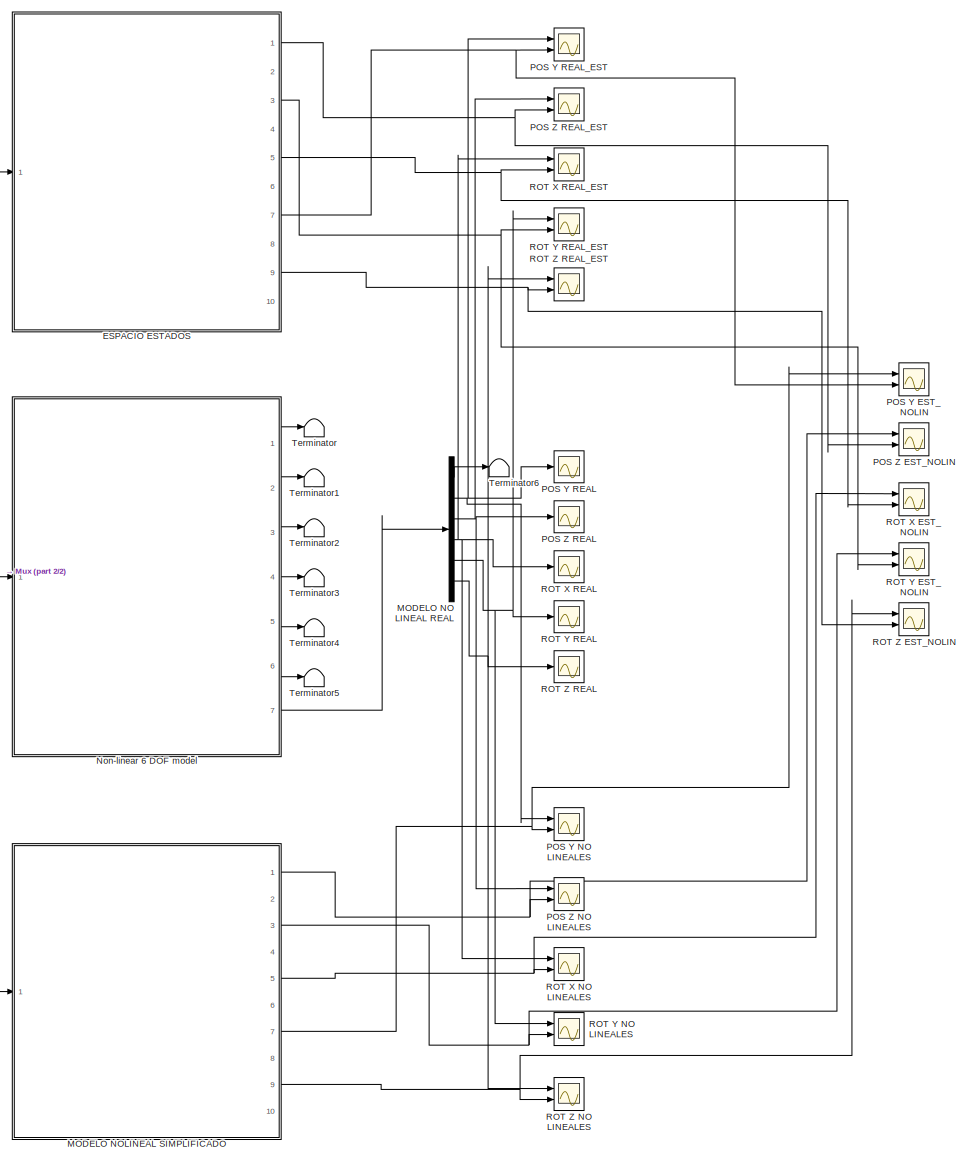
[diagram: root canvas - part 1/2, right side, full height]
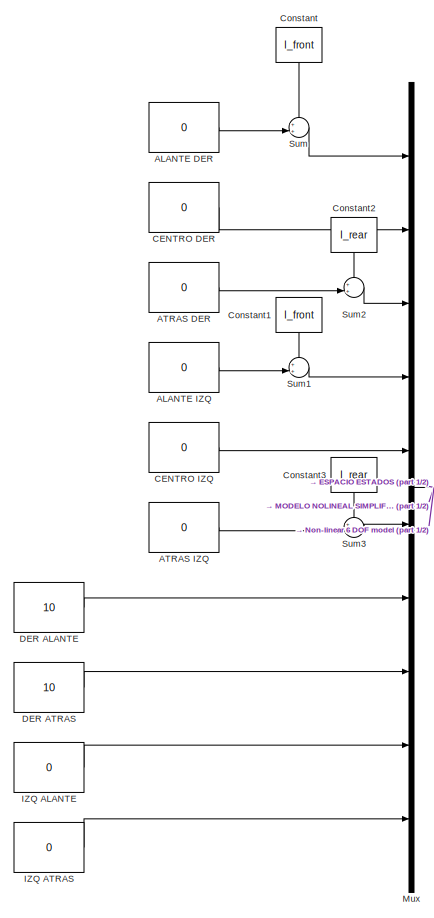
[diagram: root canvas - part 2/2, left side, full height]
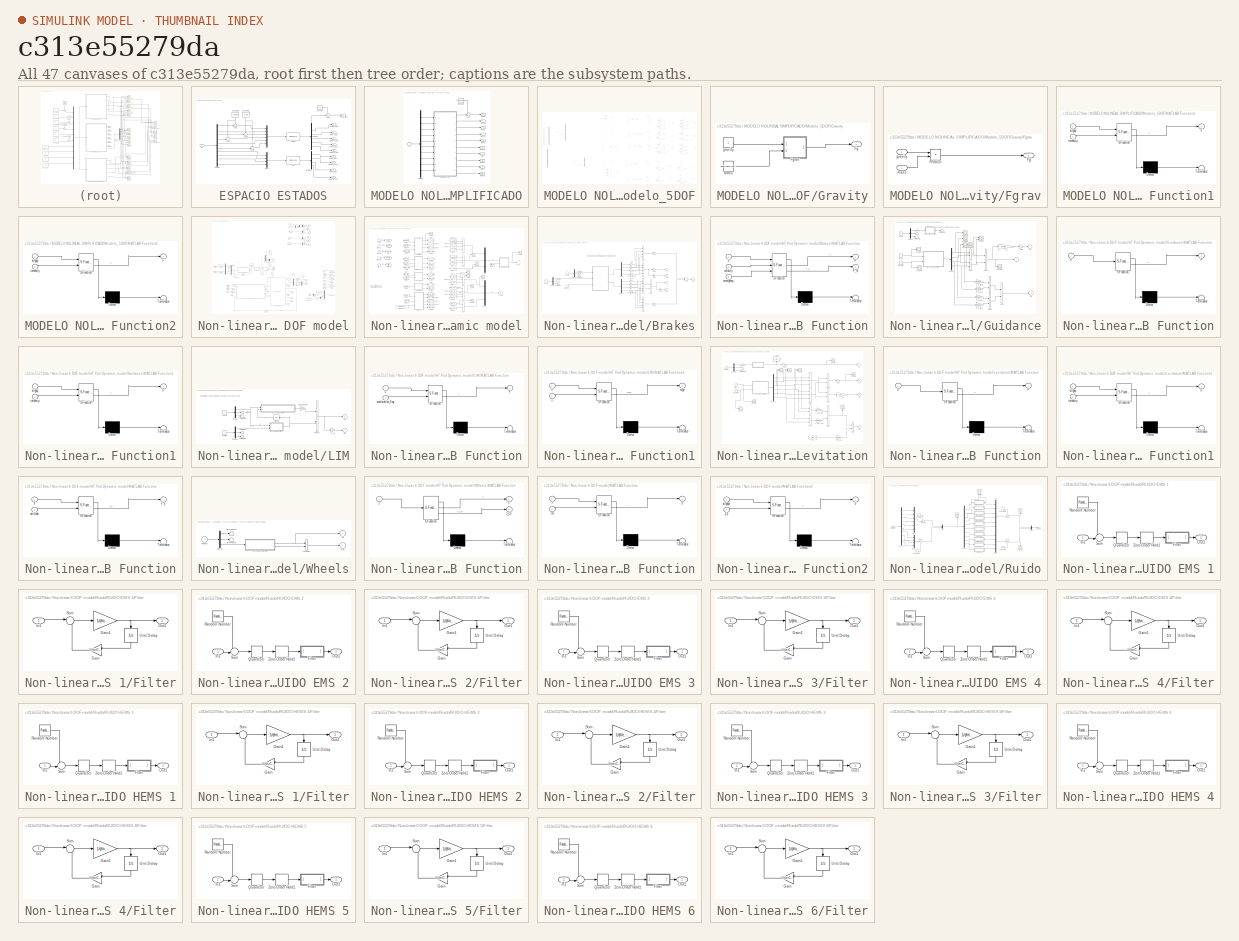
[diagram: thumbnail index - all 47 canvases of the model, root first then tree order]
MODEL slx_c313e55279da
KIND model
CONFIG AbsTol = auto
CONFIG EnableMultiTasking = off
CONFIG FixedStep = auto
CONFIG MaxStep = 1e-5
CONFIG MinStep = auto
CONFIG RelTol = 1e-6
CONFIG SampleTimeConstraint = Unconstrained
CONFIG SolverName = VariableStepAuto
CONFIG StartTime = 0.0
CONFIG StopTime = 0.1
BLOCK [Constant] ALANTE DER
  Value = 0
BLOCK [Constant] ALANTE IZQ
  Value = 0
BLOCK [Constant] ATRAS DER
  Value = 0
BLOCK [Constant] ATRAS IZQ
  Value = 0
BLOCK [Constant] CENTRO DER
  Value = 0
BLOCK [Constant] CENTRO IZQ
  Value = 0
BLOCK [Constant] Constant
  NameLocation = left
  Value = I_front
BLOCK [Constant] Constant1
  NameLocation = left
  Value = I_front
BLOCK [Constant] Constant2
  NameLocation = left
  Value = I_rear
BLOCK [Constant] Constant3
  NameLocation = left
  Value = I_rear
BLOCK [Constant] DER ALANTE
  Value = 10
BLOCK [Constant] DER ATRAS
  Value = 10
BLOCK [SubSystem] ESPACIO ESTADOS
  Ports = [1, 10]
  RequestExecContextInheritance = off
BLOCK [Constant] ESPACIO ESTADOS/Constant
  Value = z_0
BLOCK [Constant] ESPACIO ESTADOS/Constant1
  NameLocation = left
  Value = I_front
BLOCK [Constant] ESPACIO ESTADOS/Constant2
  NameLocation = left
  Value = I_rear
BLOCK [Outport] ESPACIO ESTADOS/D POSY_EST
  Port = 8
BLOCK [Outport] ESPACIO ESTADOS/D POSZ_EST
  Port = 2
BLOCK [Outport] ESPACIO ESTADOS/D ROTX_EST
  Port = 6
BLOCK [Outport] ESPACIO ESTADOS/D ROTY_EST
  Port = 4
BLOCK [Outport] ESPACIO ESTADOS/D ROTZ_EST
  Port = 10
BLOCK [Demux] ESPACIO ESTADOS/Demux
  Outputs = 10
  Ports = [1, 10]
BLOCK [Demux] ESPACIO ESTADOS/Demux1
  Outputs = 6
  Ports = [1, 6]
BLOCK [Demux] ESPACIO ESTADOS/Demux2
  Ports = [1, 4]
BLOCK [StateSpace] ESPACIO ESTADOS/EMS
  A = A_EMS
  B = B_EMS
  C = C_EMS
  D = D_EMS
  InitialCondition = [0 0 0 0]
  Ports = [1, 1]
BLOCK [StateSpace] ESPACIO ESTADOS/HEMS
  A = A_HEMS
  B = B_HEMS
  C = C_HEMS
  D = D_HEMS
  InitialCondition = [0 0 0 0 0 0]
  Ports = [1, 1]
BLOCK [Inport] ESPACIO ESTADOS/In1
BLOCK [Mux] ESPACIO ESTADOS/Mux
  DisplayOption = bar
  Inputs = 6
  Ports = [6, 1]
BLOCK [Mux] ESPACIO ESTADOS/Mux1
  DisplayOption = bar
  Ports = [4, 1]
BLOCK [Outport] ESPACIO ESTADOS/POSY_EST
  Port = 7
BLOCK [Outport] ESPACIO ESTADOS/POSZ_EST
BLOCK [Outport] ESPACIO ESTADOS/ROTX_EST
  Port = 5
BLOCK [Outport] ESPACIO ESTADOS/ROTY_EST
  Port = 3
BLOCK [Outport] ESPACIO ESTADOS/ROTZ_EST
  Port = 9
BLOCK [Sum] ESPACIO ESTADOS/Sum
  Inputs = ++|
  Ports = [2, 1]
BLOCK [Sum] ESPACIO ESTADOS/Sum1
  Inputs = -+|
  Ports = [2, 1]
BLOCK [Sum] ESPACIO ESTADOS/Sum2
  Inputs = -+|
  Ports = [2, 1]
BLOCK [Sum] ESPACIO ESTADOS/Sum3
  Inputs = -+|
  Ports = [2, 1]
BLOCK [Sum] ESPACIO ESTADOS/Sum4
  Inputs = -+|
  Ports = [2, 1]
BLOCK [Constant] IZQ ALANTE
  Value = 0
BLOCK [Constant] IZQ ATRAS
  Value = 0
BLOCK [Demux] MODELO NO LINEAL REAL
  Outputs = 6
  Ports = [1, 6]
BLOCK [SubSystem] MODELO NOLINEAL SIMPLIFICADO
  Ports = [1, 10]
  RequestExecContextInheritance = off
BLOCK [Constant] MODELO NOLINEAL SIMPLIFICADO/Constant
  Value = pod.geometry.z_LEV
BLOCK [Outport] MODELO NOLINEAL SIMPLIFICADO/D POS Y
  Port = 8
BLOCK [Outport] MODELO NOLINEAL SIMPLIFICADO/D POSZ
  Port = 2
BLOCK [Outport] MODELO NOLINEAL SIMPLIFICADO/D ROTX
  Port = 6
BLOCK [Outport] MODELO NOLINEAL SIMPLIFICADO/D ROTY
  Port = 4
BLOCK [Outport] MODELO NOLINEAL SIMPLIFICADO/D ROTZ
  Port = 10
BLOCK [Demux] MODELO NOLINEAL SIMPLIFICADO/Demux
  Outputs = 10
  Ports = [1, 10]
BLOCK [Inport] MODELO NOLINEAL SIMPLIFICADO/In1
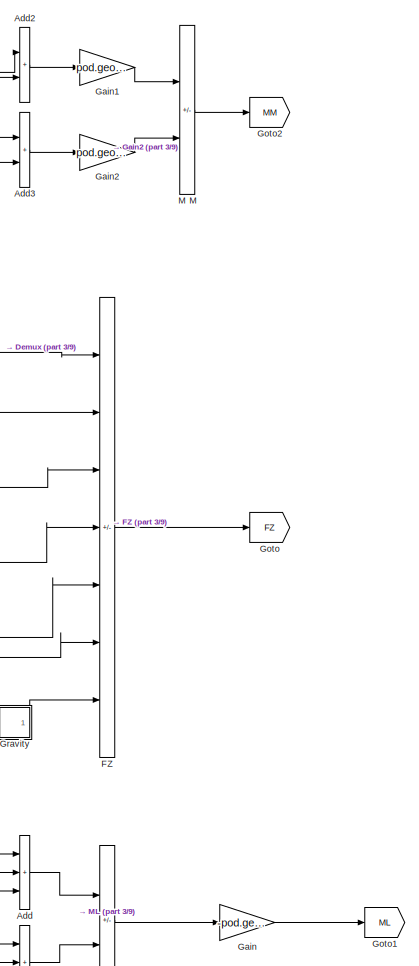
[diagram: MODELO NOLINEAL SIMPLIFICADO/Modelo_5DOF - part 1/9, top center region]
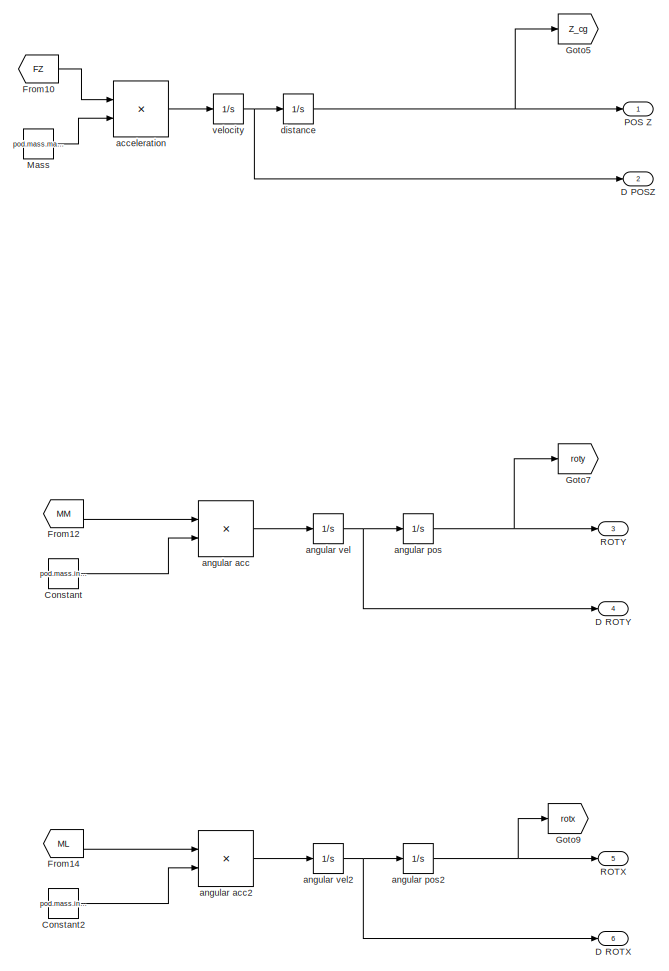
[diagram: MODELO NOLINEAL SIMPLIFICADO/Modelo_5DOF - part 2/9, top center region]
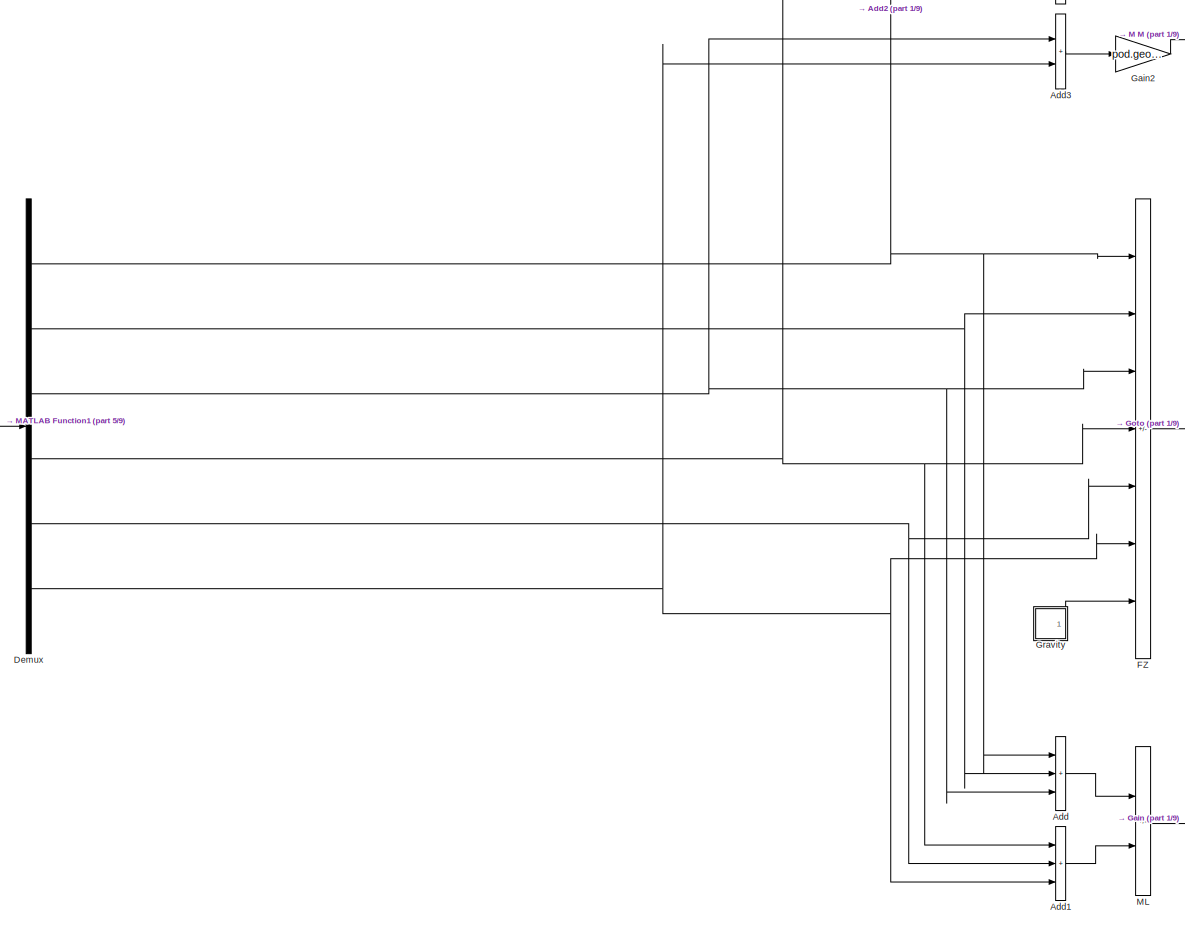
[diagram: MODELO NOLINEAL SIMPLIFICADO/Modelo_5DOF - part 3/9, top left region]
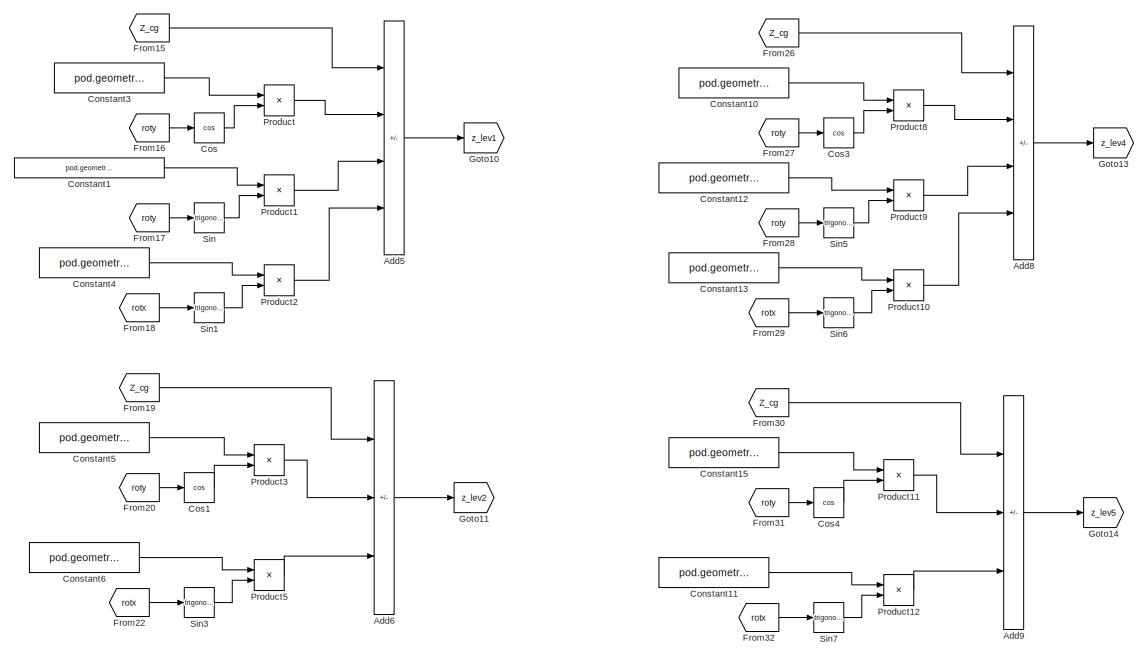
[diagram: MODELO NOLINEAL SIMPLIFICADO/Modelo_5DOF - part 4/9, top right region]
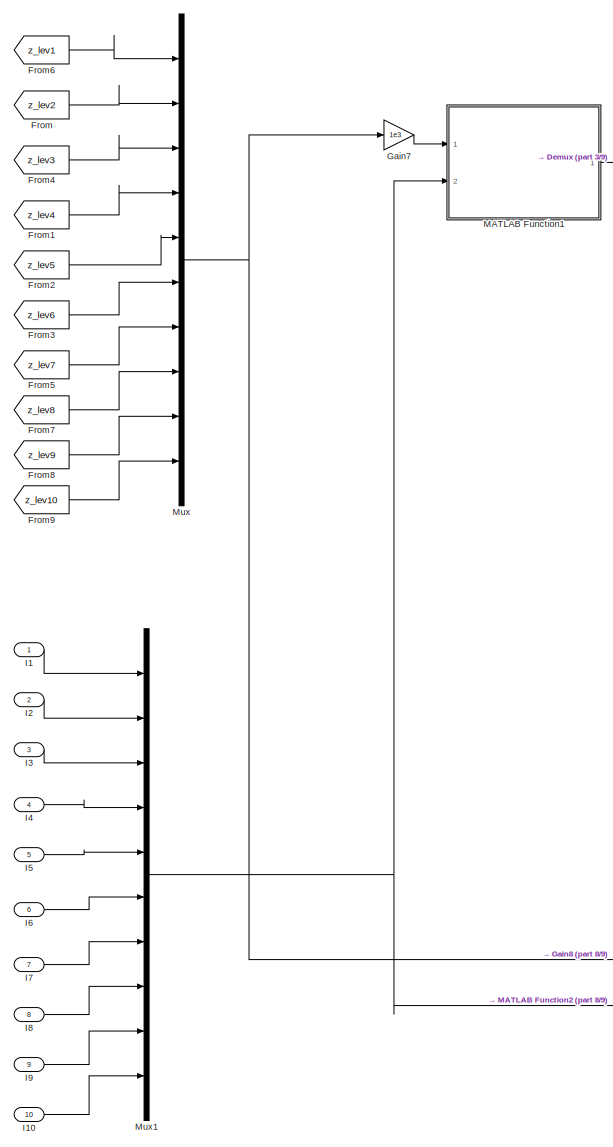
[diagram: MODELO NOLINEAL SIMPLIFICADO/Modelo_5DOF - part 5/9, middle left region]
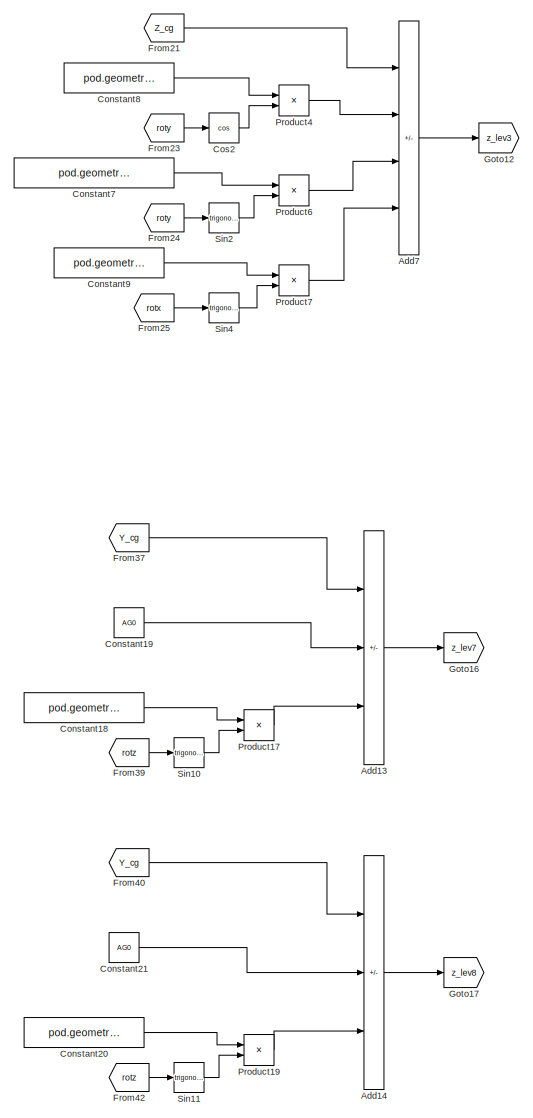
[diagram: MODELO NOLINEAL SIMPLIFICADO/Modelo_5DOF - part 6/9, bottom right region]
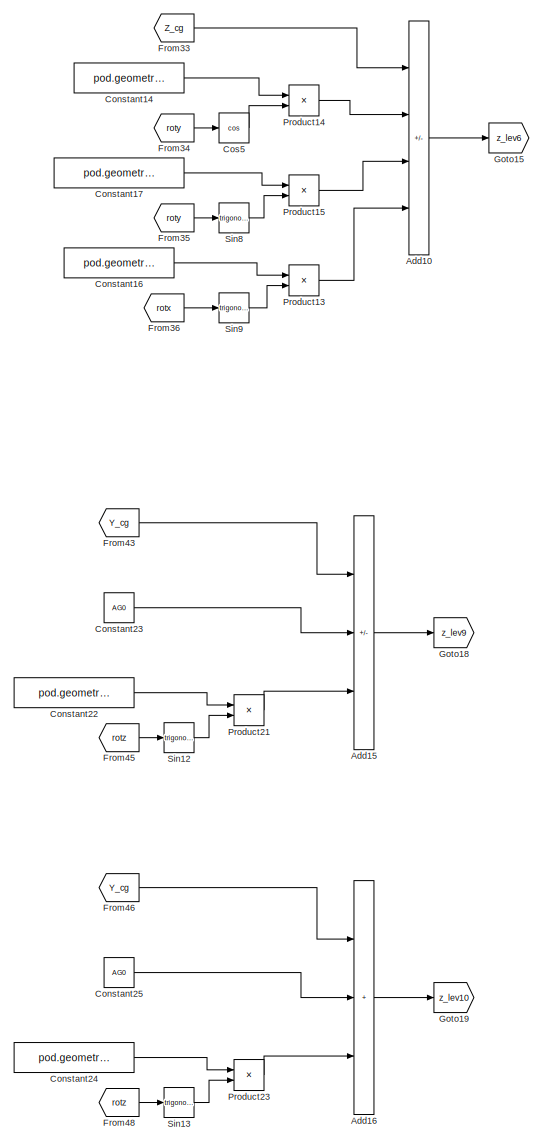
[diagram: MODELO NOLINEAL SIMPLIFICADO/Modelo_5DOF - part 7/9, bottom right region]
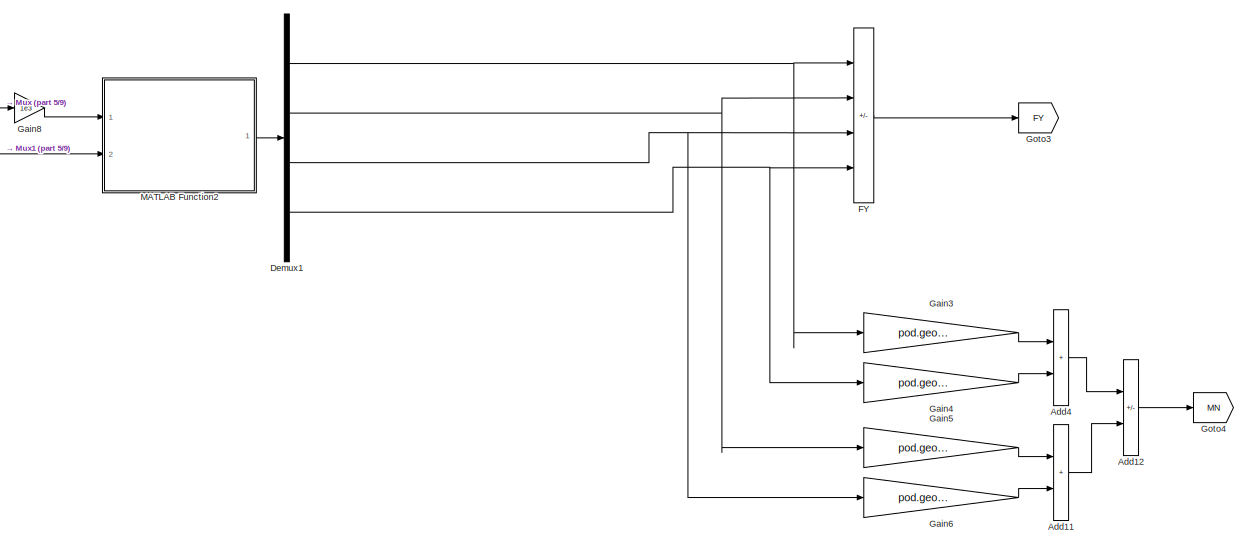
[diagram: MODELO NOLINEAL SIMPLIFICADO/Modelo_5DOF - part 8/9, bottom center region]
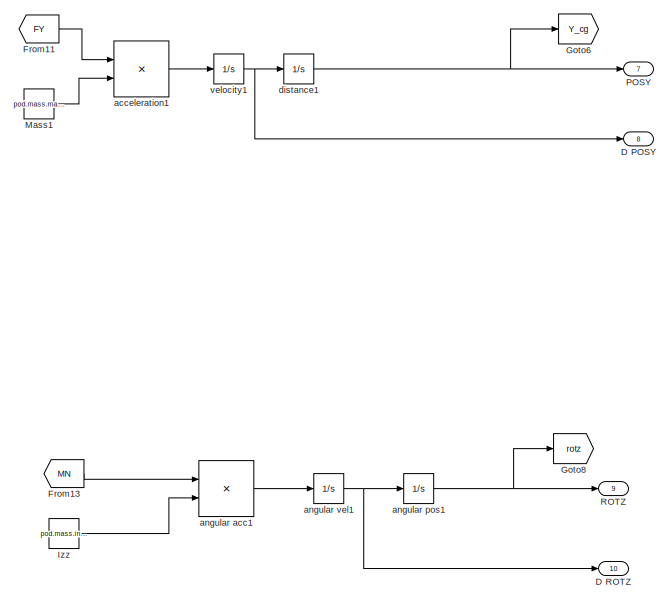
[diagram: MODELO NOLINEAL SIMPLIFICADO/Modelo_5DOF - part 9/9, bottom center region]
BLOCK [SubSystem] MODELO NOLINEAL SIMPLIFICADO/Modelo_5DOF
  Ports = [10, 10]
  RequestExecContextInheritance = off
BLOCK [Sum] MODELO NOLINEAL SIMPLIFICADO/Modelo_5DOF/Add
  IconShape = rectangular
  Inputs = +++
  Ports = [3, 1]
BLOCK [Sum] MODELO NOLINEAL SIMPLIFICADO/Modelo_5DOF/Add1
  IconShape = rectangular
  Inputs = +++
  Ports = [3, 1]
BLOCK [Sum] MODELO NOLINEAL SIMPLIFICADO/Modelo_5DOF/Add10
  IconShape = rectangular
  Inputs = +-+-
  Ports = [4, 1]
BLOCK [Sum] MODELO NOLINEAL SIMPLIFICADO/Modelo_5DOF/Add11
  IconShape = rectangular
  Ports = [2, 1]
BLOCK [Sum] MODELO NOLINEAL SIMPLIFICADO/Modelo_5DOF/Add12
  IconShape = rectangular
  Inputs = +-
  Ports = [2, 1]
BLOCK [Sum] MODELO NOLINEAL SIMPLIFICADO/Modelo_5DOF/Add13
  IconShape = rectangular
  Inputs = -++
  Ports = [3, 1]
BLOCK [Sum] MODELO NOLINEAL SIMPLIFICADO/Modelo_5DOF/Add14
  IconShape = rectangular
  Inputs = -+-
  Ports = [3, 1]
BLOCK [Sum] MODELO NOLINEAL SIMPLIFICADO/Modelo_5DOF/Add15
  IconShape = rectangular
  Inputs = ++-
  Ports = [3, 1]
BLOCK [Sum] MODELO NOLINEAL SIMPLIFICADO/Modelo_5DOF/Add16
  IconShape = rectangular
  Inputs = +++
  Ports = [3, 1]
BLOCK [Sum] MODELO NOLINEAL SIMPLIFICADO/Modelo_5DOF/Add2
  IconShape = rectangular
  Ports = [2, 1]
BLOCK [Sum] MODELO NOLINEAL SIMPLIFICADO/Modelo_5DOF/Add3
  IconShape = rectangular
  Ports = [2, 1]
BLOCK [Sum] MODELO NOLINEAL SIMPLIFICADO/Modelo_5DOF/Add4
  IconShape = rectangular
  Ports = [2, 1]
BLOCK [Sum] MODELO NOLINEAL SIMPLIFICADO/Modelo_5DOF/Add5
  IconShape = rectangular
  Inputs = +--+
  Ports = [4, 1]
BLOCK [Sum] MODELO NOLINEAL SIMPLIFICADO/Modelo_5DOF/Add6
  IconShape = rectangular
  Inputs = +-+
  Ports = [3, 1]
BLOCK [Sum] MODELO NOLINEAL SIMPLIFICADO/Modelo_5DOF/Add7
  IconShape = rectangular
  Inputs = +-++
  Ports = [4, 1]
BLOCK [Sum] MODELO NOLINEAL SIMPLIFICADO/Modelo_5DOF/Add8
  IconShape = rectangular
  Inputs = +---
  Ports = [4, 1]
BLOCK [Sum] MODELO NOLINEAL SIMPLIFICADO/Modelo_5DOF/Add9
  IconShape = rectangular
  Inputs = +--
  Ports = [3, 1]
BLOCK [Constant] MODELO NOLINEAL SIMPLIFICADO/Modelo_5DOF/Constant
  Value = pod.mass.inertia(2,2)
BLOCK [Constant] MODELO NOLINEAL SIMPLIFICADO/Modelo_5DOF/Constant1
  Value = pod.geometry.x_LEV_front
BLOCK [Constant] MODELO NOLINEAL SIMPLIFICADO/Modelo_5DOF/Constant10
  Value = pod.geometry.z_LEV
BLOCK [Constant] MODELO NOLINEAL SIMPLIFICADO/Modelo_5DOF/Constant11
  Value = pod.geometry.y_LEV
BLOCK [Constant] MODELO NOLINEAL SIMPLIFICADO/Modelo_5DOF/Constant12
  Value = pod.geometry.x_LEV_front
BLOCK [Constant] MODELO NOLINEAL SIMPLIFICADO/Modelo_5DOF/Constant13
  Value = pod.geometry.y_LEV
BLOCK [Constant] MODELO NOLINEAL SIMPLIFICADO/Modelo_5DOF/Constant14
  Value = pod.geometry.z_LEV
BLOCK [Constant] MODELO NOLINEAL SIMPLIFICADO/Modelo_5DOF/Constant15
  Value = pod.geometry.z_LEV
BLOCK [Constant] MODELO NOLINEAL SIMPLIFICADO/Modelo_5DOF/Constant16
  Value = pod.geometry.y_LEV
BLOCK [Constant] MODELO NOLINEAL SIMPLIFICADO/Modelo_5DOF/Constant17
  Value = pod.geometry.x_LEV_rear
BLOCK [Constant] MODELO NOLINEAL SIMPLIFICADO/Modelo_5DOF/Constant18
  Value = pod.geometry.x_G_front
BLOCK [Constant] MODELO NOLINEAL SIMPLIFICADO/Modelo_5DOF/Constant19
  Value = AG0
BLOCK [Constant] MODELO NOLINEAL SIMPLIFICADO/Modelo_5DOF/Constant2
  Value = pod.mass.inertia(1,1)
BLOCK [Constant] MODELO NOLINEAL SIMPLIFICADO/Modelo_5DOF/Constant20
  Value = pod.geometry.x_G_rear
BLOCK [Constant] MODELO NOLINEAL SIMPLIFICADO/Modelo_5DOF/Constant21
  Value = AG0
BLOCK [Constant] MODELO NOLINEAL SIMPLIFICADO/Modelo_5DOF/Constant22
  Value = pod.geometry.x_G_front
BLOCK [Constant] MODELO NOLINEAL SIMPLIFICADO/Modelo_5DOF/Constant23
  Value = AG0
BLOCK [Constant] MODELO NOLINEAL SIMPLIFICADO/Modelo_5DOF/Constant24
  Value = pod.geometry.x_G_rear
BLOCK [Constant] MODELO NOLINEAL SIMPLIFICADO/Modelo_5DOF/Constant25
  Value = AG0
BLOCK [Constant] MODELO NOLINEAL SIMPLIFICADO/Modelo_5DOF/Constant3
  Value = pod.geometry.z_LEV
BLOCK [Constant] MODELO NOLINEAL SIMPLIFICADO/Modelo_5DOF/Constant4
  Value = pod.geometry.y_LEV
BLOCK [Constant] MODELO NOLINEAL SIMPLIFICADO/Modelo_5DOF/Constant5
  Value = pod.geometry.z_LEV
BLOCK [Constant] MODELO NOLINEAL SIMPLIFICADO/Modelo_5DOF/Constant6
  Value = pod.geometry.y_LEV
BLOCK [Constant] MODELO NOLINEAL SIMPLIFICADO/Modelo_5DOF/Constant7
  Value = pod.geometry.x_LEV_rear
BLOCK [Constant] MODELO NOLINEAL SIMPLIFICADO/Modelo_5DOF/Constant8
  Value = pod.geometry.z_LEV
BLOCK [Constant] MODELO NOLINEAL SIMPLIFICADO/Modelo_5DOF/Constant9
  Value = pod.geometry.y_LEV
BLOCK [Trigonometry] MODELO NOLINEAL SIMPLIFICADO/Modelo_5DOF/Cos
  Operator = cos
  Ports = [1, 1]
BLOCK [Trigonometry] MODELO NOLINEAL SIMPLIFICADO/Modelo_5DOF/Cos1
  Operator = cos
  Ports = [1, 1]
BLOCK [Trigonometry] MODELO NOLINEAL SIMPLIFICADO/Modelo_5DOF/Cos2
  Operator = cos
  Ports = [1, 1]
BLOCK [Trigonometry] MODELO NOLINEAL SIMPLIFICADO/Modelo_5DOF/Cos3
  Operator = cos
  Ports = [1, 1]
BLOCK [Trigonometry] MODELO NOLINEAL SIMPLIFICADO/Modelo_5DOF/Cos4
  Operator = cos
  Ports = [1, 1]
BLOCK [Trigonometry] MODELO NOLINEAL SIMPLIFICADO/Modelo_5DOF/Cos5
  Operator = cos
  Ports = [1, 1]
BLOCK [Outport] MODELO NOLINEAL SIMPLIFICADO/Modelo_5DOF/D POSY
  Port = 8
  VectorParamsAs1DForOutWhenUnconnected = off
BLOCK [Outport] MODELO NOLINEAL SIMPLIFICADO/Modelo_5DOF/D POSZ
  Port = 2
  VectorParamsAs1DForOutWhenUnconnected = off
BLOCK [Outport] MODELO NOLINEAL SIMPLIFICADO/Modelo_5DOF/D ROTX
  Port = 6
  VectorParamsAs1DForOutWhenUnconnected = off
BLOCK [Outport] MODELO NOLINEAL SIMPLIFICADO/Modelo_5DOF/D ROTY
  Port = 4
  VectorParamsAs1DForOutWhenUnconnected = off
BLOCK [Outport] MODELO NOLINEAL SIMPLIFICADO/Modelo_5DOF/D ROTZ
  Port = 10
  VectorParamsAs1DForOutWhenUnconnected = off
BLOCK [Demux] MODELO NOLINEAL SIMPLIFICADO/Modelo_5DOF/Demux
  Outputs = 6
  Ports = [1, 6]
BLOCK [Demux] MODELO NOLINEAL SIMPLIFICADO/Modelo_5DOF/Demux1
  Ports = [1, 4]
BLOCK [Sum] MODELO NOLINEAL SIMPLIFICADO/Modelo_5DOF/FY
  IconShape = rectangular
  Inputs = ++--
  Ports = [4, 1]
BLOCK [Sum] MODELO NOLINEAL SIMPLIFICADO/Modelo_5DOF/FZ
  IconShape = rectangular
  Inputs = ------+
  Ports = [7, 1]
BLOCK [From] MODELO NOLINEAL SIMPLIFICADO/Modelo_5DOF/From
  GotoTag = z_lev2
BLOCK [From] MODELO NOLINEAL SIMPLIFICADO/Modelo_5DOF/From1
  GotoTag = z_lev4
BLOCK [From] MODELO NOLINEAL SIMPLIFICADO/Modelo_5DOF/From10
  GotoTag = FZ
BLOCK [From] MODELO NOLINEAL SIMPLIFICADO/Modelo_5DOF/From11
  GotoTag = FY
BLOCK [From] MODELO NOLINEAL SIMPLIFICADO/Modelo_5DOF/From12
  GotoTag = MM
BLOCK [From] MODELO NOLINEAL SIMPLIFICADO/Modelo_5DOF/From13
  GotoTag = MN
BLOCK [From] MODELO NOLINEAL SIMPLIFICADO/Modelo_5DOF/From14
  GotoTag = ML
BLOCK [From] MODELO NOLINEAL SIMPLIFICADO/Modelo_5DOF/From15
  GotoTag = Z_cg
BLOCK [From] MODELO NOLINEAL SIMPLIFICADO/Modelo_5DOF/From16
  GotoTag = roty
BLOCK [From] MODELO NOLINEAL SIMPLIFICADO/Modelo_5DOF/From17
  GotoTag = roty
BLOCK [From] MODELO NOLINEAL SIMPLIFICADO/Modelo_5DOF/From18
  GotoTag = rotx
BLOCK [From] MODELO NOLINEAL SIMPLIFICADO/Modelo_5DOF/From19
  GotoTag = Z_cg
BLOCK [From] MODELO NOLINEAL SIMPLIFICADO/Modelo_5DOF/From2
  GotoTag = z_lev5
BLOCK [From] MODELO NOLINEAL SIMPLIFICADO/Modelo_5DOF/From20
  GotoTag = roty
BLOCK [From] MODELO NOLINEAL SIMPLIFICADO/Modelo_5DOF/From21
  GotoTag = Z_cg
BLOCK [From] MODELO NOLINEAL SIMPLIFICADO/Modelo_5DOF/From22
  GotoTag = rotx
BLOCK [From] MODELO NOLINEAL SIMPLIFICADO/Modelo_5DOF/From23
  GotoTag = roty
BLOCK [From] MODELO NOLINEAL SIMPLIFICADO/Modelo_5DOF/From24
  GotoTag = roty
BLOCK [From] MODELO NOLINEAL SIMPLIFICADO/Modelo_5DOF/From25
  GotoTag = rotx
BLOCK [From] MODELO NOLINEAL SIMPLIFICADO/Modelo_5DOF/From26
  GotoTag = Z_cg
BLOCK [From] MODELO NOLINEAL SIMPLIFICADO/Modelo_5DOF/From27
  GotoTag = roty
BLOCK [From] MODELO NOLINEAL SIMPLIFICADO/Modelo_5DOF/From28
  GotoTag = roty
BLOCK [From] MODELO NOLINEAL SIMPLIFICADO/Modelo_5DOF/From29
  GotoTag = rotx
BLOCK [From] MODELO NOLINEAL SIMPLIFICADO/Modelo_5DOF/From3
  GotoTag = z_lev6
BLOCK [From] MODELO NOLINEAL SIMPLIFICADO/Modelo_5DOF/From30
  GotoTag = Z_cg
BLOCK [From] MODELO NOLINEAL SIMPLIFICADO/Modelo_5DOF/From31
  GotoTag = roty
BLOCK [From] MODELO NOLINEAL SIMPLIFICADO/Modelo_5DOF/From32
  GotoTag = rotx
BLOCK [From] MODELO NOLINEAL SIMPLIFICADO/Modelo_5DOF/From33
  GotoTag = Z_cg
BLOCK [From] MODELO NOLINEAL SIMPLIFICADO/Modelo_5DOF/From34
  GotoTag = roty
BLOCK [From] MODELO NOLINEAL SIMPLIFICADO/Modelo_5DOF/From35
  GotoTag = roty
BLOCK [From] MODELO NOLINEAL SIMPLIFICADO/Modelo_5DOF/From36
  GotoTag = rotx
BLOCK [From] MODELO NOLINEAL SIMPLIFICADO/Modelo_5DOF/From37
  GotoTag = Y_cg
BLOCK [From] MODELO NOLINEAL SIMPLIFICADO/Modelo_5DOF/From39
  GotoTag = rotz
BLOCK [From] MODELO NOLINEAL SIMPLIFICADO/Modelo_5DOF/From4
  GotoTag = z_lev3
BLOCK [From] MODELO NOLINEAL SIMPLIFICADO/Modelo_5DOF/From40
  GotoTag = Y_cg
BLOCK [From] MODELO NOLINEAL SIMPLIFICADO/Modelo_5DOF/From42
  GotoTag = rotz
BLOCK [From] MODELO NOLINEAL SIMPLIFICADO/Modelo_5DOF/From43
  GotoTag = Y_cg
BLOCK [From] MODELO NOLINEAL SIMPLIFICADO/Modelo_5DOF/From45
  GotoTag = rotz
BLOCK [From] MODELO NOLINEAL SIMPLIFICADO/Modelo_5DOF/From46
  GotoTag = Y_cg
BLOCK [From] MODELO NOLINEAL SIMPLIFICADO/Modelo_5DOF/From48
  GotoTag = rotz
BLOCK [From] MODELO NOLINEAL SIMPLIFICADO/Modelo_5DOF/From5
  GotoTag = z_lev7
BLOCK [From] MODELO NOLINEAL SIMPLIFICADO/Modelo_5DOF/From6
  GotoTag = z_lev1
BLOCK [From] MODELO NOLINEAL SIMPLIFICADO/Modelo_5DOF/From7
  GotoTag = z_lev8
BLOCK [From] MODELO NOLINEAL SIMPLIFICADO/Modelo_5DOF/From8
  GotoTag = z_lev9
BLOCK [From] MODELO NOLINEAL SIMPLIFICADO/Modelo_5DOF/From9
  GotoTag = z_lev10
BLOCK [Gain] MODELO NOLINEAL SIMPLIFICADO/Modelo_5DOF/Gain
  Gain = -pod.geometry.y_LEV
BLOCK [Gain] MODELO NOLINEAL SIMPLIFICADO/Modelo_5DOF/Gain1
  Gain = pod.geometry.x_LEV_front
BLOCK [Gain] MODELO NOLINEAL SIMPLIFICADO/Modelo_5DOF/Gain2
  Gain = pod.geometry.x_LEV_rear
BLOCK [Gain] MODELO NOLINEAL SIMPLIFICADO/Modelo_5DOF/Gain3
  Gain = pod.geometry.x_G_front
BLOCK [Gain] MODELO NOLINEAL SIMPLIFICADO/Modelo_5DOF/Gain4
  Gain = pod.geometry.x_G_rear
BLOCK [Gain] MODELO NOLINEAL SIMPLIFICADO/Modelo_5DOF/Gain5
  Gain = pod.geometry.x_G_rear
BLOCK [Gain] MODELO NOLINEAL SIMPLIFICADO/Modelo_5DOF/Gain6
  Gain = pod.geometry.x_G_front
BLOCK [Gain] MODELO NOLINEAL SIMPLIFICADO/Modelo_5DOF/Gain7
  Gain = 1e3
BLOCK [Gain] MODELO NOLINEAL SIMPLIFICADO/Modelo_5DOF/Gain8
  Gain = 1e3
BLOCK [Goto] MODELO NOLINEAL SIMPLIFICADO/Modelo_5DOF/Goto
  GotoTag = FZ
BLOCK [Goto] MODELO NOLINEAL SIMPLIFICADO/Modelo_5DOF/Goto1
  GotoTag = ML
BLOCK [Goto] MODELO NOLINEAL SIMPLIFICADO/Modelo_5DOF/Goto10
  GotoTag = z_lev1
BLOCK [Goto] MODELO NOLINEAL SIMPLIFICADO/Modelo_5DOF/Goto11
  GotoTag = z_lev2
BLOCK [Goto] MODELO NOLINEAL SIMPLIFICADO/Modelo_5DOF/Goto12
  GotoTag = z_lev3
BLOCK [Goto] MODELO NOLINEAL SIMPLIFICADO/Modelo_5DOF/Goto13
  GotoTag = z_lev4
BLOCK [Goto] MODELO NOLINEAL SIMPLIFICADO/Modelo_5DOF/Goto14
  GotoTag = z_lev5
BLOCK [Goto] MODELO NOLINEAL SIMPLIFICADO/Modelo_5DOF/Goto15
  GotoTag = z_lev6
BLOCK [Goto] MODELO NOLINEAL SIMPLIFICADO/Modelo_5DOF/Goto16
  GotoTag = z_lev7
BLOCK [Goto] MODELO NOLINEAL SIMPLIFICADO/Modelo_5DOF/Goto17
  GotoTag = z_lev8
BLOCK [Goto] MODELO NOLINEAL SIMPLIFICADO/Modelo_5DOF/Goto18
  GotoTag = z_lev9
BLOCK [Goto] MODELO NOLINEAL SIMPLIFICADO/Modelo_5DOF/Goto19
  GotoTag = z_lev10
BLOCK [Goto] MODELO NOLINEAL SIMPLIFICADO/Modelo_5DOF/Goto2
  GotoTag = MM
BLOCK [Goto] MODELO NOLINEAL SIMPLIFICADO/Modelo_5DOF/Goto3
  GotoTag = FY
BLOCK [Goto] MODELO NOLINEAL SIMPLIFICADO/Modelo_5DOF/Goto4
  GotoTag = MN
BLOCK [Goto] MODELO NOLINEAL SIMPLIFICADO/Modelo_5DOF/Goto5
  GotoTag = Z_cg
BLOCK [Goto] MODELO NOLINEAL SIMPLIFICADO/Modelo_5DOF/Goto6
  GotoTag = Y_cg
BLOCK [Goto] MODELO NOLINEAL SIMPLIFICADO/Modelo_5DOF/Goto7
  GotoTag = roty
BLOCK [Goto] MODELO NOLINEAL SIMPLIFICADO/Modelo_5DOF/Goto8
  GotoTag = rotz
BLOCK [Goto] MODELO NOLINEAL SIMPLIFICADO/Modelo_5DOF/Goto9
  GotoTag = rotx
BLOCK [SubSystem] MODELO NOLINEAL SIMPLIFICADO/Modelo_5DOF/Gravity
  Ports = [0, 1]
  RequestExecContextInheritance = off
BLOCK [Outport] MODELO NOLINEAL SIMPLIFICADO/Modelo_5DOF/Gravity/Fg
BLOCK [SubSystem] MODELO NOLINEAL SIMPLIFICADO/Modelo_5DOF/Gravity/Fgrav
  Ports = [2, 1]
  RequestExecContextInheritance = off
BLOCK [Outport] MODELO NOLINEAL SIMPLIFICADO/Modelo_5DOF/Gravity/Fgrav/Fg
  VectorParamsAs1DForOutWhenUnconnected = off
BLOCK [Product] MODELO NOLINEAL SIMPLIFICADO/Modelo_5DOF/Gravity/Fgrav/Product
  Ports = [2, 1]
BLOCK [Inport] MODELO NOLINEAL SIMPLIFICADO/Modelo_5DOF/Gravity/Fgrav/gravity
BLOCK [Inport] MODELO NOLINEAL SIMPLIFICADO/Modelo_5DOF/Gravity/Fgrav/mass
  Port = 2
BLOCK [Constant] MODELO NOLINEAL SIMPLIFICADO/Modelo_5DOF/Gravity/Mass
  Value = pod.mass.mass
BLOCK [Constant] MODELO NOLINEAL SIMPLIFICADO/Modelo_5DOF/Gravity/gravity
  Value = g
BLOCK [Inport] MODELO NOLINEAL SIMPLIFICADO/Modelo_5DOF/I1
BLOCK [Inport] MODELO NOLINEAL SIMPLIFICADO/Modelo_5DOF/I10
  Port = 10
BLOCK [Inport] MODELO NOLINEAL SIMPLIFICADO/Modelo_5DOF/I2
  Port = 2
BLOCK [Inport] MODELO NOLINEAL SIMPLIFICADO/Modelo_5DOF/I3
  Port = 3
BLOCK [Inport] MODELO NOLINEAL SIMPLIFICADO/Modelo_5DOF/I4
  Port = 4
BLOCK [Inport] MODELO NOLINEAL SIMPLIFICADO/Modelo_5DOF/I5
  Port = 5
BLOCK [Inport] MODELO NOLINEAL SIMPLIFICADO/Modelo_5DOF/I6
  Port = 6
BLOCK [Inport] MODELO NOLINEAL SIMPLIFICADO/Modelo_5DOF/I7
  Port = 7
BLOCK [Inport] MODELO NOLINEAL SIMPLIFICADO/Modelo_5DOF/I8
  Port = 8
BLOCK [Inport] MODELO NOLINEAL SIMPLIFICADO/Modelo_5DOF/I9
  Port = 9
BLOCK [Constant] MODELO NOLINEAL SIMPLIFICADO/Modelo_5DOF/Izz
  Value = pod.mass.inertia(3,3)
BLOCK [Sum] MODELO NOLINEAL SIMPLIFICADO/Modelo_5DOF/M M
  IconShape = rectangular
  Inputs = +-
  Ports = [2, 1]
BLOCK [SubSystem] MODELO NOLINEAL SIMPLIFICADO/Modelo_5DOF/MATLAB Function1
  ErrorFcn = Stateflow.Translate.translate
  PermitHierarchicalResolution = ExplicitOnly
  Ports = [2, 1]
  RequestExecContextInheritance = off
  SFBlockType = MATLAB Function
  TreatAsAtomicUnit = on
BLOCK [Demux] MODELO NOLINEAL SIMPLIFICADO/Modelo_5DOF/MATLAB Function1/ Demux 
  Outputs = 1
  Ports = [1, 1]
BLOCK [S-Function] MODELO NOLINEAL SIMPLIFICADO/Modelo_5DOF/MATLAB Function1/ SFunction 
  EnableBusSupport = on
  FunctionName = sf_sfun
  Parameters = pod
  PortCounts = [2 2]
  Ports = [2, 2]
  SFcnIsStateOwnerBlock = off
  SFunctionDeploymentMode = off
  Tag = Stateflow S-Function 1
BLOCK [Terminator] MODELO NOLINEAL SIMPLIFICADO/Modelo_5DOF/MATLAB Function1/ Terminator 
BLOCK [Outport] MODELO NOLINEAL SIMPLIFICADO/Modelo_5DOF/MATLAB Function1/F
BLOCK [Inport] MODELO NOLINEAL SIMPLIFICADO/Modelo_5DOF/MATLAB Function1/airgap
BLOCK [Inport] MODELO NOLINEAL SIMPLIFICADO/Modelo_5DOF/MATLAB Function1/intensity
  Port = 2
BLOCK [SubSystem] MODELO NOLINEAL SIMPLIFICADO/Modelo_5DOF/MATLAB Function2
  ErrorFcn = Stateflow.Translate.translate
  PermitHierarchicalResolution = ExplicitOnly
  Ports = [2, 1]
  RequestExecContextInheritance = off
  SFBlockType = MATLAB Function
  TreatAsAtomicUnit = on
BLOCK [Demux] MODELO NOLINEAL SIMPLIFICADO/Modelo_5DOF/MATLAB Function2/ Demux 
  Outputs = 1
  Ports = [1, 1]
BLOCK [S-Function] MODELO NOLINEAL SIMPLIFICADO/Modelo_5DOF/MATLAB Function2/ SFunction 
  EnableBusSupport = on
  FunctionName = sf_sfun
  Parameters = pod
  PortCounts = [2 2]
  Ports = [2, 2]
  SFcnIsStateOwnerBlock = off
  SFunctionDeploymentMode = off
  Tag = Stateflow S-Function 2
BLOCK [Terminator] MODELO NOLINEAL SIMPLIFICADO/Modelo_5DOF/MATLAB Function2/ Terminator 
BLOCK [Outport] MODELO NOLINEAL SIMPLIFICADO/Modelo_5DOF/MATLAB Function2/F
BLOCK [Inport] MODELO NOLINEAL SIMPLIFICADO/Modelo_5DOF/MATLAB Function2/airgap
BLOCK [Inport] MODELO NOLINEAL SIMPLIFICADO/Modelo_5DOF/MATLAB Function2/intensity
  Port = 2
BLOCK [Sum] MODELO NOLINEAL SIMPLIFICADO/Modelo_5DOF/ML
  IconShape = rectangular
  Inputs = +-
  Ports = [2, 1]
BLOCK [Constant] MODELO NOLINEAL SIMPLIFICADO/Modelo_5DOF/Mass
  Value = pod.mass.mass
BLOCK [Constant] MODELO NOLINEAL SIMPLIFICADO/Modelo_5DOF/Mass1
  Value = pod.mass.mass
BLOCK [Mux] MODELO NOLINEAL SIMPLIFICADO/Modelo_5DOF/Mux
  DisplayOption = bar
  Inputs = 10
  Ports = [10, 1]
BLOCK [Mux] MODELO NOLINEAL SIMPLIFICADO/Modelo_5DOF/Mux1
  DisplayOption = bar
  Inputs = 10
  Ports = [10, 1]
BLOCK [Outport] MODELO NOLINEAL SIMPLIFICADO/Modelo_5DOF/POS Z
  VectorParamsAs1DForOutWhenUnconnected = off
BLOCK [Outport] MODELO NOLINEAL SIMPLIFICADO/Modelo_5DOF/POSY
  Port = 7
  VectorParamsAs1DForOutWhenUnconnected = off
BLOCK [Product] MODELO NOLINEAL SIMPLIFICADO/Modelo_5DOF/Product
  Ports = [2, 1]
BLOCK [Product] MODELO NOLINEAL SIMPLIFICADO/Modelo_5DOF/Product1
  Ports = [2, 1]
BLOCK [Product] MODELO NOLINEAL SIMPLIFICADO/Modelo_5DOF/Product10
  Ports = [2, 1]
BLOCK [Product] MODELO NOLINEAL SIMPLIFICADO/Modelo_5DOF/Product11
  Ports = [2, 1]
BLOCK [Product] MODELO NOLINEAL SIMPLIFICADO/Modelo_5DOF/Product12
  Ports = [2, 1]
BLOCK [Product] MODELO NOLINEAL SIMPLIFICADO/Modelo_5DOF/Product13
  Ports = [2, 1]
BLOCK [Product] MODELO NOLINEAL SIMPLIFICADO/Modelo_5DOF/Product14
  Ports = [2, 1]
BLOCK [Product] MODELO NOLINEAL SIMPLIFICADO/Modelo_5DOF/Product15
  Ports = [2, 1]
BLOCK [Product] MODELO NOLINEAL SIMPLIFICADO/Modelo_5DOF/Product17
  Ports = [2, 1]
BLOCK [Product] MODELO NOLINEAL SIMPLIFICADO/Modelo_5DOF/Product19
  Ports = [2, 1]
BLOCK [Product] MODELO NOLINEAL SIMPLIFICADO/Modelo_5DOF/Product2
  Ports = [2, 1]
BLOCK [Product] MODELO NOLINEAL SIMPLIFICADO/Modelo_5DOF/Product21
  Ports = [2, 1]
BLOCK [Product] MODELO NOLINEAL SIMPLIFICADO/Modelo_5DOF/Product23
  Ports = [2, 1]
BLOCK [Product] MODELO NOLINEAL SIMPLIFICADO/Modelo_5DOF/Product3
  Ports = [2, 1]
BLOCK [Product] MODELO NOLINEAL SIMPLIFICADO/Modelo_5DOF/Product4
  Ports = [2, 1]
BLOCK [Product] MODELO NOLINEAL SIMPLIFICADO/Modelo_5DOF/Product5
  Ports = [2, 1]
BLOCK [Product] MODELO NOLINEAL SIMPLIFICADO/Modelo_5DOF/Product6
  Ports = [2, 1]
BLOCK [Product] MODELO NOLINEAL SIMPLIFICADO/Modelo_5DOF/Product7
  Ports = [2, 1]
BLOCK [Product] MODELO NOLINEAL SIMPLIFICADO/Modelo_5DOF/Product8
  Ports = [2, 1]
BLOCK [Product] MODELO NOLINEAL SIMPLIFICADO/Modelo_5DOF/Product9
  Ports = [2, 1]
BLOCK [Outport] MODELO NOLINEAL SIMPLIFICADO/Modelo_5DOF/ROTX
  Port = 5
  VectorParamsAs1DForOutWhenUnconnected = off
BLOCK [Outport] MODELO NOLINEAL SIMPLIFICADO/Modelo_5DOF/ROTY
  Port = 3
  VectorParamsAs1DForOutWhenUnconnected = off
BLOCK [Outport] MODELO NOLINEAL SIMPLIFICADO/Modelo_5DOF/ROTZ
  Port = 9
  VectorParamsAs1DForOutWhenUnconnected = off
BLOCK [Trigonometry] MODELO NOLINEAL SIMPLIFICADO/Modelo_5DOF/Sin
  Ports = [1, 1]
BLOCK [Trigonometry] MODELO NOLINEAL SIMPLIFICADO/Modelo_5DOF/Sin1
  Ports = [1, 1]
BLOCK [Trigonometry] MODELO NOLINEAL SIMPLIFICADO/Modelo_5DOF/Sin10
  Ports = [1, 1]
BLOCK [Trigonometry] MODELO NOLINEAL SIMPLIFICADO/Modelo_5DOF/Sin11
  Ports = [1, 1]
BLOCK [Trigonometry] MODELO NOLINEAL SIMPLIFICADO/Modelo_5DOF/Sin12
  Ports = [1, 1]
BLOCK [Trigonometry] MODELO NOLINEAL SIMPLIFICADO/Modelo_5DOF/Sin13
  Ports = [1, 1]
BLOCK [Trigonometry] MODELO NOLINEAL SIMPLIFICADO/Modelo_5DOF/Sin2
  Ports = [1, 1]
BLOCK [Trigonometry] MODELO NOLINEAL SIMPLIFICADO/Modelo_5DOF/Sin3
  Ports = [1, 1]
BLOCK [Trigonometry] MODELO NOLINEAL SIMPLIFICADO/Modelo_5DOF/Sin4
  Ports = [1, 1]
BLOCK [Trigonometry] MODELO NOLINEAL SIMPLIFICADO/Modelo_5DOF/Sin5
  Ports = [1, 1]
BLOCK [Trigonometry] MODELO NOLINEAL SIMPLIFICADO/Modelo_5DOF/Sin6
  Ports = [1, 1]
BLOCK [Trigonometry] MODELO NOLINEAL SIMPLIFICADO/Modelo_5DOF/Sin7
  Ports = [1, 1]
BLOCK [Trigonometry] MODELO NOLINEAL SIMPLIFICADO/Modelo_5DOF/Sin8
  Ports = [1, 1]
BLOCK [Trigonometry] MODELO NOLINEAL SIMPLIFICADO/Modelo_5DOF/Sin9
  Ports = [1, 1]
BLOCK [Product] MODELO NOLINEAL SIMPLIFICADO/Modelo_5DOF/acceleration
  Inputs = */
  Ports = [2, 1]
BLOCK [Product] MODELO NOLINEAL SIMPLIFICADO/Modelo_5DOF/acceleration1
  Inputs = */
  Ports = [2, 1]
BLOCK [Product] MODELO NOLINEAL SIMPLIFICADO/Modelo_5DOF/angular acc
  Inputs = */
  Ports = [2, 1]
BLOCK [Product] MODELO NOLINEAL SIMPLIFICADO/Modelo_5DOF/angular acc1
  Inputs = */
  Ports = [2, 1]
BLOCK [Product] MODELO NOLINEAL SIMPLIFICADO/Modelo_5DOF/angular acc2
  Inputs = */
  Ports = [2, 1]
BLOCK [Integrator] MODELO NOLINEAL SIMPLIFICADO/Modelo_5DOF/angular pos
  InitialCondition = ROTY_0
  Ports = [1, 1]
BLOCK [Integrator] MODELO NOLINEAL SIMPLIFICADO/Modelo_5DOF/angular pos1
  InitialCondition = ROTZ_0
  Ports = [1, 1]
BLOCK [Integrator] MODELO NOLINEAL SIMPLIFICADO/Modelo_5DOF/angular pos2
  InitialCondition = ROTX_0
  Ports = [1, 1]
BLOCK [Integrator] MODELO NOLINEAL SIMPLIFICADO/Modelo_5DOF/angular vel
  Ports = [1, 1]
BLOCK [Integrator] MODELO NOLINEAL SIMPLIFICADO/Modelo_5DOF/angular vel1
  Ports = [1, 1]
BLOCK [Integrator] MODELO NOLINEAL SIMPLIFICADO/Modelo_5DOF/angular vel2
  Ports = [1, 1]
BLOCK [Integrator] MODELO NOLINEAL SIMPLIFICADO/Modelo_5DOF/distance
  InitialCondition = z_ini
  Ports = [1, 1]
BLOCK [Integrator] MODELO NOLINEAL SIMPLIFICADO/Modelo_5DOF/distance1
  InitialCondition = y_ini
  Ports = [1, 1]
BLOCK [Integrator] MODELO NOLINEAL SIMPLIFICADO/Modelo_5DOF/velocity
  Ports = [1, 1]
BLOCK [Integrator] MODELO NOLINEAL SIMPLIFICADO/Modelo_5DOF/velocity1
  Ports = [1, 1]
BLOCK [Outport] MODELO NOLINEAL SIMPLIFICADO/POS Y
  Port = 7
BLOCK [Outport] MODELO NOLINEAL SIMPLIFICADO/POS Z
BLOCK [Outport] MODELO NOLINEAL SIMPLIFICADO/ROTX
  Port = 5
BLOCK [Outport] MODELO NOLINEAL SIMPLIFICADO/ROTY
  Port = 3
BLOCK [Outport] MODELO NOLINEAL SIMPLIFICADO/ROTZ
  Port = 9
BLOCK [Sum] MODELO NOLINEAL SIMPLIFICADO/Sum
  Inputs = -+|
  Ports = [2, 1]
BLOCK [Mux] Mux
  DisplayOption = bar
  Inputs = 10
  Ports = [10, 1]
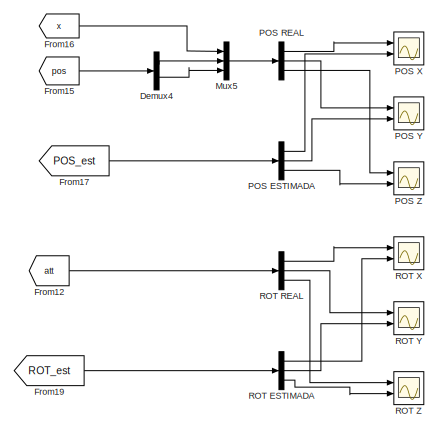
[diagram: Non-linear 6 DOF model - part 1/5, top right region]
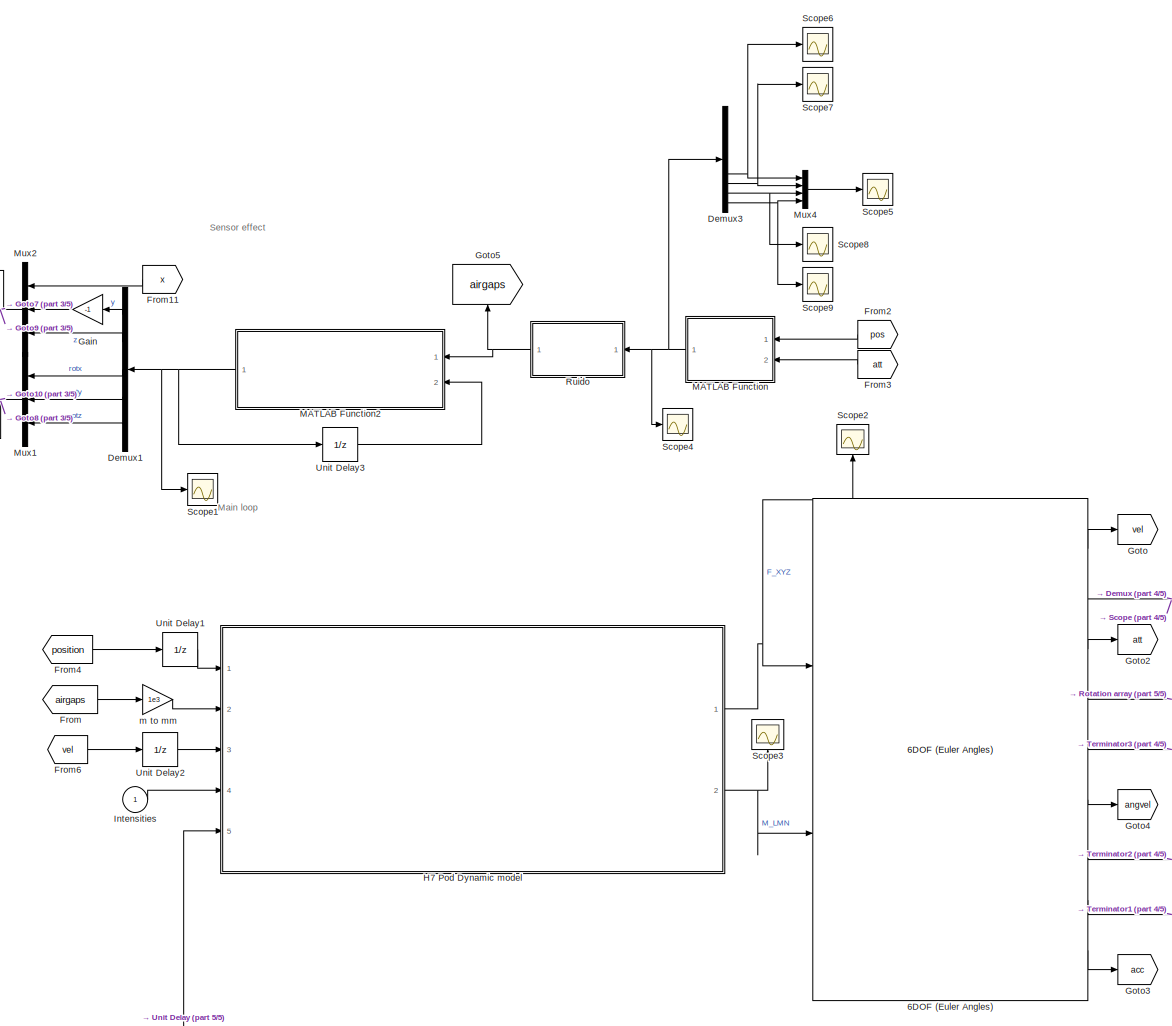
[diagram: Non-linear 6 DOF model - part 2/5, central region]
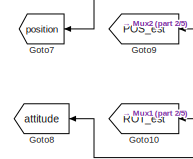
[diagram: Non-linear 6 DOF model - part 3/5, middle left region]
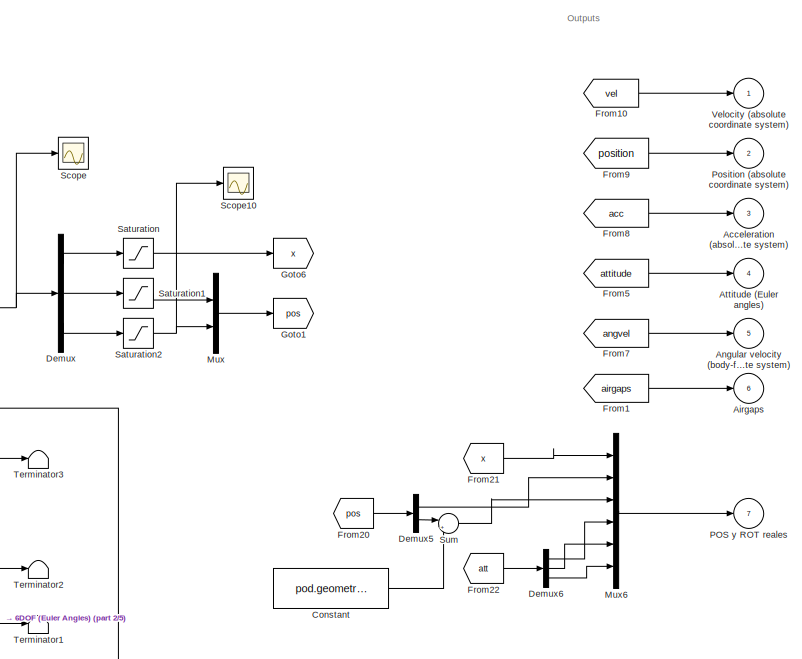
[diagram: Non-linear 6 DOF model - part 4/5, bottom right region]
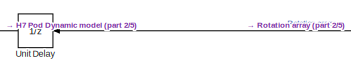
[diagram: Non-linear 6 DOF model - part 5/5, bottom center region]
BLOCK [SubSystem] Non-linear 6 DOF model
  AncestorBlock = libH7_6DOF/Non-linear 6 DOF model
  Ports = [1, 7]
  RequestExecContextInheritance = off
BLOCK [Scope] Non-linear 6 DOF model/ ROT X
  Floating = off
  NumInputPorts = 2
  Ports = [2]
  ScopeSpecificationString = Simulink.scopes.TimeScopeBlockCfg('CurrentConfiguration', extmgr.ConfigurationSet(extmgr.Configuration('Core','General UI',true),extmgr.Configuration('Core','Source UI',true),extmgr.Configuration('Sources','WiredSimulink',true,'DataLoggingVariableName','ScopeData4'),extmgr.Configuration('Visuals','Time Domain',true,'SerializedDisplays',{struct('MinYLimReal','-1.00000','MaxYLimReal','1.00000','YLab...<+1484ch>
BLOCK [Scope] Non-linear 6 DOF model/ ROT Y
  Floating = off
  NumInputPorts = 2
  Ports = [2]
  ScopeSpecificationString = Simulink.scopes.TimeScopeBlockCfg('CurrentConfiguration', extmgr.ConfigurationSet(extmgr.Configuration('Core','General UI',true),extmgr.Configuration('Core','Source UI',true),extmgr.Configuration('Sources','WiredSimulink',true,'DataLoggingVariableName','ScopeData5'),extmgr.Configuration('Visuals','Time Domain',true,'SerializedDisplays',{struct('MinYLimReal','-1.00000','MaxYLimReal','1.00000','YLab...<+1484ch>
BLOCK [Scope] Non-linear 6 DOF model/ ROT Z
  Floating = off
  NumInputPorts = 2
  Ports = [2]
  ScopeSpecificationString = Simulink.scopes.TimeScopeBlockCfg('CurrentConfiguration', extmgr.ConfigurationSet(extmgr.Configuration('Core','General UI',true),extmgr.Configuration('Core','Source UI',true),extmgr.Configuration('Sources','WiredSimulink',true,'DataLoggingVariableName','ScopeData6'),extmgr.Configuration('Visuals','Time Domain',true,'SerializedDisplays',{struct('MinYLimReal','-1.00000','MaxYLimReal','1.00000','YLab...<+1484ch>
BLOCK [Reference] Non-linear 6 DOF model/6DOF (Euler Angles)  REF=shared6dof/6DOF (Euler Angles)
  Ports = [2, 9]
  SourceBlock = shared6dof/6DOF (Euler Angles)
  SourceProductBaseCode = AE,PW,DR,MT,UV,VE
  SourceType = 6DOF EoM (Body Axis)
BLOCK [Outport] Non-linear 6 DOF model/Acceleration (absolute coordinate system)
  Port = 3
BLOCK [Outport] Non-linear 6 DOF model/Airgaps
  Port = 6
BLOCK [Outport] Non-linear 6 DOF model/Angular velocity (body-fixed coordinate system)
  Port = 5
BLOCK [Outport] Non-linear 6 DOF model/Attitude (Euler angles)
  Port = 4
BLOCK [Constant] Non-linear 6 DOF model/Constant
  Value = pod.geometry.z_LEV
BLOCK [Demux] Non-linear 6 DOF model/Demux
  Outputs = 3
  Ports = [1, 3]
BLOCK [Demux] Non-linear 6 DOF model/Demux1
  NameLocation = top
  Outputs = 5
  Ports = [1, 5]
BLOCK [Demux] Non-linear 6 DOF model/Demux3
  Outputs = 10
  Ports = [1, 10]
BLOCK [Demux] Non-linear 6 DOF model/Demux4
  Outputs = 2
  Ports = [1, 2]
BLOCK [Demux] Non-linear 6 DOF model/Demux5
  Outputs = 2
  Ports = [1, 2]
BLOCK [Demux] Non-linear 6 DOF model/Demux6
  Outputs = 3
  Ports = [1, 3]
BLOCK [From] Non-linear 6 DOF model/From
  GotoTag = airgaps
  TagVisibility = global
BLOCK [From] Non-linear 6 DOF model/From1
  GotoTag = airgaps
  TagVisibility = global
BLOCK [From] Non-linear 6 DOF model/From10
  GotoTag = vel
BLOCK [From] Non-linear 6 DOF model/From11
  GotoTag = x
  NameLocation = top
BLOCK [From] Non-linear 6 DOF model/From12
  GotoTag = att
BLOCK [From] Non-linear 6 DOF model/From15
  GotoTag = pos
BLOCK [From] Non-linear 6 DOF model/From16
  GotoTag = x
BLOCK [From] Non-linear 6 DOF model/From17
  GotoTag = POS_est
  NameLocation = top
BLOCK [From] Non-linear 6 DOF model/From19
  GotoTag = ROT_est
  NameLocation = top
BLOCK [From] Non-linear 6 DOF model/From2
  GotoTag = pos
  NameLocation = top
BLOCK [From] Non-linear 6 DOF model/From20
  GotoTag = pos
BLOCK [From] Non-linear 6 DOF model/From21
  GotoTag = x
BLOCK [From] Non-linear 6 DOF model/From22
  GotoTag = att
BLOCK [From] Non-linear 6 DOF model/From3
  GotoTag = att
  NameLocation = top
BLOCK [From] Non-linear 6 DOF model/From4
  GotoTag = position
BLOCK [From] Non-linear 6 DOF model/From5
  GotoTag = attitude
BLOCK [From] Non-linear 6 DOF model/From6
  GotoTag = vel
BLOCK [From] Non-linear 6 DOF model/From7
  GotoTag = angvel
BLOCK [From] Non-linear 6 DOF model/From8
  GotoTag = acc
BLOCK [From] Non-linear 6 DOF model/From9
  GotoTag = position
BLOCK [Gain] Non-linear 6 DOF model/Gain
  Gain = -1
  NameLocation = top
BLOCK [Goto] Non-linear 6 DOF model/Goto
  GotoTag = vel
BLOCK [Goto] Non-linear 6 DOF model/Goto1
  GotoTag = pos
BLOCK [Goto] Non-linear 6 DOF model/Goto10
  GotoTag = ROT_est
  NameLocation = top
BLOCK [Goto] Non-linear 6 DOF model/Goto2
  GotoTag = att
BLOCK [Goto] Non-linear 6 DOF model/Goto3
  GotoTag = acc
BLOCK [Goto] Non-linear 6 DOF model/Goto4
  GotoTag = angvel
BLOCK [Goto] Non-linear 6 DOF model/Goto5
  GotoTag = airgaps
  NameLocation = right
  TagVisibility = global
BLOCK [Goto] Non-linear 6 DOF model/Goto6
  GotoTag = x
BLOCK [Goto] Non-linear 6 DOF model/Goto7
  GotoTag = position
  NameLocation = top
BLOCK [Goto] Non-linear 6 DOF model/Goto8
  GotoTag = attitude
  NameLocation = top
BLOCK [Goto] Non-linear 6 DOF model/Goto9
  GotoTag = POS_est
  NameLocation = top
BLOCK [SubSystem] Non-linear 6 DOF model/H7 Pod Dynamic model
  AncestorBlock = libH7_6DOF/H7 Pod Dynamic model
  Ports = [5, 2]
  RequestExecContextInheritance = off
BLOCK [Sum] Non-linear 6 DOF model/H7 Pod Dynamic model/Add
  IconShape = rectangular
  Inputs = ++++
  Ports = [4, 1]
BLOCK [Sum] Non-linear 6 DOF model/H7 Pod Dynamic model/Add1
  IconShape = rectangular
  Inputs = +++
  Ports = [3, 1]
BLOCK [Sum] Non-linear 6 DOF model/H7 Pod Dynamic model/Add2
  IconShape = rectangular
  Inputs = +++
  Ports = [3, 1]
BLOCK [Sum] Non-linear 6 DOF model/H7 Pod Dynamic model/Add3
  IconShape = rectangular
  Inputs = ++++
  Ports = [4, 1]
BLOCK [Sum] Non-linear 6 DOF model/H7 Pod Dynamic model/Add4
  IconShape = rectangular
  Ports = [2, 1]
BLOCK [Inport] Non-linear 6 DOF model/H7 Pod Dynamic model/Airgaps
  Port = 2
BLOCK [Inport] Non-linear 6 DOF model/H7 Pod Dynamic model/Attitude
  Port = 5
BLOCK [SubSystem] Non-linear 6 DOF model/H7 Pod Dynamic model/Brakes
  Ports = [3, 5]
  RequestExecContextInheritance = off
BLOCK [Sum] Non-linear 6 DOF model/H7 Pod Dynamic model/Brakes/Add
  IconShape = rectangular
  Inputs = ++++
  Ports = [4, 1]
BLOCK [Sum] Non-linear 6 DOF model/H7 Pod Dynamic model/Brakes/Add1
  IconShape = rectangular
  Ports = [2, 1]
BLOCK [Sum] Non-linear 6 DOF model/H7 Pod Dynamic model/Brakes/Add2
  IconShape = rectangular
  Ports = [2, 1]
BLOCK [Sum] Non-linear 6 DOF model/H7 Pod Dynamic model/Brakes/Add3
  IconShape = rectangular
  Inputs = +-
  Ports = [2, 1]
BLOCK [Sum] Non-linear 6 DOF model/H7 Pod Dynamic model/Brakes/Add4
  IconShape = rectangular
  Inputs = ++--
  Ports = [4, 1]
BLOCK [Sum] Non-linear 6 DOF model/H7 Pod Dynamic model/Brakes/Add5
  IconShape = rectangular
  Inputs = ++--
  Ports = [4, 1]
BLOCK [Sum] Non-linear 6 DOF model/H7 Pod Dynamic model/Brakes/Add6
  IconShape = rectangular
  Ports = [2, 1]
BLOCK [Demux] Non-linear 6 DOF model/H7 Pod Dynamic model/Brakes/Demux
  Ports = [1, 4]
BLOCK [Demux] Non-linear 6 DOF model/H7 Pod Dynamic model/Brakes/Demux1
  Ports = [1, 4]
BLOCK [Demux] Non-linear 6 DOF model/H7 Pod Dynamic model/Brakes/Demux2
  Outputs = 3
  Ports = [1, 3]
BLOCK [Demux] Non-linear 6 DOF model/H7 Pod Dynamic model/Brakes/Demux3
  Outputs = 3
  Ports = [1, 3]
BLOCK [Inport] Non-linear 6 DOF model/H7 Pod Dynamic model/Brakes/Emergency
  Port = 3
BLOCK [Gain] Non-linear 6 DOF model/H7 Pod Dynamic model/Brakes/Functionality gains (0, 1)
  Gain = pod.brakes.working_actuators(4)
BLOCK [Gain] Non-linear 6 DOF model/H7 Pod Dynamic model/Brakes/Functionality gains (0,1)
  Gain = pod.brakes.working_actuators(4)
BLOCK [Outport] Non-linear 6 DOF model/H7 Pod Dynamic model/Brakes/Fx
BLOCK [Outport] Non-linear 6 DOF model/H7 Pod Dynamic model/Brakes/Fy
  Port = 2
BLOCK [Gain] Non-linear 6 DOF model/H7 Pod Dynamic model/Brakes/Gain
  Gain = pod.brakes.working_actuators(1)
BLOCK [Gain] Non-linear 6 DOF model/H7 Pod Dynamic model/Brakes/Gain1
  Gain = pod.brakes.working_actuators(2)
BLOCK [Gain] Non-linear 6 DOF model/H7 Pod Dynamic model/Brakes/Gain2
  Gain = pod.brakes.working_actuators(3)
BLOCK [Gain] Non-linear 6 DOF model/H7 Pod Dynamic model/Brakes/Gain3
  Gain = pod.brakes.working_actuators(1)
BLOCK [Gain] Non-linear 6 DOF model/H7 Pod Dynamic model/Brakes/Gain4
  Gain = pod.brakes.working_actuators(2)
BLOCK [Gain] Non-linear 6 DOF model/H7 Pod Dynamic model/Brakes/Gain5
  Gain = pod.brakes.working_actuators(3)
BLOCK [Gain] Non-linear 6 DOF model/H7 Pod Dynamic model/Brakes/Gain6
  Gain = -1
BLOCK [Gain] Non-linear 6 DOF model/H7 Pod Dynamic model/Brakes/Gain7
  Gain = pod.geometry.z_PN
BLOCK [SubSystem] Non-linear 6 DOF model/H7 Pod Dynamic model/Brakes/MATLAB Function
  ErrorFcn = Stateflow.Translate.translate
  PermitHierarchicalResolution = ExplicitOnly
  Ports = [3, 2]
  RequestExecContextInheritance = off
  SFBlockType = MATLAB Function
  TreatAsAtomicUnit = on
BLOCK [Demux] Non-linear 6 DOF model/H7 Pod Dynamic model/Brakes/MATLAB Function/ Demux 
  Outputs = 1
  Ports = [1, 1]
BLOCK [S-Function] Non-linear 6 DOF model/H7 Pod Dynamic model/Brakes/MATLAB Function/ SFunction 
  EnableBusSupport = on
  FunctionName = sf_sfun
  Parameters = pod
  PortCounts = [3 3]
  Ports = [3, 3]
  SFcnIsStateOwnerBlock = off
  SFunctionDeploymentMode = off
  Tag = Stateflow S-Function 11
BLOCK [Terminator] Non-linear 6 DOF model/H7 Pod Dynamic model/Brakes/MATLAB Function/ Terminator 
BLOCK [Outport] Non-linear 6 DOF model/H7 Pod Dynamic model/Brakes/MATLAB Function/F
BLOCK [Outport] Non-linear 6 DOF model/H7 Pod Dynamic model/Brakes/MATLAB Function/F_N
  Port = 2
BLOCK [Inport] Non-linear 6 DOF model/H7 Pod Dynamic model/Brakes/MATLAB Function/emergency
  Port = 3
BLOCK [Inport] Non-linear 6 DOF model/H7 Pod Dynamic model/Brakes/MATLAB Function/velocity
  Port = 2
BLOCK [Inport] Non-linear 6 DOF model/H7 Pod Dynamic model/Brakes/MATLAB Function/x
BLOCK [Outport] Non-linear 6 DOF model/H7 Pod Dynamic model/Brakes/ML
  Port = 3
BLOCK [Outport] Non-linear 6 DOF model/H7 Pod Dynamic model/Brakes/MM
  Port = 4
BLOCK [Outport] Non-linear 6 DOF model/H7 Pod Dynamic model/Brakes/MN
  Port = 5
BLOCK [Inport] Non-linear 6 DOF model/H7 Pod Dynamic model/Brakes/Position
BLOCK [Terminator] Non-linear 6 DOF model/H7 Pod Dynamic model/Brakes/Terminator
BLOCK [Terminator] Non-linear 6 DOF model/H7 Pod Dynamic model/Brakes/Terminator1
BLOCK [Terminator] Non-linear 6 DOF model/H7 Pod Dynamic model/Brakes/Terminator2
BLOCK [Terminator] Non-linear 6 DOF model/H7 Pod Dynamic model/Brakes/Terminator3
BLOCK [Inport] Non-linear 6 DOF model/H7 Pod Dynamic model/Brakes/velocity
  Port = 2
BLOCK [Gain] Non-linear 6 DOF model/H7 Pod Dynamic model/Brakes/x_PN
  Gain = pod.geometry.x_PN
BLOCK [Gain] Non-linear 6 DOF model/H7 Pod Dynamic model/Brakes/y_PN
  Gain = pod.geometry.y_PN
BLOCK [Gain] Non-linear 6 DOF model/H7 Pod Dynamic model/Brakes/z_PN
  Gain = pod.geometry.z_PN
BLOCK [Outport] Non-linear 6 DOF model/H7 Pod Dynamic model/F_XYZ
BLOCK [From] Non-linear 6 DOF model/H7 Pod Dynamic model/From
  GotoTag = air_gaps
BLOCK [From] Non-linear 6 DOF model/H7 Pod Dynamic model/From1
  GotoTag = velocity
BLOCK [From] Non-linear 6 DOF model/H7 Pod Dynamic model/From10
  GotoTag = F_x_LEV
BLOCK [From] Non-linear 6 DOF model/H7 Pod Dynamic model/From11
  GotoTag = F_x_LIM
BLOCK [From] Non-linear 6 DOF model/H7 Pod Dynamic model/From12
  Commented = on
  GotoTag = F_x_CF
BLOCK [From] Non-linear 6 DOF model/H7 Pod Dynamic model/From13
  GotoTag = F_x_PN
BLOCK [From] Non-linear 6 DOF model/H7 Pod Dynamic model/From14
  GotoTag = F_z_LEV
BLOCK [From] Non-linear 6 DOF model/H7 Pod Dynamic model/From15
  GotoTag = F_y_G
BLOCK [From] Non-linear 6 DOF model/H7 Pod Dynamic model/From16
  GotoTag = F_y_PN
BLOCK [From] Non-linear 6 DOF model/H7 Pod Dynamic model/From17
  Commented = on
  GotoTag = F_y_PN
BLOCK [From] Non-linear 6 DOF model/H7 Pod Dynamic model/From18
  GotoTag = ML_LEV
BLOCK [From] Non-linear 6 DOF model/H7 Pod Dynamic model/From19
  GotoTag = ML_G
BLOCK [From] Non-linear 6 DOF model/H7 Pod Dynamic model/From2
  GotoTag = intensities
BLOCK [From] Non-linear 6 DOF model/H7 Pod Dynamic model/From20
  GotoTag = ML_PN
BLOCK [From] Non-linear 6 DOF model/H7 Pod Dynamic model/From21
  GotoTag = MM_LEV
BLOCK [From] Non-linear 6 DOF model/H7 Pod Dynamic model/From22
  GotoTag = MM_LIM
BLOCK [From] Non-linear 6 DOF model/H7 Pod Dynamic model/From23
  Commented = on
  GotoTag = MM_CF
BLOCK [From] Non-linear 6 DOF model/H7 Pod Dynamic model/From24
  GotoTag = MM_PN
BLOCK [From] Non-linear 6 DOF model/H7 Pod Dynamic model/From25
  GotoTag = MN_G
BLOCK [From] Non-linear 6 DOF model/H7 Pod Dynamic model/From26
  GotoTag = MN_PN
BLOCK [From] Non-linear 6 DOF model/H7 Pod Dynamic model/From27
  GotoTag = velocity
BLOCK [From] Non-linear 6 DOF model/H7 Pod Dynamic model/From28
  GotoTag = attitude
BLOCK [From] Non-linear 6 DOF model/H7 Pod Dynamic model/From3
  GotoTag = air_gaps
BLOCK [From] Non-linear 6 DOF model/H7 Pod Dynamic model/From4
  GotoTag = velocity
BLOCK [From] Non-linear 6 DOF model/H7 Pod Dynamic model/From5
  GotoTag = intensities
BLOCK [From] Non-linear 6 DOF model/H7 Pod Dynamic model/From6
  GotoTag = position
BLOCK [From] Non-linear 6 DOF model/H7 Pod Dynamic model/From7
  GotoTag = velocity
BLOCK [From] Non-linear 6 DOF model/H7 Pod Dynamic model/From8
  Commented = on
  GotoTag = position
BLOCK [From] Non-linear 6 DOF model/H7 Pod Dynamic model/From9
  GotoTag = position
BLOCK [Goto] Non-linear 6 DOF model/H7 Pod Dynamic model/Goto
  GotoTag = air_gaps
BLOCK [Goto] Non-linear 6 DOF model/H7 Pod Dynamic model/Goto1
  GotoTag = velocity
BLOCK [Goto] Non-linear 6 DOF model/H7 Pod Dynamic model/Goto10
  GotoTag = MM_PN
BLOCK [Goto] Non-linear 6 DOF model/H7 Pod Dynamic model/Goto11
  GotoTag = MN_PN
BLOCK [Goto] Non-linear 6 DOF model/H7 Pod Dynamic model/Goto12
  Commented = on
  GotoTag = MM_CF
BLOCK [Goto] Non-linear 6 DOF model/H7 Pod Dynamic model/Goto13
  GotoTag = MM_LIM
BLOCK [Goto] Non-linear 6 DOF model/H7 Pod Dynamic model/Goto14
  GotoTag = F_z_LEV
BLOCK [Goto] Non-linear 6 DOF model/H7 Pod Dynamic model/Goto15
  GotoTag = F_y_G
BLOCK [Goto] Non-linear 6 DOF model/H7 Pod Dynamic model/Goto16
  GotoTag = ML_LEV
BLOCK [Goto] Non-linear 6 DOF model/H7 Pod Dynamic model/Goto17
  GotoTag = MM_LEV
BLOCK [Goto] Non-linear 6 DOF model/H7 Pod Dynamic model/Goto18
  GotoTag = ML_G
BLOCK [Goto] Non-linear 6 DOF model/H7 Pod Dynamic model/Goto19
  GotoTag = MN_G
BLOCK [Goto] Non-linear 6 DOF model/H7 Pod Dynamic model/Goto2
  GotoTag = intensities
BLOCK [Goto] Non-linear 6 DOF model/H7 Pod Dynamic model/Goto20
  GotoTag = attitude
BLOCK [Goto] Non-linear 6 DOF model/H7 Pod Dynamic model/Goto3
  GotoTag = position
BLOCK [Goto] Non-linear 6 DOF model/H7 Pod Dynamic model/Goto4
  GotoTag = F_x_LEV
BLOCK [Goto] Non-linear 6 DOF model/H7 Pod Dynamic model/Goto5
  GotoTag = F_x_LIM
BLOCK [Goto] Non-linear 6 DOF model/H7 Pod Dynamic model/Goto6
  Commented = on
  GotoTag = F_x_CF
BLOCK [Goto] Non-linear 6 DOF model/H7 Pod Dynamic model/Goto7
  GotoTag = F_x_PN
BLOCK [Goto] Non-linear 6 DOF model/H7 Pod Dynamic model/Goto8
  GotoTag = F_y_PN
BLOCK [Goto] Non-linear 6 DOF model/H7 Pod Dynamic model/Goto9
  GotoTag = ML_PN
BLOCK [SubSystem] Non-linear 6 DOF model/H7 Pod Dynamic model/Guidance
  Ports = [3, 3]
  RequestExecContextInheritance = off
BLOCK [Gain] Non-linear 6 DOF model/H7 Pod Dynamic model/Guidance/ x_G_front
  Gain = pod.geometry.x_G_front
BLOCK [Gain] Non-linear 6 DOF model/H7 Pod Dynamic model/Guidance/ x_G_front1
  Gain = pod.geometry.x_G_front
BLOCK [Gain] Non-linear 6 DOF model/H7 Pod Dynamic model/Guidance/ x_G_rear
  Gain = pod.geometry.x_G_rear
BLOCK [Gain] Non-linear 6 DOF model/H7 Pod Dynamic model/Guidance/ x_G_rear_2
  Gain = pod.geometry.x_G_rear
BLOCK [Gain] Non-linear 6 DOF model/H7 Pod Dynamic model/Guidance/- z_G
  Gain = -pod.geometry.z_G
BLOCK [Sum] Non-linear 6 DOF model/H7 Pod Dynamic model/Guidance/Add
  IconShape = rectangular
  Ports = [2, 1]
BLOCK [Sum] Non-linear 6 DOF model/H7 Pod Dynamic model/Guidance/Add1
  IconShape = rectangular
  Ports = [2, 1]
BLOCK [Sum] Non-linear 6 DOF model/H7 Pod Dynamic model/Guidance/Add2
  IconShape = rectangular
  Inputs = +-
  Ports = [2, 1]
BLOCK [Sum] Non-linear 6 DOF model/H7 Pod Dynamic model/Guidance/Add3
  IconShape = rectangular
  Ports = [2, 1]
BLOCK [Sum] Non-linear 6 DOF model/H7 Pod Dynamic model/Guidance/Add4
  IconShape = rectangular
  Ports = [2, 1]
BLOCK [Sum] Non-linear 6 DOF model/H7 Pod Dynamic model/Guidance/Add5
  IconShape = rectangular
  Inputs = +-
  Ports = [2, 1]
BLOCK [Inport] Non-linear 6 DOF model/H7 Pod Dynamic model/Guidance/Airgaps
BLOCK [Demux] Non-linear 6 DOF model/H7 Pod Dynamic model/Guidance/Demux
  Outputs = 3
  Ports = [1, 3]
BLOCK [Demux] Non-linear 6 DOF model/H7 Pod Dynamic model/Guidance/Demux1
  Ports = [1, 4]
BLOCK [Outport] Non-linear 6 DOF model/H7 Pod Dynamic model/Guidance/Fy
BLOCK [Gain] Non-linear 6 DOF model/H7 Pod Dynamic model/Guidance/Gain
  Gain = 0
BLOCK [Inport] Non-linear 6 DOF model/H7 Pod Dynamic model/Guidance/Intensities
  Port = 3
BLOCK [SubSystem] Non-linear 6 DOF model/H7 Pod Dynamic model/Guidance/MATLAB Function
  ErrorFcn = Stateflow.Translate.translate
  PermitHierarchicalResolution = ExplicitOnly
  Ports = [1, 1]
  RequestExecContextInheritance = off
  SFBlockType = MATLAB Function
  TreatAsAtomicUnit = on
BLOCK [Demux] Non-linear 6 DOF model/H7 Pod Dynamic model/Guidance/MATLAB Function/ Demux 
  Outputs = 1
  Ports = [1, 1]
BLOCK [S-Function] Non-linear 6 DOF model/H7 Pod Dynamic model/Guidance/MATLAB Function/ SFunction 
  EnableBusSupport = on
  FunctionName = sf_sfun
  PortCounts = [1 2]
  Ports = [1, 2]
  SFcnIsStateOwnerBlock = off
  SFunctionDeploymentMode = off
  Tag = Stateflow S-Function 4
BLOCK [Terminator] Non-linear 6 DOF model/H7 Pod Dynamic model/Guidance/MATLAB Function/ Terminator 
BLOCK [Outport] Non-linear 6 DOF model/H7 Pod Dynamic model/Guidance/MATLAB Function/F
BLOCK [Inport] Non-linear 6 DOF model/H7 Pod Dynamic model/Guidance/MATLAB Function/v
BLOCK [SubSystem] Non-linear 6 DOF model/H7 Pod Dynamic model/Guidance/MATLAB Function1
  ErrorFcn = Stateflow.Translate.translate
  PermitHierarchicalResolution = ExplicitOnly
  Ports = [2, 1]
  RequestExecContextInheritance = off
  SFBlockType = MATLAB Function
  TreatAsAtomicUnit = on
BLOCK [Demux] Non-linear 6 DOF model/H7 Pod Dynamic model/Guidance/MATLAB Function1/ Demux 
  Outputs = 1
  Ports = [1, 1]
BLOCK [S-Function] Non-linear 6 DOF model/H7 Pod Dynamic model/Guidance/MATLAB Function1/ SFunction 
  EnableBusSupport = on
  FunctionName = sf_sfun
  Parameters = pod
  PortCounts = [2 2]
  Ports = [2, 2]
  SFcnIsStateOwnerBlock = off
  SFunctionDeploymentMode = off
  Tag = Stateflow S-Function 5
BLOCK [Terminator] Non-linear 6 DOF model/H7 Pod Dynamic model/Guidance/MATLAB Function1/ Terminator 
BLOCK [Outport] Non-linear 6 DOF model/H7 Pod Dynamic model/Guidance/MATLAB Function1/F
BLOCK [Inport] Non-linear 6 DOF model/H7 Pod Dynamic model/Guidance/MATLAB Function1/airgap
BLOCK [Inport] Non-linear 6 DOF model/H7 Pod Dynamic model/Guidance/MATLAB Function1/intensity
  Port = 2
BLOCK [Outport] Non-linear 6 DOF model/H7 Pod Dynamic model/Guidance/ML
  Port = 2
BLOCK [Outport] Non-linear 6 DOF model/H7 Pod Dynamic model/Guidance/MN
  Port = 3
BLOCK [Scope] Non-linear 6 DOF model/H7 Pod Dynamic model/Guidance/Scope
  Floating = off
  NumInputPorts = 2
  Ports = [2]
  ScopeSpecificationString = Simulink.scopes.TimeScopeBlockCfg('CurrentConfiguration', extmgr.ConfigurationSet(extmgr.Configuration('Core','General UI',true),extmgr.Configuration('Core','Source UI',true),extmgr.Configuration('Sources','WiredSimulink',true,'DataLoggingVariableName','ScopeData3'),extmgr.Configuration('Visuals','Time Domain',true,'SerializedDisplays',{struct('MinYLimReal','-14.89343','MaxYLimReal','73.03649','YL...<+1454ch>
BLOCK [Scope] Non-linear 6 DOF model/H7 Pod Dynamic model/Guidance/Scope1
  Floating = off
  NumInputPorts = 1
  Ports = [1]
  ScopeSpecificationString = Simulink.scopes.TimeScopeBlockCfg('CurrentConfiguration', extmgr.ConfigurationSet(extmgr.Configuration('Core','General UI',true),extmgr.Configuration('Core','Source UI',true),extmgr.Configuration('Sources','WiredSimulink',true,'DataLoggingVariableName','ScopeData4'),extmgr.Configuration('Visuals','Time Domain',true,'SerializedDisplays',{struct('MinYLimReal','-1.00000','MaxYLimReal','1.00000','YLab...<+1388ch>
BLOCK [Scope] Non-linear 6 DOF model/H7 Pod Dynamic model/Guidance/Scope2
  Floating = off
  NumInputPorts = 1
  Ports = [1]
  ScopeSpecificationString = Simulink.scopes.TimeScopeBlockCfg('CurrentConfiguration', extmgr.ConfigurationSet(extmgr.Configuration('Core','General UI',true),extmgr.Configuration('Core','Source UI',true),extmgr.Configuration('Sources','WiredSimulink',true,'DataLoggingVariableName','ScopeData1'),extmgr.Configuration('Visuals','Time Domain',true,'SerializedDisplays',{struct('MinYLimReal','-2.25','MaxYLimReal','20.25','YLabelRea...<+1751ch>
BLOCK [Scope] Non-linear 6 DOF model/H7 Pod Dynamic model/Guidance/Scope3
  Floating = off
  NumInputPorts = 1
  Ports = [1]
  ScopeSpecificationString = Simulink.scopes.TimeScopeBlockCfg('CurrentConfiguration', extmgr.ConfigurationSet(extmgr.Configuration('Core','General UI',true),extmgr.Configuration('Core','Source UI',true),extmgr.Configuration('Sources','WiredSimulink',true,'DataLoggingVariableName','ScopeData2'),extmgr.Configuration('Visuals','Time Domain',true,'SerializedDisplays',{struct('MinYLimReal','10.00000','MaxYLimReal','30.00000','YLa...<+2091ch>
BLOCK [Scope] Non-linear 6 DOF model/H7 Pod Dynamic model/Guidance/Scope4
  Floating = off
  NumInputPorts = 1
  Ports = [1]
  ScopeSpecificationString = Simulink.scopes.TimeScopeBlockCfg('CurrentConfiguration', extmgr.ConfigurationSet(extmgr.Configuration('Core','General UI',true),extmgr.Configuration('Core','Source UI',true),extmgr.Configuration('Sources','WiredSimulink',true,'DataLoggingVariableName','ScopeData3'),extmgr.Configuration('Visuals','Time Domain',true,'SerializedDisplays',{struct('MinYLimReal','-16.15039','MaxYLimReal','5.99905','YLa...<+1389ch>
BLOCK [Scope] Non-linear 6 DOF model/H7 Pod Dynamic model/Guidance/Scope5
  Floating = off
  NumInputPorts = 1
  Ports = [1]
  ScopeSpecificationString = Simulink.scopes.TimeScopeBlockCfg('CurrentConfiguration', extmgr.ConfigurationSet(extmgr.Configuration('Core','General UI',true),extmgr.Configuration('Core','Source UI',true),extmgr.Configuration('Sources','WiredSimulink',true,'DataLoggingVariableName','ScopeData4'),extmgr.Configuration('Visuals','Time Domain',true,'SerializedDisplays',{struct('MinYLimReal','-17.04928','MaxYLimReal','14.11256','YL...<+1366ch>
BLOCK [Scope] Non-linear 6 DOF model/H7 Pod Dynamic model/Guidance/Scope6
  Floating = off
  NumInputPorts = 1
  Ports = [1]
  ScopeSpecificationString = Simulink.scopes.TimeScopeBlockCfg('CurrentConfiguration', extmgr.ConfigurationSet(extmgr.Configuration('Core','General UI',true),extmgr.Configuration('Core','Source UI',true),extmgr.Configuration('Sources','WiredSimulink',true,'DataLoggingVariableName','ScopeData5'),extmgr.Configuration('Visuals','Time Domain',true,'SerializedDisplays',{struct('MinYLimReal','-14.36982','MaxYLimReal','-9.81224','YL...<+1391ch>
BLOCK [Scope] Non-linear 6 DOF model/H7 Pod Dynamic model/Guidance/Scope7
  Floating = off
  NumInputPorts = 1
  Ports = [1]
  ScopeSpecificationString = Simulink.scopes.TimeScopeBlockCfg('CurrentConfiguration', extmgr.ConfigurationSet(extmgr.Configuration('Core','General UI',true),extmgr.Configuration('Core','Source UI',true),extmgr.Configuration('Sources','WiredSimulink',true,'DataLoggingVariableName','ScopeData6'),extmgr.Configuration('Visuals','Time Domain',true),extmgr.Configuration('Tools','Plot Navigation',true),extmgr.Configuration('Tools',...<+40ch>
BLOCK [Terminator] Non-linear 6 DOF model/H7 Pod Dynamic model/Guidance/Terminator
BLOCK [Terminator] Non-linear 6 DOF model/H7 Pod Dynamic model/Guidance/Terminator1
BLOCK [Terminator] Non-linear 6 DOF model/H7 Pod Dynamic model/Guidance/Terminator2
BLOCK [Inport] Non-linear 6 DOF model/H7 Pod Dynamic model/Guidance/Velocity
  Port = 2
BLOCK [Inport] Non-linear 6 DOF model/H7 Pod Dynamic model/Intensities
  Port = 4
BLOCK [SubSystem] Non-linear 6 DOF model/H7 Pod Dynamic model/LIM
  Ports = [2, 2]
  RequestExecContextInheritance = off
BLOCK [Demux] Non-linear 6 DOF model/H7 Pod Dynamic model/LIM/Demux
  Outputs = 3
  Ports = [1, 3]
BLOCK [Demux] Non-linear 6 DOF model/H7 Pod Dynamic model/LIM/Demux1
  Outputs = 3
  Ports = [1, 3]
BLOCK [Outport] Non-linear 6 DOF model/H7 Pod Dynamic model/LIM/Fx
BLOCK [SubSystem] Non-linear 6 DOF model/H7 Pod Dynamic model/LIM/MATLAB Function
  ErrorFcn = Stateflow.Translate.translate
  PermitHierarchicalResolution = ExplicitOnly
  Ports = [2, 1]
  RequestExecContextInheritance = off
  SFBlockType = MATLAB Function
  TreatAsAtomicUnit = on
BLOCK [Demux] Non-linear 6 DOF model/H7 Pod Dynamic model/LIM/MATLAB Function/ Demux 
  Outputs = 1
  Ports = [1, 1]
BLOCK [S-Function] Non-linear 6 DOF model/H7 Pod Dynamic model/LIM/MATLAB Function/ SFunction 
  EnableBusSupport = on
  FunctionName = sf_sfun
  Parameters = pod
  PortCounts = [2 2]
  Ports = [2, 2]
  SFcnIsStateOwnerBlock = off
  SFunctionDeploymentMode = off
  Tag = Stateflow S-Function 6
BLOCK [Terminator] Non-linear 6 DOF model/H7 Pod Dynamic model/LIM/MATLAB Function/ Terminator 
BLOCK [Outport] Non-linear 6 DOF model/H7 Pod Dynamic model/LIM/MATLAB Function/F
BLOCK [Inport] Non-linear 6 DOF model/H7 Pod Dynamic model/LIM/MATLAB Function/acceleration_flag
  Port = 2
BLOCK [Inport] Non-linear 6 DOF model/H7 Pod Dynamic model/LIM/MATLAB Function/v
BLOCK [SubSystem] Non-linear 6 DOF model/H7 Pod Dynamic model/LIM/MATLAB Function1
  ErrorFcn = Stateflow.Translate.translate
  PermitHierarchicalResolution = ExplicitOnly
  Ports = [2, 1]
  RequestExecContextInheritance = off
  SFBlockType = MATLAB Function
  TreatAsAtomicUnit = on
BLOCK [Demux] Non-linear 6 DOF model/H7 Pod Dynamic model/LIM/MATLAB Function1/ Demux 
  Outputs = 1
  Ports = [1, 1]
BLOCK [S-Function] Non-linear 6 DOF model/H7 Pod Dynamic model/LIM/MATLAB Function1/ SFunction 
  EnableBusSupport = on
  FunctionName = sf_sfun
  Parameters = pod
  PortCounts = [2 2]
  Ports = [2, 2]
  SFcnIsStateOwnerBlock = off
  SFunctionDeploymentMode = off
  Tag = Stateflow S-Function 7
BLOCK [Terminator] Non-linear 6 DOF model/H7 Pod Dynamic model/LIM/MATLAB Function1/ Terminator 
BLOCK [Outport] Non-linear 6 DOF model/H7 Pod Dynamic model/LIM/MATLAB Function1/sign
BLOCK [Inport] Non-linear 6 DOF model/H7 Pod Dynamic model/LIM/MATLAB Function1/v
BLOCK [Inport] Non-linear 6 DOF model/H7 Pod Dynamic model/LIM/MATLAB Function1/x
  Port = 2
BLOCK [Outport] Non-linear 6 DOF model/H7 Pod Dynamic model/LIM/MM
  Port = 2
BLOCK [Inport] Non-linear 6 DOF model/H7 Pod Dynamic model/LIM/Position
  Port = 2
BLOCK [Product] Non-linear 6 DOF model/H7 Pod Dynamic model/LIM/Product
  Ports = [2, 1]
BLOCK [Gain] Non-linear 6 DOF model/H7 Pod Dynamic model/LIM/Propulsion flag
  Gain = pod.general.propulsion_on
BLOCK [Terminator] Non-linear 6 DOF model/H7 Pod Dynamic model/LIM/Terminator
BLOCK [Terminator] Non-linear 6 DOF model/H7 Pod Dynamic model/LIM/Terminator1
BLOCK [Terminator] Non-linear 6 DOF model/H7 Pod Dynamic model/LIM/Terminator2
BLOCK [Terminator] Non-linear 6 DOF model/H7 Pod Dynamic model/LIM/Terminator3
BLOCK [UnitDelay] Non-linear 6 DOF model/H7 Pod Dynamic model/LIM/Unit Delay
  HasFrameUpgradeWarning = on
  InitialCondition = 1
  SampleTime = -1
BLOCK [Inport] Non-linear 6 DOF model/H7 Pod Dynamic model/LIM/Velocity
BLOCK [Gain] Non-linear 6 DOF model/H7 Pod Dynamic model/LIM/z_LIM
  Gain = pod.geometry.z_LIM
BLOCK [SubSystem] Non-linear 6 DOF model/H7 Pod Dynamic model/Levitation
  Ports = [3, 4]
  RequestExecContextInheritance = off
BLOCK [Gain] Non-linear 6 DOF model/H7 Pod Dynamic model/Levitation/- y_LEV
  Gain = - pod.geometry.y_LEV
BLOCK [Gain] Non-linear 6 DOF model/H7 Pod Dynamic model/Levitation/6 * z_LEV
  Gain = 6 * pod.geometry.z_LEV
BLOCK [Sum] Non-linear 6 DOF model/H7 Pod Dynamic model/Levitation/Add
  IconShape = rectangular
  Inputs = +++
  Ports = [3, 1]
BLOCK [Sum] Non-linear 6 DOF model/H7 Pod Dynamic model/Levitation/Add1
  IconShape = rectangular
  Inputs = +++
  Ports = [3, 1]
BLOCK [Sum] Non-linear 6 DOF model/H7 Pod Dynamic model/Levitation/Add2
  IconShape = rectangular
  Ports = [2, 1]
BLOCK [Sum] Non-linear 6 DOF model/H7 Pod Dynamic model/Levitation/Add3
  IconShape = rectangular
  Inputs = +-
  Ports = [2, 1]
BLOCK [Sum] Non-linear 6 DOF model/H7 Pod Dynamic model/Levitation/Add4
  IconShape = rectangular
  Ports = [2, 1]
BLOCK [Sum] Non-linear 6 DOF model/H7 Pod Dynamic model/Levitation/Add5
  IconShape = rectangular
  Ports = [2, 1]
BLOCK [Sum] Non-linear 6 DOF model/H7 Pod Dynamic model/Levitation/Add6
  IconShape = rectangular
  Inputs = +-
  Ports = [2, 1]
BLOCK [Sum] Non-linear 6 DOF model/H7 Pod Dynamic model/Levitation/Add7
  IconShape = rectangular
  Ports = [2, 1]
BLOCK [Inport] Non-linear 6 DOF model/H7 Pod Dynamic model/Levitation/Airgaps
BLOCK [Demux] Non-linear 6 DOF model/H7 Pod Dynamic model/Levitation/Demux
  Outputs = 3
  Ports = [1, 3]
BLOCK [Demux] Non-linear 6 DOF model/H7 Pod Dynamic model/Levitation/Demux1
  Outputs = 6
  Ports = [1, 6]
BLOCK [From] Non-linear 6 DOF model/H7 Pod Dynamic model/Levitation/From
  GotoTag = F_LEV_X
BLOCK [Outport] Non-linear 6 DOF model/H7 Pod Dynamic model/Levitation/Fx
BLOCK [Outport] Non-linear 6 DOF model/H7 Pod Dynamic model/Levitation/Fz
  Port = 2
BLOCK [Gain] Non-linear 6 DOF model/H7 Pod Dynamic model/Levitation/Gain
  Gain = -1
BLOCK [Gain] Non-linear 6 DOF model/H7 Pod Dynamic model/Levitation/Gain1
  Gain = -6
BLOCK [Goto] Non-linear 6 DOF model/H7 Pod Dynamic model/Levitation/Goto
  GotoTag = F_LEV_X
  NameLocation = right
BLOCK [Inport] Non-linear 6 DOF model/H7 Pod Dynamic model/Levitation/Intensities
  Port = 3
BLOCK [SubSystem] Non-linear 6 DOF model/H7 Pod Dynamic model/Levitation/MATLAB Function
  ErrorFcn = Stateflow.Translate.translate
  PermitHierarchicalResolution = ExplicitOnly
  Ports = [1, 1]
  RequestExecContextInheritance = off
  SFBlockType = MATLAB Function
  TreatAsAtomicUnit = on
BLOCK [Demux] Non-linear 6 DOF model/H7 Pod Dynamic model/Levitation/MATLAB Function/ Demux 
  Outputs = 1
  Ports = [1, 1]
BLOCK [S-Function] Non-linear 6 DOF model/H7 Pod Dynamic model/Levitation/MATLAB Function/ SFunction 
  EnableBusSupport = on
  FunctionName = sf_sfun
  Parameters = pod
  PortCounts = [1 2]
  Ports = [1, 2]
  SFcnIsStateOwnerBlock = off
  SFunctionDeploymentMode = off
  Tag = Stateflow S-Function 3
BLOCK [Terminator] Non-linear 6 DOF model/H7 Pod Dynamic model/Levitation/MATLAB Function/ Terminator 
BLOCK [Outport] Non-linear 6 DOF model/H7 Pod Dynamic model/Levitation/MATLAB Function/F
BLOCK [Inport] Non-linear 6 DOF model/H7 Pod Dynamic model/Levitation/MATLAB Function/v
BLOCK [SubSystem] Non-linear 6 DOF model/H7 Pod Dynamic model/Levitation/MATLAB Function1
  ErrorFcn = Stateflow.Translate.translate
  PermitHierarchicalResolution = ExplicitOnly
  Ports = [2, 1]
  RequestExecContextInheritance = off
  SFBlockType = MATLAB Function
  TreatAsAtomicUnit = on
BLOCK [Demux] Non-linear 6 DOF model/H7 Pod Dynamic model/Levitation/MATLAB Function1/ Demux 
  Outputs = 1
  Ports = [1, 1]
BLOCK [S-Function] Non-linear 6 DOF model/H7 Pod Dynamic model/Levitation/MATLAB Function1/ SFunction 
  EnableBusSupport = on
  FunctionName = sf_sfun
  Parameters = pod
  PortCounts = [2 2]
  Ports = [2, 2]
  SFcnIsStateOwnerBlock = off
  SFunctionDeploymentMode = off
  Tag = Stateflow S-Function 8
BLOCK [Terminator] Non-linear 6 DOF model/H7 Pod Dynamic model/Levitation/MATLAB Function1/ Terminator 
BLOCK [Outport] Non-linear 6 DOF model/H7 Pod Dynamic model/Levitation/MATLAB Function1/F
BLOCK [Inport] Non-linear 6 DOF model/H7 Pod Dynamic model/Levitation/MATLAB Function1/airgap
BLOCK [Inport] Non-linear 6 DOF model/H7 Pod Dynamic model/Levitation/MATLAB Function1/intensity
  Port = 2
BLOCK [Outport] Non-linear 6 DOF model/H7 Pod Dynamic model/Levitation/ML
  Port = 3
BLOCK [Outport] Non-linear 6 DOF model/H7 Pod Dynamic model/Levitation/MM
  Port = 4
BLOCK [Scope] Non-linear 6 DOF model/H7 Pod Dynamic model/Levitation/Scope
  Floating = off
  NumInputPorts = 1
  Ports = [1]
  ScopeSpecificationString = Simulink.scopes.TimeScopeBlockCfg('CurrentConfiguration', extmgr.ConfigurationSet(extmgr.Configuration('Core','General UI',true),extmgr.Configuration('Core','Source UI',true),extmgr.Configuration('Sources','WiredSimulink',true,'DataLoggingVariableName','ScopeData15'),extmgr.Configuration('Visuals','Time Domain',true,'SerializedDisplays',{struct('MinYLimReal','-7256.29482','MaxYLimReal','-996.70662...<+1386ch>
BLOCK [Scope] Non-linear 6 DOF model/H7 Pod Dynamic model/Levitation/Scope1
  Floating = off
  NumInputPorts = 1
  Ports = [1]
  ScopeSpecificationString = Simulink.scopes.TimeScopeBlockCfg('CurrentConfiguration', extmgr.ConfigurationSet(extmgr.Configuration('Core','General UI',true),extmgr.Configuration('Core','Source UI',true),extmgr.Configuration('Sources','WiredSimulink',true,'DataLoggingVariableName','ScopeData16'),extmgr.Configuration('Visuals','Time Domain',true,'SerializedDisplays',{struct('MinYLimReal','8.00000','MaxYLimReal','28.00000','YLa...<+1840ch>
BLOCK [Scope] Non-linear 6 DOF model/H7 Pod Dynamic model/Levitation/Scope2
  Floating = off
  NumInputPorts = 1
  Ports = [1]
  ScopeSpecificationString = Simulink.scopes.TimeScopeBlockCfg('CurrentConfiguration', extmgr.ConfigurationSet(extmgr.Configuration('Core','General UI',true),extmgr.Configuration('Core','Source UI',true),extmgr.Configuration('Sources','WiredSimulink',true,'DataLoggingVariableName','ScopeData17'),extmgr.Configuration('Visuals','Time Domain',true,'SerializedDisplays',{struct('MinYLimReal','10.00000','MaxYLimReal','30.00000','YL...<+1884ch>
BLOCK [Scope] Non-linear 6 DOF model/H7 Pod Dynamic model/Levitation/Scope3
  Floating = off
  NumInputPorts = 2
  Ports = [2]
  ScopeSpecificationString = Simulink.scopes.TimeScopeBlockCfg('CurrentConfiguration', extmgr.ConfigurationSet(extmgr.Configuration('Core','General UI',true),extmgr.Configuration('Core','Source UI',true),extmgr.Configuration('Sources','WiredSimulink',true,'DataLoggingVariableName','ScopeData10'),extmgr.Configuration('Visuals','Time Domain',true,'SerializedDisplays',{struct('MinYLimReal','166.11777','MaxYLimReal','1209.38247',...<+1437ch>
BLOCK [Scope] Non-linear 6 DOF model/H7 Pod Dynamic model/Levitation/Scope4
  Floating = off
  NumInputPorts = 2
  Ports = [2]
  ScopeSpecificationString = Simulink.scopes.TimeScopeBlockCfg('CurrentConfiguration', extmgr.ConfigurationSet(extmgr.Configuration('Core','General UI',true),extmgr.Configuration('Core','Source UI',true),extmgr.Configuration('Sources','WiredSimulink',true,'DataLoggingVariableName','ScopeData11'),extmgr.Configuration('Visuals','Time Domain',true,'SerializedDisplays',{struct('MinYLimReal','150.59973','MaxYLimReal','209.75686','...<+1433ch>
BLOCK [Scope] Non-linear 6 DOF model/H7 Pod Dynamic model/Levitation/Scope5
  Floating = off
  NumInputPorts = 2
  Ports = [2]
  ScopeSpecificationString = Simulink.scopes.TimeScopeBlockCfg('CurrentConfiguration', extmgr.ConfigurationSet(extmgr.Configuration('Core','General UI',true),extmgr.Configuration('Core','Source UI',true),extmgr.Configuration('Sources','WiredSimulink',true,'DataLoggingVariableName','ScopeData12'),extmgr.Configuration('Visuals','Time Domain',true,'SerializedDisplays',{struct('MinYLimReal','122.24334','MaxYLimReal','151.24804','...<+1433ch>
BLOCK [Scope] Non-linear 6 DOF model/H7 Pod Dynamic model/Levitation/Scope6
  Floating = off
  NumInputPorts = 1
  Ports = [1]
  ScopeSpecificationString = Simulink.scopes.TimeScopeBlockCfg('CurrentConfiguration', extmgr.ConfigurationSet(extmgr.Configuration('Core','General UI',true),extmgr.Configuration('Core','Source UI',true),extmgr.Configuration('Sources','WiredSimulink',true,'DataLoggingVariableName','ScopeData1'),extmgr.Configuration('Visuals','Time Domain',true,'SerializedDisplays',{struct('MinYLimReal','-1.00000','MaxYLimReal','1.00000','YLab...<+1364ch>
BLOCK [Scope] Non-linear 6 DOF model/H7 Pod Dynamic model/Levitation/Scope7
  Floating = off
  NameLocation = right
  NumInputPorts = 1
  Ports = [1]
  ScopeSpecificationString = Simulink.scopes.TimeScopeBlockCfg('CurrentConfiguration', extmgr.ConfigurationSet(extmgr.Configuration('Core','General UI',true),extmgr.Configuration('Core','Source UI',true),extmgr.Configuration('Sources','WiredSimulink',true,'DataLoggingVariableName','ScopeData1'),extmgr.Configuration('Visuals','Time Domain',true,'SerializedDisplays',{struct('MinYLimReal','9.28237','MaxYLimReal','21.48468','YLab...<+1365ch>
BLOCK [Terminator] Non-linear 6 DOF model/H7 Pod Dynamic model/Levitation/Terminator
BLOCK [Terminator] Non-linear 6 DOF model/H7 Pod Dynamic model/Levitation/Terminator1
BLOCK [Inport] Non-linear 6 DOF model/H7 Pod Dynamic model/Levitation/Velocity
  Port = 2
BLOCK [Gain] Non-linear 6 DOF model/H7 Pod Dynamic model/Levitation/x_LEV_front
  Gain = pod.geometry.x_LEV_front
BLOCK [Gain] Non-linear 6 DOF model/H7 Pod Dynamic model/Levitation/x_LEV_rear
  Gain = pod.geometry.x_LEV_rear
BLOCK [SubSystem] Non-linear 6 DOF model/H7 Pod Dynamic model/MATLAB Function
  ErrorFcn = Stateflow.Translate.translate
  PermitHierarchicalResolution = ExplicitOnly
  Ports = [2, 1]
  RequestExecContextInheritance = off
  SFBlockType = MATLAB Function
  TreatAsAtomicUnit = on
BLOCK [Demux] Non-linear 6 DOF model/H7 Pod Dynamic model/MATLAB Function/ Demux 
  Outputs = 1
  Ports = [1, 1]
BLOCK [S-Function] Non-linear 6 DOF model/H7 Pod Dynamic model/MATLAB Function/ SFunction 
  EnableBusSupport = on
  FunctionName = sf_sfun
  Parameters = pod
  PortCounts = [2 2]
  Ports = [2, 2]
  SFcnIsStateOwnerBlock = off
  SFunctionDeploymentMode = off
  Tag = Stateflow S-Function 9
BLOCK [Terminator] Non-linear 6 DOF model/H7 Pod Dynamic model/MATLAB Function/ Terminator 
BLOCK [Inport] Non-linear 6 DOF model/H7 Pod Dynamic model/MATLAB Function/F
BLOCK [Outport] Non-linear 6 DOF model/H7 Pod Dynamic model/MATLAB Function/F_e
BLOCK [Inport] Non-linear 6 DOF model/H7 Pod Dynamic model/MATLAB Function/attitude
  Port = 2
BLOCK [Outport] Non-linear 6 DOF model/H7 Pod Dynamic model/M_LMN
  Port = 2
BLOCK [Mux] Non-linear 6 DOF model/H7 Pod Dynamic model/Mux
  DisplayOption = bar
  Inputs = 3
  Ports = [3, 1]
BLOCK [Mux] Non-linear 6 DOF model/H7 Pod Dynamic model/Mux1
  DisplayOption = bar
  Inputs = 3
  Ports = [3, 1]
BLOCK [Inport] Non-linear 6 DOF model/H7 Pod Dynamic model/Position
BLOCK [Scope] Non-linear 6 DOF model/H7 Pod Dynamic model/Scope
  Floating = off
  NumInputPorts = 1
  Ports = [1]
  ScopeSpecificationString = Simulink.scopes.TimeScopeBlockCfg('CurrentConfiguration', extmgr.ConfigurationSet(extmgr.Configuration('Core','General UI',true),extmgr.Configuration('Core','Source UI',true),extmgr.Configuration('Sources','WiredSimulink',true,'DataLoggingVariableName','ScopeData5'),extmgr.Configuration('Visuals','Time Domain',true,'SerializedDisplays',{struct('MinYLimReal','-5.75002','MaxYLimReal','39.53775','YLa...<+1392ch>
BLOCK [Scope] Non-linear 6 DOF model/H7 Pod Dynamic model/Scope1
  Floating = off
  NumInputPorts = 1
  Ports = [1]
  ScopeSpecificationString = Simulink.scopes.TimeScopeBlockCfg('CurrentConfiguration', extmgr.ConfigurationSet(extmgr.Configuration('Core','General UI',true),extmgr.Configuration('Core','Source UI',true),extmgr.Configuration('Sources','WiredSimulink',true,'DataLoggingVariableName','ScopeData7'),extmgr.Configuration('Visuals','Time Domain',true,'SerializedDisplays',{struct('MinYLimReal','-0.00000000008','MaxYLimReal','0.000000...<+1411ch>
BLOCK [Scope] Non-linear 6 DOF model/H7 Pod Dynamic model/Scope2
  Floating = off
  NumInputPorts = 1
  Ports = [1]
  ScopeSpecificationString = Simulink.scopes.TimeScopeBlockCfg('CurrentConfiguration', extmgr.ConfigurationSet(extmgr.Configuration('Core','General UI',true),extmgr.Configuration('Core','Source UI',true),extmgr.Configuration('Sources','WiredSimulink',true,'DataLoggingVariableName','ScopeData8'),extmgr.Configuration('Visuals','Time Domain',true,'SerializedDisplays',{struct('MinYLimReal','-1607.30822','MaxYLimReal','-1581.48899...<+1449ch>
BLOCK [Scope] Non-linear 6 DOF model/H7 Pod Dynamic model/Scope3
  Floating = off
  NumInputPorts = 1
  Ports = [1]
  ScopeSpecificationString = Simulink.scopes.TimeScopeBlockCfg('CurrentConfiguration', extmgr.ConfigurationSet(extmgr.Configuration('Core','General UI',true),extmgr.Configuration('Core','Source UI',true),extmgr.Configuration('Sources','WiredSimulink',true,'DataLoggingVariableName','ScopeData9'),extmgr.Configuration('Visuals','Time Domain',true,'SerializedDisplays',{struct('MinYLimReal','-1.98573','MaxYLimReal','0.81204','YLab...<+1584ch>
BLOCK [Scope] Non-linear 6 DOF model/H7 Pod Dynamic model/Scope4
  Floating = off
  NumInputPorts = 1
  Ports = [1]
  ScopeSpecificationString = Simulink.scopes.TimeScopeBlockCfg('CurrentConfiguration', extmgr.ConfigurationSet(extmgr.Configuration('Core','General UI',true),extmgr.Configuration('Core','Source UI',true),extmgr.Configuration('Sources','WiredSimulink',true,'DataLoggingVariableName','ScopeData6'),extmgr.Configuration('Visuals','Time Domain',true,'SerializedDisplays',{struct('MinYLimReal','-1610.59433','MaxYLimReal','-1187.50341...<+1424ch>
BLOCK [Scope] Non-linear 6 DOF model/H7 Pod Dynamic model/Scope5
  Floating = off
  NumInputPorts = 1
  Ports = [1]
  ScopeSpecificationString = Simulink.scopes.TimeScopeBlockCfg('CurrentConfiguration', extmgr.ConfigurationSet(extmgr.Configuration('Core','General UI',true),extmgr.Configuration('Core','Source UI',true),extmgr.Configuration('Sources','WiredSimulink',true,'DataLoggingVariableName','ScopeData7'),extmgr.Configuration('Visuals','Time Domain',true,'SerializedDisplays',{struct('MinYLimReal','0.00734','MaxYLimReal','0.0121','YLabel...<+1411ch>
BLOCK [Scope] Non-linear 6 DOF model/H7 Pod Dynamic model/Scope6
  Floating = off
  NumInputPorts = 1
  Ports = [1]
  ScopeSpecificationString = Simulink.scopes.TimeScopeBlockCfg('CurrentConfiguration', extmgr.ConfigurationSet(extmgr.Configuration('Core','General UI',true),extmgr.Configuration('Core','Source UI',true),extmgr.Configuration('Sources','WiredSimulink',true,'DataLoggingVariableName','ScopeData11'),extmgr.Configuration('Visuals','Time Domain',true,'SerializedDisplays',{struct('MinYLimReal','-0.00000000008','MaxYLimReal','0.00000...<+1420ch>
BLOCK [Scope] Non-linear 6 DOF model/H7 Pod Dynamic model/Scope7
  Floating = off
  NumInputPorts = 1
  Ports = [1]
  ScopeSpecificationString = Simulink.scopes.TimeScopeBlockCfg('CurrentConfiguration', extmgr.ConfigurationSet(extmgr.Configuration('Core','General UI',true),extmgr.Configuration('Core','Source UI',true),extmgr.Configuration('Sources','WiredSimulink',true,'DataLoggingVariableName','ScopeData12'),extmgr.Configuration('Visuals','Time Domain',true,'SerializedDisplays',{struct('MinYLimReal','-1.00000','MaxYLimReal','1.00000','YLa...<+1370ch>
BLOCK [Scope] Non-linear 6 DOF model/H7 Pod Dynamic model/Scope8
  Floating = off
  NumInputPorts = 1
  Ports = [1]
  ScopeSpecificationString = Simulink.scopes.TimeScopeBlockCfg('CurrentConfiguration', extmgr.ConfigurationSet(extmgr.Configuration('Core','General UI',true),extmgr.Configuration('Core','Source UI',true),extmgr.Configuration('Sources','WiredSimulink',true,'DataLoggingVariableName','ScopeData13'),extmgr.Configuration('Visuals','Time Domain',true,'SerializedDisplays',{struct('MinYLimReal','0.56006','MaxYLimReal','0.95361','YLab...<+1422ch>
BLOCK [Inport] Non-linear 6 DOF model/H7 Pod Dynamic model/Velocity
  Port = 3
BLOCK [SubSystem] Non-linear 6 DOF model/H7 Pod Dynamic model/Wheels
  Commented = on
  Ports = [1, 2]
  RequestExecContextInheritance = off
BLOCK [Demux] Non-linear 6 DOF model/H7 Pod Dynamic model/Wheels/Demux
  Outputs = 3
  Ports = [1, 3]
BLOCK [Outport] Non-linear 6 DOF model/H7 Pod Dynamic model/Wheels/Fx
BLOCK [SubSystem] Non-linear 6 DOF model/H7 Pod Dynamic model/Wheels/MATLAB Function
  ErrorFcn = Stateflow.Translate.translate
  PermitHierarchicalResolution = ExplicitOnly
  Ports = [1, 2]
  RequestExecContextInheritance = off
  SFBlockType = MATLAB Function
  TreatAsAtomicUnit = on
BLOCK [Demux] Non-linear 6 DOF model/H7 Pod Dynamic model/Wheels/MATLAB Function/ Demux 
  Outputs = 1
  Ports = [1, 1]
BLOCK [S-Function] Non-linear 6 DOF model/H7 Pod Dynamic model/Wheels/MATLAB Function/ SFunction 
  EnableBusSupport = on
  FunctionName = sf_sfun
  Parameters = pod
  PortCounts = [1 3]
  Ports = [1, 3]
  SFcnIsStateOwnerBlock = off
  SFunctionDeploymentMode = off
  Tag = Stateflow S-Function 10
BLOCK [Terminator] Non-linear 6 DOF model/H7 Pod Dynamic model/Wheels/MATLAB Function/ Terminator 
BLOCK [Outport] Non-linear 6 DOF model/H7 Pod Dynamic model/Wheels/MATLAB Function/F
BLOCK [Inport] Non-linear 6 DOF model/H7 Pod Dynamic model/Wheels/MATLAB Function/z
BLOCK [Outport] Non-linear 6 DOF model/H7 Pod Dynamic model/Wheels/MATLAB Function/z_CF
  Port = 2
BLOCK [Outport] Non-linear 6 DOF model/H7 Pod Dynamic model/Wheels/MM
  Port = 2
BLOCK [Inport] Non-linear 6 DOF model/H7 Pod Dynamic model/Wheels/Position
BLOCK [Product] Non-linear 6 DOF model/H7 Pod Dynamic model/Wheels/Product
  Ports = [2, 1]
BLOCK [Terminator] Non-linear 6 DOF model/H7 Pod Dynamic model/Wheels/Terminator
BLOCK [Terminator] Non-linear 6 DOF model/H7 Pod Dynamic model/Wheels/Terminator1
BLOCK [Constant] Non-linear 6 DOF model/H7 Pod Dynamic model/emergency
  Value = pod.brakes.emergency_flag
BLOCK [Inport] Non-linear 6 DOF model/Intensities
BLOCK [SubSystem] Non-linear 6 DOF model/MATLAB Function
  ErrorFcn = Stateflow.Translate.translate
  NameLocation = top
  PermitHierarchicalResolution = ExplicitOnly
  Ports = [2, 1]
  RequestExecContextInheritance = off
  SFBlockType = MATLAB Function
  TreatAsAtomicUnit = on
BLOCK [Demux] Non-linear 6 DOF model/MATLAB Function/ Demux 
  Outputs = 1
  Ports = [1, 1]
BLOCK [S-Function] Non-linear 6 DOF model/MATLAB Function/ SFunction 
  EnableBusSupport = on
  FunctionName = sf_sfun
  Parameters = pod
  PortCounts = [2 2]
  Ports = [2, 2]
  SFcnIsStateOwnerBlock = off
  SFunctionDeploymentMode = off
  Tag = Stateflow S-Function 19
BLOCK [Terminator] Non-linear 6 DOF model/MATLAB Function/ Terminator 
BLOCK [Inport] Non-linear 6 DOF model/MATLAB Function/r
BLOCK [Inport] Non-linear 6 DOF model/MATLAB Function/rot
  Port = 2
BLOCK [Outport] Non-linear 6 DOF model/MATLAB Function/y
BLOCK [SubSystem] Non-linear 6 DOF model/MATLAB Function2
  ErrorFcn = Stateflow.Translate.translate
  NameLocation = top
  PermitHierarchicalResolution = ExplicitOnly
  Ports = [2, 1]
  RequestExecContextInheritance = off
  SFBlockType = MATLAB Function
  TreatAsAtomicUnit = on
BLOCK [Demux] Non-linear 6 DOF model/MATLAB Function2/ Demux 
  Outputs = 1
  Ports = [1, 1]
BLOCK [S-Function] Non-linear 6 DOF model/MATLAB Function2/ SFunction 
  EnableBusSupport = on
  FunctionName = sf_sfun
  Parameters = beta,pod
  PortCounts = [2 2]
  Ports = [2, 2]
  SFcnIsStateOwnerBlock = off
  SFunctionDeploymentMode = off
  Tag = Stateflow S-Function 20
BLOCK [Terminator] Non-linear 6 DOF model/MATLAB Function2/ Terminator 
BLOCK [Inport] Non-linear 6 DOF model/MATLAB Function2/airgaps
BLOCK [Outport] Non-linear 6 DOF model/MATLAB Function2/u
BLOCK [Inport] Non-linear 6 DOF model/MATLAB Function2/u_1
  Port = 2
BLOCK [Mux] Non-linear 6 DOF model/Mux
  DisplayOption = bar
  Inputs = 2
  Ports = [2, 1]
BLOCK [Mux] Non-linear 6 DOF model/Mux1
  DisplayOption = bar
  Inputs = 3
  NameLocation = top
  Ports = [3, 1]
BLOCK [Mux] Non-linear 6 DOF model/Mux2
  DisplayOption = bar
  Inputs = 3
  NameLocation = top
  Ports = [3, 1]
BLOCK [Mux] Non-linear 6 DOF model/Mux4
  DisplayOption = bar
  Ports = [4, 1]
BLOCK [Mux] Non-linear 6 DOF model/Mux5
  DisplayOption = bar
  Inputs = 3
  Ports = [3, 1]
BLOCK [Mux] Non-linear 6 DOF model/Mux6
  DisplayOption = bar
  Inputs = 6
  Ports = [6, 1]
BLOCK [Demux] Non-linear 6 DOF model/POS ESTIMADA
  Outputs = 3
  Ports = [1, 3]
BLOCK [Demux] Non-linear 6 DOF model/POS REAL
  Outputs = 3
  Ports = [1, 3]
BLOCK [Scope] Non-linear 6 DOF model/POS X
  Floating = off
  NumInputPorts = 2
  Ports = [2]
  ScopeSpecificationString = Simulink.scopes.TimeScopeBlockCfg('CurrentConfiguration', extmgr.ConfigurationSet(extmgr.Configuration('Core','General UI',true),extmgr.Configuration('Core','Source UI',true),extmgr.Configuration('Sources','WiredSimulink',true,'DataLoggingVariableName','ScopeData1'),extmgr.Configuration('Visuals','Time Domain',true,'SerializedDisplays',{struct('MinYLimReal','-1.00000','MaxYLimReal','1.00000','YLab...<+1455ch>
BLOCK [Scope] Non-linear 6 DOF model/POS Y
  Floating = off
  NumInputPorts = 2
  Ports = [2]
  ScopeSpecificationString = Simulink.scopes.TimeScopeBlockCfg('CurrentConfiguration', extmgr.ConfigurationSet(extmgr.Configuration('Core','General UI',true),extmgr.Configuration('Core','Source UI',true),extmgr.Configuration('Sources','WiredSimulink',true,'DataLoggingVariableName','ScopeData2'),extmgr.Configuration('Visuals','Time Domain',true,'SerializedDisplays',{struct('MinYLimReal','-1.00000','MaxYLimReal','1.00000','YLab...<+1484ch>
BLOCK [Scope] Non-linear 6 DOF model/POS Z
  Floating = off
  NumInputPorts = 2
  Ports = [2]
  ScopeSpecificationString = Simulink.scopes.TimeScopeBlockCfg('CurrentConfiguration', extmgr.ConfigurationSet(extmgr.Configuration('Core','General UI',true),extmgr.Configuration('Core','Source UI',true),extmgr.Configuration('Sources','WiredSimulink',true,'DataLoggingVariableName','ScopeData3'),extmgr.Configuration('Visuals','Time Domain',true,'SerializedDisplays',{struct('MinYLimReal','0.27826','MaxYLimReal','0.35282','YLabe...<+1482ch>
BLOCK [Outport] Non-linear 6 DOF model/POS y ROT reales
  Port = 7
BLOCK [Outport] Non-linear 6 DOF model/Position (absolute coordinate system)
  Port = 2
BLOCK [Demux] Non-linear 6 DOF model/ROT ESTIMADA
  Outputs = 3
  Ports = [1, 3]
BLOCK [Demux] Non-linear 6 DOF model/ROT REAL
  Outputs = 3
  Ports = [1, 3]
BLOCK [SubSystem] Non-linear 6 DOF model/Ruido
  Commented = through
  NameLocation = top
  Ports = [1, 1]
  RequestExecContextInheritance = off
BLOCK [Constant] Non-linear 6 DOF model/Ruido/Constant
  SampleTime = dTSensor
  Value = z_0
BLOCK [Constant] Non-linear 6 DOF model/Ruido/Constant1
  SampleTime = dTSensor
  Value = AG0
BLOCK [Constant] Non-linear 6 DOF model/Ruido/Constant2
  SampleTime = dTSensor
  Value = z_0
BLOCK [Constant] Non-linear 6 DOF model/Ruido/Constant3
  SampleTime = dTSensor
  Value = AG0
BLOCK [Demux] Non-linear 6 DOF model/Ruido/Demux
  Outputs = 10
  Ports = [1, 10]
BLOCK [Demux] Non-linear 6 DOF model/Ruido/Demux1
  Outputs = 10
  Ports = [1, 10]
BLOCK [Inport] Non-linear 6 DOF model/Ruido/Estimation
BLOCK [Mux] Non-linear 6 DOF model/Ruido/Mux
  DisplayOption = bar
  Inputs = 6
  Ports = [6, 1]
BLOCK [Mux] Non-linear 6 DOF model/Ruido/Mux1
  DisplayOption = bar
  Inputs = 6
  Ports = [6, 1]
BLOCK [Mux] Non-linear 6 DOF model/Ruido/Mux2
  DisplayOption = bar
  Ports = [4, 1]
BLOCK [Mux] Non-linear 6 DOF model/Ruido/Mux3
  DisplayOption = bar
  Inputs = 2
  Ports = [2, 1]
BLOCK [Mux] Non-linear 6 DOF model/Ruido/Mux4
  DisplayOption = bar
  Ports = [4, 1]
BLOCK [Mux] Non-linear 6 DOF model/Ruido/Mux5
  DisplayOption = bar
  Inputs = 2
  Ports = [2, 1]
BLOCK [SubSystem] Non-linear 6 DOF model/Ruido/RUIDO EMS 1
  Ports = [1, 1]
  RequestExecContextInheritance = off
BLOCK [SubSystem] Non-linear 6 DOF model/Ruido/RUIDO EMS 1/Filter
  Ports = [1, 1]
  RequestExecContextInheritance = off
BLOCK [Gain] Non-linear 6 DOF model/Ruido/RUIDO EMS 1/Filter/Gain
  Gain = filterConstant
BLOCK [Gain] Non-linear 6 DOF model/Ruido/RUIDO EMS 1/Filter/Gain1
  Gain = 1/(filterConstant+1)
BLOCK [Inport] Non-linear 6 DOF model/Ruido/RUIDO EMS 1/Filter/In1
BLOCK [Outport] Non-linear 6 DOF model/Ruido/RUIDO EMS 1/Filter/Out1
BLOCK [Sum] Non-linear 6 DOF model/Ruido/RUIDO EMS 1/Filter/Sum
  Inputs = |++
  Ports = [2, 1]
BLOCK [UnitDelay] Non-linear 6 DOF model/Ruido/RUIDO EMS 1/Filter/Unit Delay
  HasFrameUpgradeWarning = on
  NameLocation = left
  SampleTime = dTSensor
BLOCK [Inport] Non-linear 6 DOF model/Ruido/RUIDO EMS 1/In1
BLOCK [Outport] Non-linear 6 DOF model/Ruido/RUIDO EMS 1/Out1
BLOCK [Quantizer] Non-linear 6 DOF model/Ruido/RUIDO EMS 1/Quantizer
  QuantizationInterval = resSensor
BLOCK [RandomNumber] Non-linear 6 DOF model/Ruido/RUIDO EMS 1/Random Number
  Seed = 24
  Variance = noiseSensor^2
BLOCK [Sum] Non-linear 6 DOF model/Ruido/RUIDO EMS 1/Sum
  Inputs = ++|
  Ports = [2, 1]
BLOCK [ZeroOrderHold] Non-linear 6 DOF model/Ruido/RUIDO EMS 1/Zero-Order Hold1
  SampleTime = dTSensor
BLOCK [SubSystem] Non-linear 6 DOF model/Ruido/RUIDO EMS 2
  Ports = [1, 1]
  RequestExecContextInheritance = off
BLOCK [SubSystem] Non-linear 6 DOF model/Ruido/RUIDO EMS 2/Filter
  Ports = [1, 1]
  RequestExecContextInheritance = off
BLOCK [Gain] Non-linear 6 DOF model/Ruido/RUIDO EMS 2/Filter/Gain
  Gain = filterConstant
BLOCK [Gain] Non-linear 6 DOF model/Ruido/RUIDO EMS 2/Filter/Gain1
  Gain = 1/(filterConstant+1)
BLOCK [Inport] Non-linear 6 DOF model/Ruido/RUIDO EMS 2/Filter/In1
BLOCK [Outport] Non-linear 6 DOF model/Ruido/RUIDO EMS 2/Filter/Out1
BLOCK [Sum] Non-linear 6 DOF model/Ruido/RUIDO EMS 2/Filter/Sum
  Inputs = |++
  Ports = [2, 1]
BLOCK [UnitDelay] Non-linear 6 DOF model/Ruido/RUIDO EMS 2/Filter/Unit Delay
  HasFrameUpgradeWarning = on
  NameLocation = left
  SampleTime = dTSensor
BLOCK [Inport] Non-linear 6 DOF model/Ruido/RUIDO EMS 2/In1
BLOCK [Outport] Non-linear 6 DOF model/Ruido/RUIDO EMS 2/Out1
BLOCK [Quantizer] Non-linear 6 DOF model/Ruido/RUIDO EMS 2/Quantizer
  QuantizationInterval = resSensor
BLOCK [RandomNumber] Non-linear 6 DOF model/Ruido/RUIDO EMS 2/Random Number
  Seed = 27
  Variance = noiseSensor^2
BLOCK [Sum] Non-linear 6 DOF model/Ruido/RUIDO EMS 2/Sum
  Inputs = ++|
  Ports = [2, 1]
BLOCK [ZeroOrderHold] Non-linear 6 DOF model/Ruido/RUIDO EMS 2/Zero-Order Hold1
  SampleTime = dTSensor
BLOCK [SubSystem] Non-linear 6 DOF model/Ruido/RUIDO EMS 3
  Ports = [1, 1]
  RequestExecContextInheritance = off
BLOCK [SubSystem] Non-linear 6 DOF model/Ruido/RUIDO EMS 3/Filter
  Ports = [1, 1]
  RequestExecContextInheritance = off
BLOCK [Gain] Non-linear 6 DOF model/Ruido/RUIDO EMS 3/Filter/Gain
  Gain = filterConstant
BLOCK [Gain] Non-linear 6 DOF model/Ruido/RUIDO EMS 3/Filter/Gain1
  Gain = 1/(filterConstant+1)
BLOCK [Inport] Non-linear 6 DOF model/Ruido/RUIDO EMS 3/Filter/In1
BLOCK [Outport] Non-linear 6 DOF model/Ruido/RUIDO EMS 3/Filter/Out1
BLOCK [Sum] Non-linear 6 DOF model/Ruido/RUIDO EMS 3/Filter/Sum
  Inputs = |++
  Ports = [2, 1]
BLOCK [UnitDelay] Non-linear 6 DOF model/Ruido/RUIDO EMS 3/Filter/Unit Delay
  HasFrameUpgradeWarning = on
  NameLocation = left
  SampleTime = dTSensor
BLOCK [Inport] Non-linear 6 DOF model/Ruido/RUIDO EMS 3/In1
BLOCK [Outport] Non-linear 6 DOF model/Ruido/RUIDO EMS 3/Out1
BLOCK [Quantizer] Non-linear 6 DOF model/Ruido/RUIDO EMS 3/Quantizer
  QuantizationInterval = resSensor
BLOCK [RandomNumber] Non-linear 6 DOF model/Ruido/RUIDO EMS 3/Random Number
  Seed = 29
  Variance = noiseSensor^2
BLOCK [Sum] Non-linear 6 DOF model/Ruido/RUIDO EMS 3/Sum
  Inputs = ++|
  Ports = [2, 1]
BLOCK [ZeroOrderHold] Non-linear 6 DOF model/Ruido/RUIDO EMS 3/Zero-Order Hold1
  SampleTime = dTSensor
BLOCK [SubSystem] Non-linear 6 DOF model/Ruido/RUIDO EMS 4
  Ports = [1, 1]
  RequestExecContextInheritance = off
BLOCK [SubSystem] Non-linear 6 DOF model/Ruido/RUIDO EMS 4/Filter
  Ports = [1, 1]
  RequestExecContextInheritance = off
BLOCK [Gain] Non-linear 6 DOF model/Ruido/RUIDO EMS 4/Filter/Gain
  Gain = filterConstant
BLOCK [Gain] Non-linear 6 DOF model/Ruido/RUIDO EMS 4/Filter/Gain1
  Gain = 1/(filterConstant+1)
BLOCK [Inport] Non-linear 6 DOF model/Ruido/RUIDO EMS 4/Filter/In1
BLOCK [Outport] Non-linear 6 DOF model/Ruido/RUIDO EMS 4/Filter/Out1
BLOCK [Sum] Non-linear 6 DOF model/Ruido/RUIDO EMS 4/Filter/Sum
  Inputs = |++
  Ports = [2, 1]
BLOCK [UnitDelay] Non-linear 6 DOF model/Ruido/RUIDO EMS 4/Filter/Unit Delay
  HasFrameUpgradeWarning = on
  NameLocation = left
  SampleTime = dTSensor
BLOCK [Inport] Non-linear 6 DOF model/Ruido/RUIDO EMS 4/In1
BLOCK [Outport] Non-linear 6 DOF model/Ruido/RUIDO EMS 4/Out1
BLOCK [Quantizer] Non-linear 6 DOF model/Ruido/RUIDO EMS 4/Quantizer
  QuantizationInterval = resSensor
BLOCK [RandomNumber] Non-linear 6 DOF model/Ruido/RUIDO EMS 4/Random Number
  Seed = 30
  Variance = noiseSensor^2
BLOCK [Sum] Non-linear 6 DOF model/Ruido/RUIDO EMS 4/Sum
  Inputs = ++|
  Ports = [2, 1]
BLOCK [ZeroOrderHold] Non-linear 6 DOF model/Ruido/RUIDO EMS 4/Zero-Order Hold1
  SampleTime = dTSensor
BLOCK [SubSystem] Non-linear 6 DOF model/Ruido/RUIDO HEMS 1
  Ports = [1, 1]
  RequestExecContextInheritance = off
BLOCK [SubSystem] Non-linear 6 DOF model/Ruido/RUIDO HEMS 1/Filter
  Ports = [1, 1]
  RequestExecContextInheritance = off
BLOCK [Gain] Non-linear 6 DOF model/Ruido/RUIDO HEMS 1/Filter/Gain
  Gain = filterConstant
BLOCK [Gain] Non-linear 6 DOF model/Ruido/RUIDO HEMS 1/Filter/Gain1
  Gain = 1/(filterConstant+1)
BLOCK [Inport] Non-linear 6 DOF model/Ruido/RUIDO HEMS 1/Filter/In1
BLOCK [Outport] Non-linear 6 DOF model/Ruido/RUIDO HEMS 1/Filter/Out1
BLOCK [Sum] Non-linear 6 DOF model/Ruido/RUIDO HEMS 1/Filter/Sum
  Inputs = |++
  Ports = [2, 1]
BLOCK [UnitDelay] Non-linear 6 DOF model/Ruido/RUIDO HEMS 1/Filter/Unit Delay
  HasFrameUpgradeWarning = on
  NameLocation = left
  SampleTime = dTSensor
BLOCK [Inport] Non-linear 6 DOF model/Ruido/RUIDO HEMS 1/In1
BLOCK [Outport] Non-linear 6 DOF model/Ruido/RUIDO HEMS 1/Out1
BLOCK [Quantizer] Non-linear 6 DOF model/Ruido/RUIDO HEMS 1/Quantizer
  QuantizationInterval = resSensor
BLOCK [RandomNumber] Non-linear 6 DOF model/Ruido/RUIDO HEMS 1/Random Number
  Seed = 14
  Variance = noiseSensor^2
BLOCK [Sum] Non-linear 6 DOF model/Ruido/RUIDO HEMS 1/Sum
  Inputs = ++|
  Ports = [2, 1]
BLOCK [ZeroOrderHold] Non-linear 6 DOF model/Ruido/RUIDO HEMS 1/Zero-Order Hold1
  SampleTime = dTSensor
BLOCK [SubSystem] Non-linear 6 DOF model/Ruido/RUIDO HEMS 2
  Ports = [1, 1]
  RequestExecContextInheritance = off
BLOCK [SubSystem] Non-linear 6 DOF model/Ruido/RUIDO HEMS 2/Filter
  Ports = [1, 1]
  RequestExecContextInheritance = off
BLOCK [Gain] Non-linear 6 DOF model/Ruido/RUIDO HEMS 2/Filter/Gain
  Gain = filterConstant
BLOCK [Gain] Non-linear 6 DOF model/Ruido/RUIDO HEMS 2/Filter/Gain1
  Gain = 1/(filterConstant+1)
BLOCK [Inport] Non-linear 6 DOF model/Ruido/RUIDO HEMS 2/Filter/In1
BLOCK [Outport] Non-linear 6 DOF model/Ruido/RUIDO HEMS 2/Filter/Out1
BLOCK [Sum] Non-linear 6 DOF model/Ruido/RUIDO HEMS 2/Filter/Sum
  Inputs = |++
  Ports = [2, 1]
BLOCK [UnitDelay] Non-linear 6 DOF model/Ruido/RUIDO HEMS 2/Filter/Unit Delay
  HasFrameUpgradeWarning = on
  NameLocation = left
  SampleTime = dTSensor
BLOCK [Inport] Non-linear 6 DOF model/Ruido/RUIDO HEMS 2/In1
BLOCK [Outport] Non-linear 6 DOF model/Ruido/RUIDO HEMS 2/Out1
BLOCK [Quantizer] Non-linear 6 DOF model/Ruido/RUIDO HEMS 2/Quantizer
  QuantizationInterval = resSensor
BLOCK [RandomNumber] Non-linear 6 DOF model/Ruido/RUIDO HEMS 2/Random Number
  Seed = 1
  Variance = noiseSensor^2
BLOCK [Sum] Non-linear 6 DOF model/Ruido/RUIDO HEMS 2/Sum
  Inputs = ++|
  Ports = [2, 1]
BLOCK [ZeroOrderHold] Non-linear 6 DOF model/Ruido/RUIDO HEMS 2/Zero-Order Hold1
  SampleTime = dTSensor
BLOCK [SubSystem] Non-linear 6 DOF model/Ruido/RUIDO HEMS 3
  Ports = [1, 1]
  RequestExecContextInheritance = off
BLOCK [SubSystem] Non-linear 6 DOF model/Ruido/RUIDO HEMS 3/Filter
  Ports = [1, 1]
  RequestExecContextInheritance = off
BLOCK [Gain] Non-linear 6 DOF model/Ruido/RUIDO HEMS 3/Filter/Gain
  Gain = filterConstant
BLOCK [Gain] Non-linear 6 DOF model/Ruido/RUIDO HEMS 3/Filter/Gain1
  Gain = 1/(filterConstant+1)
BLOCK [Inport] Non-linear 6 DOF model/Ruido/RUIDO HEMS 3/Filter/In1
BLOCK [Outport] Non-linear 6 DOF model/Ruido/RUIDO HEMS 3/Filter/Out1
BLOCK [Sum] Non-linear 6 DOF model/Ruido/RUIDO HEMS 3/Filter/Sum
  Inputs = |++
  Ports = [2, 1]
BLOCK [UnitDelay] Non-linear 6 DOF model/Ruido/RUIDO HEMS 3/Filter/Unit Delay
  HasFrameUpgradeWarning = on
  NameLocation = left
  SampleTime = dTSensor
BLOCK [Inport] Non-linear 6 DOF model/Ruido/RUIDO HEMS 3/In1
BLOCK [Outport] Non-linear 6 DOF model/Ruido/RUIDO HEMS 3/Out1
BLOCK [Quantizer] Non-linear 6 DOF model/Ruido/RUIDO HEMS 3/Quantizer
  QuantizationInterval = resSensor
BLOCK [RandomNumber] Non-linear 6 DOF model/Ruido/RUIDO HEMS 3/Random Number
  Seed = 3
  Variance = noiseSensor^2
BLOCK [Sum] Non-linear 6 DOF model/Ruido/RUIDO HEMS 3/Sum
  Inputs = ++|
  Ports = [2, 1]
BLOCK [ZeroOrderHold] Non-linear 6 DOF model/Ruido/RUIDO HEMS 3/Zero-Order Hold1
  SampleTime = dTSensor
BLOCK [SubSystem] Non-linear 6 DOF model/Ruido/RUIDO HEMS 4
  Ports = [1, 1]
  RequestExecContextInheritance = off
BLOCK [SubSystem] Non-linear 6 DOF model/Ruido/RUIDO HEMS 4/Filter
  Ports = [1, 1]
  RequestExecContextInheritance = off
BLOCK [Gain] Non-linear 6 DOF model/Ruido/RUIDO HEMS 4/Filter/Gain
  Gain = filterConstant
BLOCK [Gain] Non-linear 6 DOF model/Ruido/RUIDO HEMS 4/Filter/Gain1
  Gain = 1/(filterConstant+1)
BLOCK [Inport] Non-linear 6 DOF model/Ruido/RUIDO HEMS 4/Filter/In1
BLOCK [Outport] Non-linear 6 DOF model/Ruido/RUIDO HEMS 4/Filter/Out1
BLOCK [Sum] Non-linear 6 DOF model/Ruido/RUIDO HEMS 4/Filter/Sum
  Inputs = |++
  Ports = [2, 1]
BLOCK [UnitDelay] Non-linear 6 DOF model/Ruido/RUIDO HEMS 4/Filter/Unit Delay
  HasFrameUpgradeWarning = on
  NameLocation = left
  SampleTime = dTSensor
BLOCK [Inport] Non-linear 6 DOF model/Ruido/RUIDO HEMS 4/In1
BLOCK [Outport] Non-linear 6 DOF model/Ruido/RUIDO HEMS 4/Out1
BLOCK [Quantizer] Non-linear 6 DOF model/Ruido/RUIDO HEMS 4/Quantizer
  QuantizationInterval = resSensor
BLOCK [RandomNumber] Non-linear 6 DOF model/Ruido/RUIDO HEMS 4/Random Number
  Seed = 7
  Variance = noiseSensor^2
BLOCK [Sum] Non-linear 6 DOF model/Ruido/RUIDO HEMS 4/Sum
  Inputs = ++|
  Ports = [2, 1]
BLOCK [ZeroOrderHold] Non-linear 6 DOF model/Ruido/RUIDO HEMS 4/Zero-Order Hold1
  SampleTime = dTSensor
BLOCK [SubSystem] Non-linear 6 DOF model/Ruido/RUIDO HEMS 5
  Ports = [1, 1]
  RequestExecContextInheritance = off
BLOCK [SubSystem] Non-linear 6 DOF model/Ruido/RUIDO HEMS 5/Filter
  Ports = [1, 1]
  RequestExecContextInheritance = off
BLOCK [Gain] Non-linear 6 DOF model/Ruido/RUIDO HEMS 5/Filter/Gain
  Gain = filterConstant
BLOCK [Gain] Non-linear 6 DOF model/Ruido/RUIDO HEMS 5/Filter/Gain1
  Gain = 1/(filterConstant+1)
BLOCK [Inport] Non-linear 6 DOF model/Ruido/RUIDO HEMS 5/Filter/In1
BLOCK [Outport] Non-linear 6 DOF model/Ruido/RUIDO HEMS 5/Filter/Out1
BLOCK [Sum] Non-linear 6 DOF model/Ruido/RUIDO HEMS 5/Filter/Sum
  Inputs = |++
  Ports = [2, 1]
BLOCK [UnitDelay] Non-linear 6 DOF model/Ruido/RUIDO HEMS 5/Filter/Unit Delay
  HasFrameUpgradeWarning = on
  NameLocation = left
  SampleTime = dTSensor
BLOCK [Inport] Non-linear 6 DOF model/Ruido/RUIDO HEMS 5/In1
BLOCK [Outport] Non-linear 6 DOF model/Ruido/RUIDO HEMS 5/Out1
BLOCK [Quantizer] Non-linear 6 DOF model/Ruido/RUIDO HEMS 5/Quantizer
  QuantizationInterval = resSensor
BLOCK [RandomNumber] Non-linear 6 DOF model/Ruido/RUIDO HEMS 5/Random Number
  Seed = 11
  Variance = noiseSensor^2
BLOCK [Sum] Non-linear 6 DOF model/Ruido/RUIDO HEMS 5/Sum
  Inputs = ++|
  Ports = [2, 1]
BLOCK [ZeroOrderHold] Non-linear 6 DOF model/Ruido/RUIDO HEMS 5/Zero-Order Hold1
  SampleTime = dTSensor
BLOCK [SubSystem] Non-linear 6 DOF model/Ruido/RUIDO HEMS 6
  Ports = [1, 1]
  RequestExecContextInheritance = off
BLOCK [SubSystem] Non-linear 6 DOF model/Ruido/RUIDO HEMS 6/Filter
  Ports = [1, 1]
  RequestExecContextInheritance = off
BLOCK [Gain] Non-linear 6 DOF model/Ruido/RUIDO HEMS 6/Filter/Gain
  Gain = filterConstant
BLOCK [Gain] Non-linear 6 DOF model/Ruido/RUIDO HEMS 6/Filter/Gain1
  Gain = 1/(filterConstant+1)
BLOCK [Inport] Non-linear 6 DOF model/Ruido/RUIDO HEMS 6/Filter/In1
BLOCK [Outport] Non-linear 6 DOF model/Ruido/RUIDO HEMS 6/Filter/Out1
BLOCK [Sum] Non-linear 6 DOF model/Ruido/RUIDO HEMS 6/Filter/Sum
  Inputs = |++
  Ports = [2, 1]
BLOCK [UnitDelay] Non-linear 6 DOF model/Ruido/RUIDO HEMS 6/Filter/Unit Delay
  HasFrameUpgradeWarning = on
  NameLocation = left
  SampleTime = dTSensor
BLOCK [Inport] Non-linear 6 DOF model/Ruido/RUIDO HEMS 6/In1
BLOCK [Outport] Non-linear 6 DOF model/Ruido/RUIDO HEMS 6/Out1
BLOCK [Quantizer] Non-linear 6 DOF model/Ruido/RUIDO HEMS 6/Quantizer
  QuantizationInterval = resSensor
BLOCK [RandomNumber] Non-linear 6 DOF model/Ruido/RUIDO HEMS 6/Random Number
  Seed = 21
  Variance = noiseSensor^2
BLOCK [Sum] Non-linear 6 DOF model/Ruido/RUIDO HEMS 6/Sum
  Inputs = ++|
  Ports = [2, 1]
BLOCK [ZeroOrderHold] Non-linear 6 DOF model/Ruido/RUIDO HEMS 6/Zero-Order Hold1
  SampleTime = dTSensor
BLOCK [Scope] Non-linear 6 DOF model/Ruido/Scope
  Floating = off
  NameLocation = right
  NumInputPorts = 1
  Ports = [1]
  ScopeSpecificationString = Simulink.scopes.TimeScopeBlockCfg('CurrentConfiguration', extmgr.ConfigurationSet(extmgr.Configuration('Core','General UI',true),extmgr.Configuration('Core','Source UI',true),extmgr.Configuration('Sources','WiredSimulink',true,'DataLoggingVariableName','ScopeData8'),extmgr.Configuration('Visuals','Time Domain',true,'SerializedDisplays',{struct('MinYLimReal','-0.00135','MaxYLimReal','0.00057','YLab...<+1745ch>
BLOCK [Scope] Non-linear 6 DOF model/Ruido/Scope1
  Floating = off
  NameLocation = right
  NumInputPorts = 2
  Ports = [2]
  ScopeSpecificationString = Simulink.scopes.TimeScopeBlockCfg('CurrentConfiguration', extmgr.ConfigurationSet(extmgr.Configuration('Core','General UI',true),extmgr.Configuration('Core','Source UI',true),extmgr.Configuration('Sources','WiredSimulink',true,'DataLoggingVariableName','ScopeData11'),extmgr.Configuration('Visuals','Time Domain',true,'SerializedDisplays',{struct('MinYLimReal','-0.00023','MaxYLimReal','0.00117','YLa...<+1436ch>
BLOCK [Scope] Non-linear 6 DOF model/Ruido/Scope2
  Floating = off
  NameLocation = right
  NumInputPorts = 1
  Ports = [1]
  ScopeSpecificationString = Simulink.scopes.TimeScopeBlockCfg('CurrentConfiguration', extmgr.ConfigurationSet(extmgr.Configuration('Core','General UI',true),extmgr.Configuration('Core','Source UI',true),extmgr.Configuration('Sources','WiredSimulink',true,'DataLoggingVariableName','ScopeData9'),extmgr.Configuration('Visuals','Time Domain',true,'SerializedDisplays',{struct('MinYLimReal','0.01775','MaxYLimReal','0.01803','YLabe...<+1487ch>
BLOCK [Scope] Non-linear 6 DOF model/Ruido/Scope3
  Floating = off
  NameLocation = left
  NumInputPorts = 1
  Ports = [1]
  ScopeSpecificationString = Simulink.scopes.TimeScopeBlockCfg('CurrentConfiguration', extmgr.ConfigurationSet(extmgr.Configuration('Core','General UI',true),extmgr.Configuration('Core','Source UI',true),extmgr.Configuration('Sources','WiredSimulink',true,'DataLoggingVariableName','ScopeData10'),extmgr.Configuration('Visuals','Time Domain',true,'SerializedDisplays',{struct('MinYLimReal','0.00999999999999999','MaxYLimReal','0....<+1568ch>
BLOCK [Outport] Non-linear 6 DOF model/Ruido/Sensor
BLOCK [Sum] Non-linear 6 DOF model/Ruido/Sum10
  Inputs = -+|
  Ports = [2, 1]
BLOCK [Sum] Non-linear 6 DOF model/Ruido/Sum11
  Inputs = |+-
  Ports = [2, 1]
BLOCK [Sum] Non-linear 6 DOF model/Ruido/Sum12
  Inputs = ++|
  Ports = [2, 1]
BLOCK [Sum] Non-linear 6 DOF model/Ruido/Sum13
  Inputs = |++
  Ports = [2, 1]
BLOCK [Saturate] Non-linear 6 DOF model/Saturation
  Commented = through
  LowerLimit = 0
  UpperLimit = 20
BLOCK [Saturate] Non-linear 6 DOF model/Saturation1
  Commented = through
  LowerLimit = -0.002
  UpperLimit = 0.002
BLOCK [Saturate] Non-linear 6 DOF model/Saturation2
  Commented = through
  LowerLimit = 0.3384
  UpperLimit = 0.3504
BLOCK [Scope] Non-linear 6 DOF model/Scope
  Floating = off
  NumInputPorts = 1
  Ports = [1]
  ScopeSpecificationString = Simulink.scopes.TimeScopeBlockCfg('CurrentConfiguration', extmgr.ConfigurationSet(extmgr.Configuration('Core','General UI',true),extmgr.Configuration('Core','Source UI',true),extmgr.Configuration('Sources','WiredSimulink',true,'DataLoggingVariableName','ScopeData1'),extmgr.Configuration('Visuals','Time Domain',true,'SerializedDisplays',{struct('MinYLimReal','-0.04318','MaxYLimReal','0.38853','YLab...<+1459ch>
BLOCK [Scope] Non-linear 6 DOF model/Scope1
  Floating = off
  NumInputPorts = 1
  Ports = [1]
  ScopeSpecificationString = Simulink.scopes.TimeScopeBlockCfg('CurrentConfiguration', extmgr.ConfigurationSet(extmgr.Configuration('Core','General UI',true),extmgr.Configuration('Core','Source UI',true),extmgr.Configuration('Sources','WiredSimulink',true,'DataLoggingVariableName','ScopeData5'),extmgr.Configuration('Visuals','Time Domain',true,'SerializedDisplays',{struct('MinYLimReal','-0.04317','MaxYLimReal','0.38853','YLab...<+1513ch>
BLOCK [Scope] Non-linear 6 DOF model/Scope10
  Floating = off
  NumInputPorts = 1
  Ports = [1]
  ScopeSpecificationString = Simulink.scopes.TimeScopeBlockCfg('CurrentConfiguration', extmgr.ConfigurationSet(extmgr.Configuration('Core','General UI',true),extmgr.Configuration('Core','Source UI',true),extmgr.Configuration('Sources','WiredSimulink',true,'DataLoggingVariableName','ScopeData1'),extmgr.Configuration('Visuals','Time Domain',true),extmgr.Configuration('Tools','Plot Navigation',true),extmgr.Configuration('Tools',...<+40ch>
BLOCK [Scope] Non-linear 6 DOF model/Scope2
  Floating = off
  NameLocation = right
  NumInputPorts = 1
  Ports = [1]
  ScopeSpecificationString = Simulink.scopes.TimeScopeBlockCfg('CurrentConfiguration', extmgr.ConfigurationSet(extmgr.Configuration('Core','General UI',true),extmgr.Configuration('Core','Source UI',true),extmgr.Configuration('Sources','WiredSimulink',true,'DataLoggingVariableName','ScopeData16'),extmgr.Configuration('Visuals','Time Domain',true,'SerializedDisplays',{struct('MinYLimReal','-8.54095','MaxYLimReal','76.80037','YL...<+1511ch>
BLOCK [Scope] Non-linear 6 DOF model/Scope3
  Floating = off
  NameLocation = right
  NumInputPorts = 1
  Ports = [1]
  ScopeSpecificationString = Simulink.scopes.TimeScopeBlockCfg('CurrentConfiguration', extmgr.ConfigurationSet(extmgr.Configuration('Core','General UI',true),extmgr.Configuration('Core','Source UI',true),extmgr.Configuration('Sources','WiredSimulink',true,'DataLoggingVariableName','ScopeData17'),extmgr.Configuration('Visuals','Time Domain',true,'SerializedDisplays',{struct('MinYLimReal','-0.11428','MaxYLimReal','1.02854','YLa...<+1505ch>
BLOCK [Scope] Non-linear 6 DOF model/Scope4
  Floating = off
  NumInputPorts = 1
  Ports = [1]
  ScopeSpecificationString = Simulink.scopes.TimeScopeBlockCfg('CurrentConfiguration', extmgr.ConfigurationSet(extmgr.Configuration('Core','General UI',true),extmgr.Configuration('Core','Source UI',true),extmgr.Configuration('Sources','WiredSimulink',true,'DataLoggingVariableName','ScopeData1'),extmgr.Configuration('Visuals','Time Domain',true,'SerializedDisplays',{struct('MinYLimReal','0.00899','MaxYLimReal','0.019','YLabelR...<+2202ch>
BLOCK [Scope] Non-linear 6 DOF model/Scope5
  Floating = off
  NumInputPorts = 1
  Ports = [1]
  ScopeSpecificationString = Simulink.scopes.TimeScopeBlockCfg('CurrentConfiguration', extmgr.ConfigurationSet(extmgr.Configuration('Core','General UI',true),extmgr.Configuration('Core','Source UI',true),extmgr.Configuration('Sources','WiredSimulink',true,'DataLoggingVariableName','ScopeData1'),extmgr.Configuration('Visuals','Time Domain',true,'SerializedDisplays',{struct('MinYLimReal','0.009','MaxYLimReal','0.011','YLabelRea...<+1499ch>
BLOCK [Scope] Non-linear 6 DOF model/Scope6
  Floating = off
  NumInputPorts = 1
  Ports = [1]
  ScopeSpecificationString = Simulink.scopes.TimeScopeBlockCfg('CurrentConfiguration', extmgr.ConfigurationSet(extmgr.Configuration('Core','General UI',true),extmgr.Configuration('Core','Source UI',true),extmgr.Configuration('Sources','WiredSimulink',true,'DataLoggingVariableName','ScopeData2'),extmgr.Configuration('Visuals','Time Domain',true,'SerializedDisplays',{struct('MinYLimReal','0.009','MaxYLimReal','0.011','YLabelRea...<+1380ch>
BLOCK [Scope] Non-linear 6 DOF model/Scope7
  Floating = off
  NumInputPorts = 1
  Ports = [1]
  ScopeSpecificationString = Simulink.scopes.TimeScopeBlockCfg('CurrentConfiguration', extmgr.ConfigurationSet(extmgr.Configuration('Core','General UI',true),extmgr.Configuration('Core','Source UI',true),extmgr.Configuration('Sources','WiredSimulink',true,'DataLoggingVariableName','ScopeData3'),extmgr.Configuration('Visuals','Time Domain',true,'SerializedDisplays',{struct('MinYLimReal','0.009','MaxYLimReal','0.011','YLabelRea...<+1349ch>
BLOCK [Scope] Non-linear 6 DOF model/Scope8
  Floating = off
  NumInputPorts = 1
  Ports = [1]
  ScopeSpecificationString = Simulink.scopes.TimeScopeBlockCfg('CurrentConfiguration', extmgr.ConfigurationSet(extmgr.Configuration('Core','General UI',true),extmgr.Configuration('Core','Source UI',true),extmgr.Configuration('Sources','WiredSimulink',true,'DataLoggingVariableName','ScopeData4'),extmgr.Configuration('Visuals','Time Domain',true,'SerializedDisplays',{struct('MinYLimReal','0.009','MaxYLimReal','0.011','YLabelRea...<+1349ch>
BLOCK [Scope] Non-linear 6 DOF model/Scope9
  Floating = off
  NumInputPorts = 1
  Ports = [1]
  ScopeSpecificationString = Simulink.scopes.TimeScopeBlockCfg('CurrentConfiguration', extmgr.ConfigurationSet(extmgr.Configuration('Core','General UI',true),extmgr.Configuration('Core','Source UI',true),extmgr.Configuration('Sources','WiredSimulink',true,'DataLoggingVariableName','ScopeData5'),extmgr.Configuration('Visuals','Time Domain',true,'SerializedDisplays',{struct('MinYLimReal','0.009','MaxYLimReal','0.011','YLabelRea...<+1350ch>
BLOCK [Sum] Non-linear 6 DOF model/Sum
  Inputs = |+-
  Ports = [2, 1]
BLOCK [Terminator] Non-linear 6 DOF model/Terminator1
BLOCK [Terminator] Non-linear 6 DOF model/Terminator2
BLOCK [Terminator] Non-linear 6 DOF model/Terminator3
BLOCK [UnitDelay] Non-linear 6 DOF model/Unit Delay
  HasFrameUpgradeWarning = on
  InitialCondition = eye(3,3)
  NameLocation = top
  SampleTime = -1
BLOCK [UnitDelay] Non-linear 6 DOF model/Unit Delay1
  HasFrameUpgradeWarning = on
  InitialCondition = initial_conds.x_0
  SampleTime = -1
BLOCK [UnitDelay] Non-linear 6 DOF model/Unit Delay2
  HasFrameUpgradeWarning = on
  InitialCondition = initial_conds.v_0
  SampleTime = -1
BLOCK [UnitDelay] Non-linear 6 DOF model/Unit Delay3
  HasFrameUpgradeWarning = on
  NameLocation = top
  SampleTime = -1
BLOCK [Outport] Non-linear 6 DOF model/Velocity (absolute coordinate system)
BLOCK [Gain] Non-linear 6 DOF model/m to mm
  Gain = 1e3
BLOCK [Scope] POS Y EST_NOLIN
  Floating = off
  NumInputPorts = 2
  Ports = [2]
  ScopeSpecificationString = Simulink.scopes.TimeScopeBlockCfg('CurrentConfiguration', extmgr.ConfigurationSet(extmgr.Configuration('Core','General UI',true),extmgr.Configuration('Core','Source UI',true),extmgr.Configuration('Sources','WiredSimulink',true,'DataLoggingVariableName','ScopeData6'),extmgr.Configuration('Visuals','Time Domain',true,'SerializedDisplays',{struct('MinYLimReal','-0.00025','MaxYLimReal','0.00229','YLab...<+1481ch>
BLOCK [Scope] POS Y NO LINEALES
  Floating = off
  NumInputPorts = 2
  Ports = [2]
  ScopeSpecificationString = Simulink.scopes.TimeScopeBlockCfg('CurrentConfiguration', extmgr.ConfigurationSet(extmgr.Configuration('Core','General UI',true),extmgr.Configuration('Core','Source UI',true),extmgr.Configuration('Sources','WiredSimulink',true,'DataLoggingVariableName','ScopeData8'),extmgr.Configuration('Visuals','Time Domain',true,'SerializedDisplays',{struct('MinYLimReal','-0.00025','MaxYLimReal','0.00229','YLab...<+1512ch>
BLOCK [Scope] POS Y REAL
  Floating = off
  NumInputPorts = 1
  Ports = [1]
  ScopeSpecificationString = Simulink.scopes.TimeScopeBlockCfg('CurrentConfiguration', extmgr.ConfigurationSet(extmgr.Configuration('Core','General UI',true),extmgr.Configuration('Core','Source UI',true),extmgr.Configuration('Sources','WiredSimulink',true,'DataLoggingVariableName','ScopeData1'),extmgr.Configuration('Visuals','Time Domain',true,'SerializedDisplays',{struct('MinYLimReal','-0.00025','MaxYLimReal','0.00229','YLab...<+1382ch>
BLOCK [Scope] POS Y REAL_EST
  Floating = off
  NumInputPorts = 2
  Ports = [2]
  ScopeSpecificationString = Simulink.scopes.TimeScopeBlockCfg('CurrentConfiguration', extmgr.ConfigurationSet(extmgr.Configuration('Core','General UI',true),extmgr.Configuration('Core','Source UI',true),extmgr.Configuration('Sources','WiredSimulink',true,'DataLoggingVariableName','ScopeData1'),extmgr.Configuration('Visuals','Time Domain',true,'SerializedDisplays',{struct('MinYLimReal','-0.00025','MaxYLimReal','0.00229','YLab...<+1474ch>
BLOCK [Scope] POS Z EST_NOLIN
  Floating = off
  NumInputPorts = 2
  Ports = [2]
  ScopeSpecificationString = Simulink.scopes.TimeScopeBlockCfg('CurrentConfiguration', extmgr.ConfigurationSet(extmgr.Configuration('Core','General UI',true),extmgr.Configuration('Core','Source UI',true),extmgr.Configuration('Sources','WiredSimulink',true,'DataLoggingVariableName','ScopeData7'),extmgr.Configuration('Visuals','Time Domain',true,'SerializedDisplays',{struct('MinYLimReal','0.017499942','MaxYLimReal','0.017500006...<+1511ch>
BLOCK [Scope] POS Z NO LINEALES
  Floating = off
  NumInputPorts = 2
  Ports = [2]
  ScopeSpecificationString = Simulink.scopes.TimeScopeBlockCfg('CurrentConfiguration', extmgr.ConfigurationSet(extmgr.Configuration('Core','General UI',true),extmgr.Configuration('Core','Source UI',true),extmgr.Configuration('Sources','WiredSimulink',true,'DataLoggingVariableName','ScopeData9'),extmgr.Configuration('Visuals','Time Domain',true,'SerializedDisplays',{struct('MinYLimReal','0.017499942','MaxYLimReal','0.017500006...<+1542ch>
BLOCK [Scope] POS Z REAL
  Floating = off
  NumInputPorts = 1
  Ports = [1]
  ScopeSpecificationString = Simulink.scopes.TimeScopeBlockCfg('CurrentConfiguration', extmgr.ConfigurationSet(extmgr.Configuration('Core','General UI',true),extmgr.Configuration('Core','Source UI',true),extmgr.Configuration('Sources','WiredSimulink',true,'DataLoggingVariableName','ScopeData2'),extmgr.Configuration('Visuals','Time Domain',true,'SerializedDisplays',{struct('MinYLimReal','0.00158','MaxYLimReal','0.01927','YLabe...<+1407ch>
BLOCK [Scope] POS Z REAL_EST
  Floating = off
  NumInputPorts = 2
  Ports = [2]
  ScopeSpecificationString = Simulink.scopes.TimeScopeBlockCfg('CurrentConfiguration', extmgr.ConfigurationSet(extmgr.Configuration('Core','General UI',true),extmgr.Configuration('Core','Source UI',true),extmgr.Configuration('Sources','WiredSimulink',true,'DataLoggingVariableName','ScopeData2'),extmgr.Configuration('Visuals','Time Domain',true,'SerializedDisplays',{struct('MinYLimReal','0.017499942','MaxYLimReal','0.017500006...<+1504ch>
BLOCK [Scope] ROT X EST_NOLIN
  Floating = off
  NumInputPorts = 2
  Ports = [2]
  ScopeSpecificationString = Simulink.scopes.TimeScopeBlockCfg('CurrentConfiguration', extmgr.ConfigurationSet(extmgr.Configuration('Core','General UI',true),extmgr.Configuration('Core','Source UI',true),extmgr.Configuration('Sources','WiredSimulink',true,'DataLoggingVariableName','ScopeData8'),extmgr.Configuration('Visuals','Time Domain',true,'SerializedDisplays',{struct('MinYLimReal','-1.00000','MaxYLimReal','1.00000','YLab...<+1481ch>
BLOCK [Scope] ROT X NO LINEALES
  Floating = off
  NumInputPorts = 2
  Ports = [2]
  ScopeSpecificationString = Simulink.scopes.TimeScopeBlockCfg('CurrentConfiguration', extmgr.ConfigurationSet(extmgr.Configuration('Core','General UI',true),extmgr.Configuration('Core','Source UI',true),extmgr.Configuration('Sources','WiredSimulink',true,'DataLoggingVariableName','ScopeData10'),extmgr.Configuration('Visuals','Time Domain',true,'SerializedDisplays',{struct('MinYLimReal','-0.0000000000002','MaxYLimReal','0.000...<+1552ch>
BLOCK [Scope] ROT X REAL
  Floating = off
  NumInputPorts = 1
  Ports = [1]
  ScopeSpecificationString = Simulink.scopes.TimeScopeBlockCfg('CurrentConfiguration', extmgr.ConfigurationSet(extmgr.Configuration('Core','General UI',true),extmgr.Configuration('Core','Source UI',true),extmgr.Configuration('Sources','WiredSimulink',true,'DataLoggingVariableName','ScopeData3'),extmgr.Configuration('Visuals','Time Domain',true),extmgr.Configuration('Tools','Plot Navigation',true),extmgr.Configuration('Tools',...<+40ch>
BLOCK [Scope] ROT X REAL_EST
  Floating = off
  NumInputPorts = 2
  Ports = [2]
  ScopeSpecificationString = Simulink.scopes.TimeScopeBlockCfg('CurrentConfiguration', extmgr.ConfigurationSet(extmgr.Configuration('Core','General UI',true),extmgr.Configuration('Core','Source UI',true),extmgr.Configuration('Sources','WiredSimulink',true,'DataLoggingVariableName','ScopeData3'),extmgr.Configuration('Visuals','Time Domain',true,'SerializedDisplays',{struct('MinYLimReal','-0.0000000000002','MaxYLimReal','0.0000...<+1538ch>
BLOCK [Scope] ROT Y EST_NOLIN
  Floating = off
  NumInputPorts = 2
  Ports = [2]
  ScopeSpecificationString = Simulink.scopes.TimeScopeBlockCfg('CurrentConfiguration', extmgr.ConfigurationSet(extmgr.Configuration('Core','General UI',true),extmgr.Configuration('Core','Source UI',true),extmgr.Configuration('Sources','WiredSimulink',true,'DataLoggingVariableName','ScopeData9'),extmgr.Configuration('Visuals','Time Domain',true,'SerializedDisplays',{struct('MinYLimReal','-0.00000002','MaxYLimReal','0.00000019'...<+1505ch>
BLOCK [Scope] ROT Y NO LINEALES
  Floating = off
  NumInputPorts = 2
  Ports = [2]
  ScopeSpecificationString = Simulink.scopes.TimeScopeBlockCfg('CurrentConfiguration', extmgr.ConfigurationSet(extmgr.Configuration('Core','General UI',true),extmgr.Configuration('Core','Source UI',true),extmgr.Configuration('Sources','WiredSimulink',true,'DataLoggingVariableName','ScopeData11'),extmgr.Configuration('Visuals','Time Domain',true,'SerializedDisplays',{struct('MinYLimReal','-0.00000002','MaxYLimReal','0.00000019...<+1492ch>
BLOCK [Scope] ROT Y REAL
  Floating = off
  NumInputPorts = 1
  Ports = [1]
  ScopeSpecificationString = Simulink.scopes.TimeScopeBlockCfg('CurrentConfiguration', extmgr.ConfigurationSet(extmgr.Configuration('Core','General UI',true),extmgr.Configuration('Core','Source UI',true),extmgr.Configuration('Sources','WiredSimulink',true,'DataLoggingVariableName','ScopeData4'),extmgr.Configuration('Visuals','Time Domain',true,'SerializedDisplays',{struct('MinYLimReal','-0.00000002','MaxYLimReal','0.00000019'...<+1435ch>
BLOCK [Scope] ROT Y REAL_EST
  Floating = off
  NumInputPorts = 2
  Ports = [2]
  ScopeSpecificationString = Simulink.scopes.TimeScopeBlockCfg('CurrentConfiguration', extmgr.ConfigurationSet(extmgr.Configuration('Core','General UI',true),extmgr.Configuration('Core','Source UI',true),extmgr.Configuration('Sources','WiredSimulink',true,'DataLoggingVariableName','ScopeData4'),extmgr.Configuration('Visuals','Time Domain',true,'SerializedDisplays',{struct('MinYLimReal','-0.00000002','MaxYLimReal','0.00000019'...<+1498ch>
BLOCK [Scope] ROT Z EST_NOLIN
  Floating = off
  NumInputPorts = 2
  Ports = [2]
  ScopeSpecificationString = Simulink.scopes.TimeScopeBlockCfg('CurrentConfiguration', extmgr.ConfigurationSet(extmgr.Configuration('Core','General UI',true),extmgr.Configuration('Core','Source UI',true),extmgr.Configuration('Sources','WiredSimulink',true,'DataLoggingVariableName','ScopeData10'),extmgr.Configuration('Visuals','Time Domain',true,'SerializedDisplays',{struct('MinYLimReal','-0.000002','MaxYLimReal','0.000015','Y...<+1490ch>
BLOCK [Scope] ROT Z NO LINEALES
  Floating = off
  NumInputPorts = 2
  Ports = [2]
  ScopeSpecificationString = Simulink.scopes.TimeScopeBlockCfg('CurrentConfiguration', extmgr.ConfigurationSet(extmgr.Configuration('Core','General UI',true),extmgr.Configuration('Core','Source UI',true),extmgr.Configuration('Sources','WiredSimulink',true,'DataLoggingVariableName','ScopeData12'),extmgr.Configuration('Visuals','Time Domain',true,'SerializedDisplays',{struct('MinYLimReal','-0.000002','MaxYLimReal','0.000015','Y...<+1451ch>
BLOCK [Scope] ROT Z REAL
  Floating = off
  NumInputPorts = 1
  Ports = [1]
  ScopeSpecificationString = Simulink.scopes.TimeScopeBlockCfg('CurrentConfiguration', extmgr.ConfigurationSet(extmgr.Configuration('Core','General UI',true),extmgr.Configuration('Core','Source UI',true),extmgr.Configuration('Sources','WiredSimulink',true,'DataLoggingVariableName','ScopeData5'),extmgr.Configuration('Visuals','Time Domain',true,'SerializedDisplays',{struct('MinYLimReal','-0.000002','MaxYLimReal','0.000015','YL...<+1390ch>
BLOCK [Scope] ROT Z REAL_EST
  Floating = off
  NumInputPorts = 2
  Ports = [2]
  ScopeSpecificationString = Simulink.scopes.TimeScopeBlockCfg('CurrentConfiguration', extmgr.ConfigurationSet(extmgr.Configuration('Core','General UI',true),extmgr.Configuration('Core','Source UI',true),extmgr.Configuration('Sources','WiredSimulink',true,'DataLoggingVariableName','ScopeData5'),extmgr.Configuration('Visuals','Time Domain',true,'SerializedDisplays',{struct('MinYLimReal','-0.000002','MaxYLimReal','0.000015','YL...<+1482ch>
BLOCK [Sum] Sum
  Inputs = ++|
  Ports = [2, 1]
BLOCK [Sum] Sum1
  Inputs = ++|
  Ports = [2, 1]
BLOCK [Sum] Sum2
  Inputs = ++|
  Ports = [2, 1]
BLOCK [Sum] Sum3
  Inputs = ++|
  Ports = [2, 1]
BLOCK [Terminator] Terminator
BLOCK [Terminator] Terminator1
BLOCK [Terminator] Terminator2
BLOCK [Terminator] Terminator3
BLOCK [Terminator] Terminator4
BLOCK [Terminator] Terminator5
BLOCK [Terminator] Terminator6
ANNOTATION Non-linear 6 DOF model: Sensor effect
ANNOTATION Non-linear 6 DOF model: Main loop
ANNOTATION Non-linear 6 DOF model: Outputs
ANNOTATION Non-linear 6 DOF model/H7 Pod Dynamic model: Green: validated block. Red: not-validated block Yellow: partially validated
ANNOTATION Non-linear 6 DOF model/H7 Pod Dynamic model/Brakes: To study the behaviour if one or more actuators malfunction, these gains can be set to 0 in the MATLAB workspace
ANNOTATION Non-linear 6 DOF model/H7 Pod Dynamic model/Guidance: (Assumed to be 0 until more data is available)
ANNOTATION Non-linear 6 DOF model/H7 Pod Dynamic model/LIM: Note that it is assumed that the transversal forces are compensated
LINE ALANTE DER:1 -> Sum:2
LINE ALANTE IZQ:1 -> Sum1:2
LINE ATRAS DER:1 -> Sum2:2
LINE ATRAS IZQ:1 -> Sum3:2
LINE CENTRO DER:1 -> Mux:2
LINE CENTRO IZQ:1 -> Mux:5
LINE Constant1:1 -> Sum1:1
LINE Constant2:1 -> Sum2:1
LINE Constant3:1 -> Sum3:1
LINE Constant:1 -> Sum:1
LINE DER ALANTE:1 -> Mux:7
LINE DER ATRAS:1 -> Mux:8
NET ESPACIO ESTADOS/Constant1:1 -> ESPACIO ESTADOS/Sum1:1, ESPACIO ESTADOS/Sum2:1
NET ESPACIO ESTADOS/Constant2:1 -> ESPACIO ESTADOS/Sum3:1, ESPACIO ESTADOS/Sum4:1
LINE ESPACIO ESTADOS/Constant:1 -> ESPACIO ESTADOS/Sum:1
LINE ESPACIO ESTADOS/Demux1:1 -> ESPACIO ESTADOS/Sum:2
LINE ESPACIO ESTADOS/Demux1:2 -> ESPACIO ESTADOS/D POSZ_EST:1
LINE ESPACIO ESTADOS/Demux1:3 -> ESPACIO ESTADOS/ROTY_EST:1
LINE ESPACIO ESTADOS/Demux1:4 -> ESPACIO ESTADOS/D ROTY_EST:1
LINE ESPACIO ESTADOS/Demux1:5 -> ESPACIO ESTADOS/ROTX_EST:1
LINE ESPACIO ESTADOS/Demux1:6 -> ESPACIO ESTADOS/D ROTX_EST:1
LINE ESPACIO ESTADOS/Demux2:1 -> ESPACIO ESTADOS/POSY_EST:1
LINE ESPACIO ESTADOS/Demux2:2 -> ESPACIO ESTADOS/D POSY_EST:1
LINE ESPACIO ESTADOS/Demux2:3 -> ESPACIO ESTADOS/ROTZ_EST:1
LINE ESPACIO ESTADOS/Demux2:4 -> ESPACIO ESTADOS/D ROTZ_EST:1
LINE ESPACIO ESTADOS/Demux:1 -> ESPACIO ESTADOS/Sum1:2
LINE ESPACIO ESTADOS/Demux:10 -> ESPACIO ESTADOS/Mux1:4
LINE ESPACIO ESTADOS/Demux:2 -> ESPACIO ESTADOS/Mux:2
LINE ESPACIO ESTADOS/Demux:3 -> ESPACIO ESTADOS/Sum3:2
LINE ESPACIO ESTADOS/Demux:4 -> ESPACIO ESTADOS/Sum2:2
LINE ESPACIO ESTADOS/Demux:5 -> ESPACIO ESTADOS/Mux:5
LINE ESPACIO ESTADOS/Demux:6 -> ESPACIO ESTADOS/Sum4:2
LINE ESPACIO ESTADOS/Demux:7 -> ESPACIO ESTADOS/Mux1:1
LINE ESPACIO ESTADOS/Demux:8 -> ESPACIO ESTADOS/Mux1:2
LINE ESPACIO ESTADOS/Demux:9 -> ESPACIO ESTADOS/Mux1:3
LINE ESPACIO ESTADOS/EMS:1 -> ESPACIO ESTADOS/Demux2:1
LINE ESPACIO ESTADOS/HEMS:1 -> ESPACIO ESTADOS/Demux1:1
LINE ESPACIO ESTADOS/In1:1 -> ESPACIO ESTADOS/Demux:1
LINE ESPACIO ESTADOS/Mux1:1 -> ESPACIO ESTADOS/EMS:1
LINE ESPACIO ESTADOS/Mux:1 -> ESPACIO ESTADOS/HEMS:1
LINE ESPACIO ESTADOS/Sum1:1 -> ESPACIO ESTADOS/Mux:1
LINE ESPACIO ESTADOS/Sum2:1 -> ESPACIO ESTADOS/Mux:4
LINE ESPACIO ESTADOS/Sum3:1 -> ESPACIO ESTADOS/Mux:3
LINE ESPACIO ESTADOS/Sum4:1 -> ESPACIO ESTADOS/Mux:6
LINE ESPACIO ESTADOS/Sum:1 -> ESPACIO ESTADOS/POSZ_EST:1
NET ESPACIO ESTADOS:1 -> POS Z EST_NOLIN:2, POS Z REAL_EST:2
NET ESPACIO ESTADOS:3 -> ROT Y EST_NOLIN:2, ROT Y REAL_EST:2
NET ESPACIO ESTADOS:5 -> ROT X EST_NOLIN:2, ROT X REAL_EST:2
NET ESPACIO ESTADOS:7 -> POS Y EST_NOLIN:2, POS Y REAL_EST:2
NET ESPACIO ESTADOS:9 -> ROT Z EST_NOLIN:2, ROT Z REAL_EST:2
LINE IZQ ALANTE:1 -> Mux:9
LINE IZQ ATRAS:1 -> Mux:10
LINE MODELO NO LINEAL REAL:1 -> Terminator6:1
NET MODELO NO LINEAL REAL:2 -> POS Y NO LINEALES:1, POS Y REAL:1, POS Y REAL_EST:1
NET MODELO NO LINEAL REAL:3 -> POS Z NO LINEALES:1, POS Z REAL:1, POS Z REAL_EST:1
NET MODELO NO LINEAL REAL:4 -> ROT X NO LINEALES:1, ROT X REAL:1, ROT X REAL_EST:1
NET MODELO NO LINEAL REAL:5 -> ROT Y NO LINEALES:1, ROT Y REAL:1, ROT Y REAL_EST:1
NET MODELO NO LINEAL REAL:6 -> ROT Z NO LINEALES:1, ROT Z REAL:1, ROT Z REAL_EST:1
LINE MODELO NOLINEAL SIMPLIFICADO/Constant:1 -> MODELO NOLINEAL SIMPLIFICADO/Sum:1
LINE MODELO NOLINEAL SIMPLIFICADO/Demux:1 -> MODELO NOLINEAL SIMPLIFICADO/Modelo_5DOF:1
LINE MODELO NOLINEAL SIMPLIFICADO/Demux:10 -> MODELO NOLINEAL SIMPLIFICADO/Modelo_5DOF:10
LINE MODELO NOLINEAL SIMPLIFICADO/Demux:2 -> MODELO NOLINEAL SIMPLIFICADO/Modelo_5DOF:2
LINE MODELO NOLINEAL SIMPLIFICADO/Demux:3 -> MODELO NOLINEAL SIMPLIFICADO/Modelo_5DOF:3
LINE MODELO NOLINEAL SIMPLIFICADO/Demux:4 -> MODELO NOLINEAL SIMPLIFICADO/Modelo_5DOF:4
LINE MODELO NOLINEAL SIMPLIFICADO/Demux:5 -> MODELO NOLINEAL SIMPLIFICADO/Modelo_5DOF:5
LINE MODELO NOLINEAL SIMPLIFICADO/Demux:6 -> MODELO NOLINEAL SIMPLIFICADO/Modelo_5DOF:6
LINE MODELO NOLINEAL SIMPLIFICADO/Demux:7 -> MODELO NOLINEAL SIMPLIFICADO/Modelo_5DOF:7
LINE MODELO NOLINEAL SIMPLIFICADO/Demux:8 -> MODELO NOLINEAL SIMPLIFICADO/Modelo_5DOF:8
LINE MODELO NOLINEAL SIMPLIFICADO/Demux:9 -> MODELO NOLINEAL SIMPLIFICADO/Modelo_5DOF:9
LINE MODELO NOLINEAL SIMPLIFICADO/In1:1 -> MODELO NOLINEAL SIMPLIFICADO/Demux:1
LINE MODELO NOLINEAL SIMPLIFICADO/Modelo_5DOF/Add10:1 -> MODELO NOLINEAL SIMPLIFICADO/Modelo_5DOF/Goto15:1
LINE MODELO NOLINEAL SIMPLIFICADO/Modelo_5DOF/Add11:1 -> MODELO NOLINEAL SIMPLIFICADO/Modelo_5DOF/Add12:2
LINE MODELO NOLINEAL SIMPLIFICADO/Modelo_5DOF/Add12:1 -> MODELO NOLINEAL SIMPLIFICADO/Modelo_5DOF/Goto4:1
LINE MODELO NOLINEAL SIMPLIFICADO/Modelo_5DOF/Add13:1 -> MODELO NOLINEAL SIMPLIFICADO/Modelo_5DOF/Goto16:1
LINE MODELO NOLINEAL SIMPLIFICADO/Modelo_5DOF/Add14:1 -> MODELO NOLINEAL SIMPLIFICADO/Modelo_5DOF/Goto17:1
LINE MODELO NOLINEAL SIMPLIFICADO/Modelo_5DOF/Add15:1 -> MODELO NOLINEAL SIMPLIFICADO/Modelo_5DOF/Goto18:1
LINE MODELO NOLINEAL SIMPLIFICADO/Modelo_5DOF/Add16:1 -> MODELO NOLINEAL SIMPLIFICADO/Modelo_5DOF/Goto19:1
LINE MODELO NOLINEAL SIMPLIFICADO/Modelo_5DOF/Add1:1 -> MODELO NOLINEAL SIMPLIFICADO/Modelo_5DOF/ML:2
LINE MODELO NOLINEAL SIMPLIFICADO/Modelo_5DOF/Add2:1 -> MODELO NOLINEAL SIMPLIFICADO/Modelo_5DOF/Gain1:1
LINE MODELO NOLINEAL SIMPLIFICADO/Modelo_5DOF/Add3:1 -> MODELO NOLINEAL SIMPLIFICADO/Modelo_5DOF/Gain2:1
LINE MODELO NOLINEAL SIMPLIFICADO/Modelo_5DOF/Add4:1 -> MODELO NOLINEAL SIMPLIFICADO/Modelo_5DOF/Add12:1
LINE MODELO NOLINEAL SIMPLIFICADO/Modelo_5DOF/Add5:1 -> MODELO NOLINEAL SIMPLIFICADO/Modelo_5DOF/Goto10:1
LINE MODELO NOLINEAL SIMPLIFICADO/Modelo_5DOF/Add6:1 -> MODELO NOLINEAL SIMPLIFICADO/Modelo_5DOF/Goto11:1
LINE MODELO NOLINEAL SIMPLIFICADO/Modelo_5DOF/Add7:1 -> MODELO NOLINEAL SIMPLIFICADO/Modelo_5DOF/Goto12:1
LINE MODELO NOLINEAL SIMPLIFICADO/Modelo_5DOF/Add8:1 -> MODELO NOLINEAL SIMPLIFICADO/Modelo_5DOF/Goto13:1
LINE MODELO NOLINEAL SIMPLIFICADO/Modelo_5DOF/Add9:1 -> MODELO NOLINEAL SIMPLIFICADO/Modelo_5DOF/Goto14:1
LINE MODELO NOLINEAL SIMPLIFICADO/Modelo_5DOF/Add:1 -> MODELO NOLINEAL SIMPLIFICADO/Modelo_5DOF/ML:1
LINE MODELO NOLINEAL SIMPLIFICADO/Modelo_5DOF/Constant10:1 -> MODELO NOLINEAL SIMPLIFICADO/Modelo_5DOF/Product8:1
LINE MODELO NOLINEAL SIMPLIFICADO/Modelo_5DOF/Constant11:1 -> MODELO NOLINEAL SIMPLIFICADO/Modelo_5DOF/Product12:1
LINE MODELO NOLINEAL SIMPLIFICADO/Modelo_5DOF/Constant12:1 -> MODELO NOLINEAL SIMPLIFICADO/Modelo_5DOF/Product9:1
LINE MODELO NOLINEAL SIMPLIFICADO/Modelo_5DOF/Constant13:1 -> MODELO NOLINEAL SIMPLIFICADO/Modelo_5DOF/Product10:1
LINE MODELO NOLINEAL SIMPLIFICADO/Modelo_5DOF/Constant14:1 -> MODELO NOLINEAL SIMPLIFICADO/Modelo_5DOF/Product14:1
LINE MODELO NOLINEAL SIMPLIFICADO/Modelo_5DOF/Constant15:1 -> MODELO NOLINEAL SIMPLIFICADO/Modelo_5DOF/Product11:1
LINE MODELO NOLINEAL SIMPLIFICADO/Modelo_5DOF/Constant16:1 -> MODELO NOLINEAL SIMPLIFICADO/Modelo_5DOF/Product13:1
LINE MODELO NOLINEAL SIMPLIFICADO/Modelo_5DOF/Constant17:1 -> MODELO NOLINEAL SIMPLIFICADO/Modelo_5DOF/Product15:1
LINE MODELO NOLINEAL SIMPLIFICADO/Modelo_5DOF/Constant18:1 -> MODELO NOLINEAL SIMPLIFICADO/Modelo_5DOF/Product17:1
LINE MODELO NOLINEAL SIMPLIFICADO/Modelo_5DOF/Constant19:1 -> MODELO NOLINEAL SIMPLIFICADO/Modelo_5DOF/Add13:2
LINE MODELO NOLINEAL SIMPLIFICADO/Modelo_5DOF/Constant1:1 -> MODELO NOLINEAL SIMPLIFICADO/Modelo_5DOF/Product1:1
LINE MODELO NOLINEAL SIMPLIFICADO/Modelo_5DOF/Constant20:1 -> MODELO NOLINEAL SIMPLIFICADO/Modelo_5DOF/Product19:1
LINE MODELO NOLINEAL SIMPLIFICADO/Modelo_5DOF/Constant21:1 -> MODELO NOLINEAL SIMPLIFICADO/Modelo_5DOF/Add14:2
LINE MODELO NOLINEAL SIMPLIFICADO/Modelo_5DOF/Constant22:1 -> MODELO NOLINEAL SIMPLIFICADO/Modelo_5DOF/Product21:1
LINE MODELO NOLINEAL SIMPLIFICADO/Modelo_5DOF/Constant23:1 -> MODELO NOLINEAL SIMPLIFICADO/Modelo_5DOF/Add15:2
LINE MODELO NOLINEAL SIMPLIFICADO/Modelo_5DOF/Constant24:1 -> MODELO NOLINEAL SIMPLIFICADO/Modelo_5DOF/Product23:1
LINE MODELO NOLINEAL SIMPLIFICADO/Modelo_5DOF/Constant25:1 -> MODELO NOLINEAL SIMPLIFICADO/Modelo_5DOF/Add16:2
LINE MODELO NOLINEAL SIMPLIFICADO/Modelo_5DOF/Constant2:1 -> MODELO NOLINEAL SIMPLIFICADO/Modelo_5DOF/angular acc2:2
LINE MODELO NOLINEAL SIMPLIFICADO/Modelo_5DOF/Constant3:1 -> MODELO NOLINEAL SIMPLIFICADO/Modelo_5DOF/Product:1
LINE MODELO NOLINEAL SIMPLIFICADO/Modelo_5DOF/Constant4:1 -> MODELO NOLINEAL SIMPLIFICADO/Modelo_5DOF/Product2:1
LINE MODELO NOLINEAL SIMPLIFICADO/Modelo_5DOF/Constant5:1 -> MODELO NOLINEAL SIMPLIFICADO/Modelo_5DOF/Product3:1
LINE MODELO NOLINEAL SIMPLIFICADO/Modelo_5DOF/Constant6:1 -> MODELO NOLINEAL SIMPLIFICADO/Modelo_5DOF/Product5:1
LINE MODELO NOLINEAL SIMPLIFICADO/Modelo_5DOF/Constant7:1 -> MODELO NOLINEAL SIMPLIFICADO/Modelo_5DOF/Product6:1
LINE MODELO NOLINEAL SIMPLIFICADO/Modelo_5DOF/Constant8:1 -> MODELO NOLINEAL SIMPLIFICADO/Modelo_5DOF/Product4:1
LINE MODELO NOLINEAL SIMPLIFICADO/Modelo_5DOF/Constant9:1 -> MODELO NOLINEAL SIMPLIFICADO/Modelo_5DOF/Product7:1
LINE MODELO NOLINEAL SIMPLIFICADO/Modelo_5DOF/Constant:1 -> MODELO NOLINEAL SIMPLIFICADO/Modelo_5DOF/angular acc:2
LINE MODELO NOLINEAL SIMPLIFICADO/Modelo_5DOF/Cos1:1 -> MODELO NOLINEAL SIMPLIFICADO/Modelo_5DOF/Product3:2
LINE MODELO NOLINEAL SIMPLIFICADO/Modelo_5DOF/Cos2:1 -> MODELO NOLINEAL SIMPLIFICADO/Modelo_5DOF/Product4:2
LINE MODELO NOLINEAL SIMPLIFICADO/Modelo_5DOF/Cos3:1 -> MODELO NOLINEAL SIMPLIFICADO/Modelo_5DOF/Product8:2
LINE MODELO NOLINEAL SIMPLIFICADO/Modelo_5DOF/Cos4:1 -> MODELO NOLINEAL SIMPLIFICADO/Modelo_5DOF/Product11:2
LINE MODELO NOLINEAL SIMPLIFICADO/Modelo_5DOF/Cos5:1 -> MODELO NOLINEAL SIMPLIFICADO/Modelo_5DOF/Product14:2
LINE MODELO NOLINEAL SIMPLIFICADO/Modelo_5DOF/Cos:1 -> MODELO NOLINEAL SIMPLIFICADO/Modelo_5DOF/Product:2
NET MODELO NOLINEAL SIMPLIFICADO/Modelo_5DOF/Demux1:1 -> MODELO NOLINEAL SIMPLIFICADO/Modelo_5DOF/FY:1, MODELO NOLINEAL SIMPLIFICADO/Modelo_5DOF/Gain3:1
NET MODELO NOLINEAL SIMPLIFICADO/Modelo_5DOF/Demux1:2 -> MODELO NOLINEAL SIMPLIFICADO/Modelo_5DOF/FY:2, MODELO NOLINEAL SIMPLIFICADO/Modelo_5DOF/Gain5:1
NET MODELO NOLINEAL SIMPLIFICADO/Modelo_5DOF/Demux1:3 -> MODELO NOLINEAL SIMPLIFICADO/Modelo_5DOF/FY:3, MODELO NOLINEAL SIMPLIFICADO/Modelo_5DOF/Gain6:1
NET MODELO NOLINEAL SIMPLIFICADO/Modelo_5DOF/Demux1:4 -> MODELO NOLINEAL SIMPLIFICADO/Modelo_5DOF/FY:4, MODELO NOLINEAL SIMPLIFICADO/Modelo_5DOF/Gain4:1
NET MODELO NOLINEAL SIMPLIFICADO/Modelo_5DOF/Demux:1 -> MODELO NOLINEAL SIMPLIFICADO/Modelo_5DOF/Add2:1, MODELO NOLINEAL SIMPLIFICADO/Modelo_5DOF/Add:1, MODELO NOLINEAL SIMPLIFICADO/Modelo_5DOF/FZ:1
NET MODELO NOLINEAL SIMPLIFICADO/Modelo_5DOF/Demux:2 -> MODELO NOLINEAL SIMPLIFICADO/Modelo_5DOF/Add:2, MODELO NOLINEAL SIMPLIFICADO/Modelo_5DOF/FZ:2
NET MODELO NOLINEAL SIMPLIFICADO/Modelo_5DOF/Demux:3 -> MODELO NOLINEAL SIMPLIFICADO/Modelo_5DOF/Add3:1, MODELO NOLINEAL SIMPLIFICADO/Modelo_5DOF/Add:3, MODELO NOLINEAL SIMPLIFICADO/Modelo_5DOF/FZ:3
NET MODELO NOLINEAL SIMPLIFICADO/Modelo_5DOF/Demux:4 -> MODELO NOLINEAL SIMPLIFICADO/Modelo_5DOF/Add1:1, MODELO NOLINEAL SIMPLIFICADO/Modelo_5DOF/Add2:2, MODELO NOLINEAL SIMPLIFICADO/Modelo_5DOF/FZ:4
NET MODELO NOLINEAL SIMPLIFICADO/Modelo_5DOF/Demux:5 -> MODELO NOLINEAL SIMPLIFICADO/Modelo_5DOF/Add1:2, MODELO NOLINEAL SIMPLIFICADO/Modelo_5DOF/FZ:5
NET MODELO NOLINEAL SIMPLIFICADO/Modelo_5DOF/Demux:6 -> MODELO NOLINEAL SIMPLIFICADO/Modelo_5DOF/Add1:3, MODELO NOLINEAL SIMPLIFICADO/Modelo_5DOF/Add3:2, MODELO NOLINEAL SIMPLIFICADO/Modelo_5DOF/FZ:6
LINE MODELO NOLINEAL SIMPLIFICADO/Modelo_5DOF/FY:1 -> MODELO NOLINEAL SIMPLIFICADO/Modelo_5DOF/Goto3:1
LINE MODELO NOLINEAL SIMPLIFICADO/Modelo_5DOF/FZ:1 -> MODELO NOLINEAL SIMPLIFICADO/Modelo_5DOF/Goto:1
LINE MODELO NOLINEAL SIMPLIFICADO/Modelo_5DOF/From10:1 -> MODELO NOLINEAL SIMPLIFICADO/Modelo_5DOF/acceleration:1
LINE MODELO NOLINEAL SIMPLIFICADO/Modelo_5DOF/From11:1 -> MODELO NOLINEAL SIMPLIFICADO/Modelo_5DOF/acceleration1:1
LINE MODELO NOLINEAL SIMPLIFICADO/Modelo_5DOF/From12:1 -> MODELO NOLINEAL SIMPLIFICADO/Modelo_5DOF/angular acc:1
LINE MODELO NOLINEAL SIMPLIFICADO/Modelo_5DOF/From13:1 -> MODELO NOLINEAL SIMPLIFICADO/Modelo_5DOF/angular acc1:1
LINE MODELO NOLINEAL SIMPLIFICADO/Modelo_5DOF/From14:1 -> MODELO NOLINEAL SIMPLIFICADO/Modelo_5DOF/angular acc2:1
LINE MODELO NOLINEAL SIMPLIFICADO/Modelo_5DOF/From15:1 -> MODELO NOLINEAL SIMPLIFICADO/Modelo_5DOF/Add5:1
LINE MODELO NOLINEAL SIMPLIFICADO/Modelo_5DOF/From16:1 -> MODELO NOLINEAL SIMPLIFICADO/Modelo_5DOF/Cos:1
LINE MODELO NOLINEAL SIMPLIFICADO/Modelo_5DOF/From17:1 -> MODELO NOLINEAL SIMPLIFICADO/Modelo_5DOF/Sin:1
LINE MODELO NOLINEAL SIMPLIFICADO/Modelo_5DOF/From18:1 -> MODELO NOLINEAL SIMPLIFICADO/Modelo_5DOF/Sin1:1
LINE MODELO NOLINEAL SIMPLIFICADO/Modelo_5DOF/From19:1 -> MODELO NOLINEAL SIMPLIFICADO/Modelo_5DOF/Add6:1
LINE MODELO NOLINEAL SIMPLIFICADO/Modelo_5DOF/From1:1 -> MODELO NOLINEAL SIMPLIFICADO/Modelo_5DOF/Mux:4
LINE MODELO NOLINEAL SIMPLIFICADO/Modelo_5DOF/From20:1 -> MODELO NOLINEAL SIMPLIFICADO/Modelo_5DOF/Cos1:1
LINE MODELO NOLINEAL SIMPLIFICADO/Modelo_5DOF/From21:1 -> MODELO NOLINEAL SIMPLIFICADO/Modelo_5DOF/Add7:1
LINE MODELO NOLINEAL SIMPLIFICADO/Modelo_5DOF/From22:1 -> MODELO NOLINEAL SIMPLIFICADO/Modelo_5DOF/Sin3:1
LINE MODELO NOLINEAL SIMPLIFICADO/Modelo_5DOF/From23:1 -> MODELO NOLINEAL SIMPLIFICADO/Modelo_5DOF/Cos2:1
LINE MODELO NOLINEAL SIMPLIFICADO/Modelo_5DOF/From24:1 -> MODELO NOLINEAL SIMPLIFICADO/Modelo_5DOF/Sin2:1
LINE MODELO NOLINEAL SIMPLIFICADO/Modelo_5DOF/From25:1 -> MODELO NOLINEAL SIMPLIFICADO/Modelo_5DOF/Sin4:1
LINE MODELO NOLINEAL SIMPLIFICADO/Modelo_5DOF/From26:1 -> MODELO NOLINEAL SIMPLIFICADO/Modelo_5DOF/Add8:1
LINE MODELO NOLINEAL SIMPLIFICADO/Modelo_5DOF/From27:1 -> MODELO NOLINEAL SIMPLIFICADO/Modelo_5DOF/Cos3:1
LINE MODELO NOLINEAL SIMPLIFICADO/Modelo_5DOF/From28:1 -> MODELO NOLINEAL SIMPLIFICADO/Modelo_5DOF/Sin5:1
LINE MODELO NOLINEAL SIMPLIFICADO/Modelo_5DOF/From29:1 -> MODELO NOLINEAL SIMPLIFICADO/Modelo_5DOF/Sin6:1
LINE MODELO NOLINEAL SIMPLIFICADO/Modelo_5DOF/From2:1 -> MODELO NOLINEAL SIMPLIFICADO/Modelo_5DOF/Mux:5
LINE MODELO NOLINEAL SIMPLIFICADO/Modelo_5DOF/From30:1 -> MODELO NOLINEAL SIMPLIFICADO/Modelo_5DOF/Add9:1
LINE MODELO NOLINEAL SIMPLIFICADO/Modelo_5DOF/From31:1 -> MODELO NOLINEAL SIMPLIFICADO/Modelo_5DOF/Cos4:1
LINE MODELO NOLINEAL SIMPLIFICADO/Modelo_5DOF/From32:1 -> MODELO NOLINEAL SIMPLIFICADO/Modelo_5DOF/Sin7:1
LINE MODELO NOLINEAL SIMPLIFICADO/Modelo_5DOF/From33:1 -> MODELO NOLINEAL SIMPLIFICADO/Modelo_5DOF/Add10:1
LINE MODELO NOLINEAL SIMPLIFICADO/Modelo_5DOF/From34:1 -> MODELO NOLINEAL SIMPLIFICADO/Modelo_5DOF/Cos5:1
LINE MODELO NOLINEAL SIMPLIFICADO/Modelo_5DOF/From35:1 -> MODELO NOLINEAL SIMPLIFICADO/Modelo_5DOF/Sin8:1
LINE MODELO NOLINEAL SIMPLIFICADO/Modelo_5DOF/From36:1 -> MODELO NOLINEAL SIMPLIFICADO/Modelo_5DOF/Sin9:1
LINE MODELO NOLINEAL SIMPLIFICADO/Modelo_5DOF/From37:1 -> MODELO NOLINEAL SIMPLIFICADO/Modelo_5DOF/Add13:1
LINE MODELO NOLINEAL SIMPLIFICADO/Modelo_5DOF/From39:1 -> MODELO NOLINEAL SIMPLIFICADO/Modelo_5DOF/Sin10:1
LINE MODELO NOLINEAL SIMPLIFICADO/Modelo_5DOF/From3:1 -> MODELO NOLINEAL SIMPLIFICADO/Modelo_5DOF/Mux:6
LINE MODELO NOLINEAL SIMPLIFICADO/Modelo_5DOF/From40:1 -> MODELO NOLINEAL SIMPLIFICADO/Modelo_5DOF/Add14:1
LINE MODELO NOLINEAL SIMPLIFICADO/Modelo_5DOF/From42:1 -> MODELO NOLINEAL SIMPLIFICADO/Modelo_5DOF/Sin11:1
LINE MODELO NOLINEAL SIMPLIFICADO/Modelo_5DOF/From43:1 -> MODELO NOLINEAL SIMPLIFICADO/Modelo_5DOF/Add15:1
LINE MODELO NOLINEAL SIMPLIFICADO/Modelo_5DOF/From45:1 -> MODELO NOLINEAL SIMPLIFICADO/Modelo_5DOF/Sin12:1
LINE MODELO NOLINEAL SIMPLIFICADO/Modelo_5DOF/From46:1 -> MODELO NOLINEAL SIMPLIFICADO/Modelo_5DOF/Add16:1
LINE MODELO NOLINEAL SIMPLIFICADO/Modelo_5DOF/From48:1 -> MODELO NOLINEAL SIMPLIFICADO/Modelo_5DOF/Sin13:1
LINE MODELO NOLINEAL SIMPLIFICADO/Modelo_5DOF/From4:1 -> MODELO NOLINEAL SIMPLIFICADO/Modelo_5DOF/Mux:3
LINE MODELO NOLINEAL SIMPLIFICADO/Modelo_5DOF/From5:1 -> MODELO NOLINEAL SIMPLIFICADO/Modelo_5DOF/Mux:7
LINE MODELO NOLINEAL SIMPLIFICADO/Modelo_5DOF/From6:1 -> MODELO NOLINEAL SIMPLIFICADO/Modelo_5DOF/Mux:1
LINE MODELO NOLINEAL SIMPLIFICADO/Modelo_5DOF/From7:1 -> MODELO NOLINEAL SIMPLIFICADO/Modelo_5DOF/Mux:8
LINE MODELO NOLINEAL SIMPLIFICADO/Modelo_5DOF/From8:1 -> MODELO NOLINEAL SIMPLIFICADO/Modelo_5DOF/Mux:9
LINE MODELO NOLINEAL SIMPLIFICADO/Modelo_5DOF/From9:1 -> MODELO NOLINEAL SIMPLIFICADO/Modelo_5DOF/Mux:10
LINE MODELO NOLINEAL SIMPLIFICADO/Modelo_5DOF/From:1 -> MODELO NOLINEAL SIMPLIFICADO/Modelo_5DOF/Mux:2
LINE MODELO NOLINEAL SIMPLIFICADO/Modelo_5DOF/Gain1:1 -> MODELO NOLINEAL SIMPLIFICADO/Modelo_5DOF/M M:1
LINE MODELO NOLINEAL SIMPLIFICADO/Modelo_5DOF/Gain2:1 -> MODELO NOLINEAL SIMPLIFICADO/Modelo_5DOF/M M:2
LINE MODELO NOLINEAL SIMPLIFICADO/Modelo_5DOF/Gain3:1 -> MODELO NOLINEAL SIMPLIFICADO/Modelo_5DOF/Add4:1
LINE MODELO NOLINEAL SIMPLIFICADO/Modelo_5DOF/Gain4:1 -> MODELO NOLINEAL SIMPLIFICADO/Modelo_5DOF/Add4:2
LINE MODELO NOLINEAL SIMPLIFICADO/Modelo_5DOF/Gain5:1 -> MODELO NOLINEAL SIMPLIFICADO/Modelo_5DOF/Add11:1
LINE MODELO NOLINEAL SIMPLIFICADO/Modelo_5DOF/Gain6:1 -> MODELO NOLINEAL SIMPLIFICADO/Modelo_5DOF/Add11:2
LINE MODELO NOLINEAL SIMPLIFICADO/Modelo_5DOF/Gain7:1 -> MODELO NOLINEAL SIMPLIFICADO/Modelo_5DOF/MATLAB Function1:1
LINE MODELO NOLINEAL SIMPLIFICADO/Modelo_5DOF/Gain8:1 -> MODELO NOLINEAL SIMPLIFICADO/Modelo_5DOF/MATLAB Function2:1
LINE MODELO NOLINEAL SIMPLIFICADO/Modelo_5DOF/Gain:1 -> MODELO NOLINEAL SIMPLIFICADO/Modelo_5DOF/Goto1:1
LINE MODELO NOLINEAL SIMPLIFICADO/Modelo_5DOF/Gravity/Fgrav/Product:1 -> MODELO NOLINEAL SIMPLIFICADO/Modelo_5DOF/Gravity/Fgrav/Fg:1
LINE MODELO NOLINEAL SIMPLIFICADO/Modelo_5DOF/Gravity/Fgrav/gravity:1 -> MODELO NOLINEAL SIMPLIFICADO/Modelo_5DOF/Gravity/Fgrav/Product:1
LINE MODELO NOLINEAL SIMPLIFICADO/Modelo_5DOF/Gravity/Fgrav/mass:1 -> MODELO NOLINEAL SIMPLIFICADO/Modelo_5DOF/Gravity/Fgrav/Product:2
LINE MODELO NOLINEAL SIMPLIFICADO/Modelo_5DOF/Gravity/Fgrav:1 -> MODELO NOLINEAL SIMPLIFICADO/Modelo_5DOF/Gravity/Fg:1
LINE MODELO NOLINEAL SIMPLIFICADO/Modelo_5DOF/Gravity/Mass:1 -> MODELO NOLINEAL SIMPLIFICADO/Modelo_5DOF/Gravity/Fgrav:2
LINE MODELO NOLINEAL SIMPLIFICADO/Modelo_5DOF/Gravity/gravity:1 -> MODELO NOLINEAL SIMPLIFICADO/Modelo_5DOF/Gravity/Fgrav:1
LINE MODELO NOLINEAL SIMPLIFICADO/Modelo_5DOF/Gravity:1 -> MODELO NOLINEAL SIMPLIFICADO/Modelo_5DOF/FZ:7
LINE MODELO NOLINEAL SIMPLIFICADO/Modelo_5DOF/I10:1 -> MODELO NOLINEAL SIMPLIFICADO/Modelo_5DOF/Mux1:10
LINE MODELO NOLINEAL SIMPLIFICADO/Modelo_5DOF/I1:1 -> MODELO NOLINEAL SIMPLIFICADO/Modelo_5DOF/Mux1:1
LINE MODELO NOLINEAL SIMPLIFICADO/Modelo_5DOF/I2:1 -> MODELO NOLINEAL SIMPLIFICADO/Modelo_5DOF/Mux1:2
LINE MODELO NOLINEAL SIMPLIFICADO/Modelo_5DOF/I3:1 -> MODELO NOLINEAL SIMPLIFICADO/Modelo_5DOF/Mux1:3
LINE MODELO NOLINEAL SIMPLIFICADO/Modelo_5DOF/I4:1 -> MODELO NOLINEAL SIMPLIFICADO/Modelo_5DOF/Mux1:4
LINE MODELO NOLINEAL SIMPLIFICADO/Modelo_5DOF/I5:1 -> MODELO NOLINEAL SIMPLIFICADO/Modelo_5DOF/Mux1:5
LINE MODELO NOLINEAL SIMPLIFICADO/Modelo_5DOF/I6:1 -> MODELO NOLINEAL SIMPLIFICADO/Modelo_5DOF/Mux1:6
LINE MODELO NOLINEAL SIMPLIFICADO/Modelo_5DOF/I7:1 -> MODELO NOLINEAL SIMPLIFICADO/Modelo_5DOF/Mux1:7
LINE MODELO NOLINEAL SIMPLIFICADO/Modelo_5DOF/I8:1 -> MODELO NOLINEAL SIMPLIFICADO/Modelo_5DOF/Mux1:8
LINE MODELO NOLINEAL SIMPLIFICADO/Modelo_5DOF/I9:1 -> MODELO NOLINEAL SIMPLIFICADO/Modelo_5DOF/Mux1:9
LINE MODELO NOLINEAL SIMPLIFICADO/Modelo_5DOF/Izz:1 -> MODELO NOLINEAL SIMPLIFICADO/Modelo_5DOF/angular acc1:2
LINE MODELO NOLINEAL SIMPLIFICADO/Modelo_5DOF/M M:1 -> MODELO NOLINEAL SIMPLIFICADO/Modelo_5DOF/Goto2:1
LINE MODELO NOLINEAL SIMPLIFICADO/Modelo_5DOF/MATLAB Function1:1 -> MODELO NOLINEAL SIMPLIFICADO/Modelo_5DOF/Demux:1
LINE MODELO NOLINEAL SIMPLIFICADO/Modelo_5DOF/MATLAB Function2:1 -> MODELO NOLINEAL SIMPLIFICADO/Modelo_5DOF/Demux1:1
LINE MODELO NOLINEAL SIMPLIFICADO/Modelo_5DOF/ML:1 -> MODELO NOLINEAL SIMPLIFICADO/Modelo_5DOF/Gain:1
LINE MODELO NOLINEAL SIMPLIFICADO/Modelo_5DOF/Mass1:1 -> MODELO NOLINEAL SIMPLIFICADO/Modelo_5DOF/acceleration1:2
LINE MODELO NOLINEAL SIMPLIFICADO/Modelo_5DOF/Mass:1 -> MODELO NOLINEAL SIMPLIFICADO/Modelo_5DOF/acceleration:2
NET MODELO NOLINEAL SIMPLIFICADO/Modelo_5DOF/Mux1:1 -> MODELO NOLINEAL SIMPLIFICADO/Modelo_5DOF/MATLAB Function1:2, MODELO NOLINEAL SIMPLIFICADO/Modelo_5DOF/MATLAB Function2:2
NET MODELO NOLINEAL SIMPLIFICADO/Modelo_5DOF/Mux:1 -> MODELO NOLINEAL SIMPLIFICADO/Modelo_5DOF/Gain7:1, MODELO NOLINEAL SIMPLIFICADO/Modelo_5DOF/Gain8:1
LINE MODELO NOLINEAL SIMPLIFICADO/Modelo_5DOF/Product10:1 -> MODELO NOLINEAL SIMPLIFICADO/Modelo_5DOF/Add8:4
LINE MODELO NOLINEAL SIMPLIFICADO/Modelo_5DOF/Product11:1 -> MODELO NOLINEAL SIMPLIFICADO/Modelo_5DOF/Add9:2
LINE MODELO NOLINEAL SIMPLIFICADO/Modelo_5DOF/Product12:1 -> MODELO NOLINEAL SIMPLIFICADO/Modelo_5DOF/Add9:3
LINE MODELO NOLINEAL SIMPLIFICADO/Modelo_5DOF/Product13:1 -> MODELO NOLINEAL SIMPLIFICADO/Modelo_5DOF/Add10:4
LINE MODELO NOLINEAL SIMPLIFICADO/Modelo_5DOF/Product14:1 -> MODELO NOLINEAL SIMPLIFICADO/Modelo_5DOF/Add10:2
LINE MODELO NOLINEAL SIMPLIFICADO/Modelo_5DOF/Product15:1 -> MODELO NOLINEAL SIMPLIFICADO/Modelo_5DOF/Add10:3
LINE MODELO NOLINEAL SIMPLIFICADO/Modelo_5DOF/Product17:1 -> MODELO NOLINEAL SIMPLIFICADO/Modelo_5DOF/Add13:3
LINE MODELO NOLINEAL SIMPLIFICADO/Modelo_5DOF/Product19:1 -> MODELO NOLINEAL SIMPLIFICADO/Modelo_5DOF/Add14:3
LINE MODELO NOLINEAL SIMPLIFICADO/Modelo_5DOF/Product1:1 -> MODELO NOLINEAL SIMPLIFICADO/Modelo_5DOF/Add5:3
LINE MODELO NOLINEAL SIMPLIFICADO/Modelo_5DOF/Product21:1 -> MODELO NOLINEAL SIMPLIFICADO/Modelo_5DOF/Add15:3
LINE MODELO NOLINEAL SIMPLIFICADO/Modelo_5DOF/Product23:1 -> MODELO NOLINEAL SIMPLIFICADO/Modelo_5DOF/Add16:3
LINE MODELO NOLINEAL SIMPLIFICADO/Modelo_5DOF/Product2:1 -> MODELO NOLINEAL SIMPLIFICADO/Modelo_5DOF/Add5:4
LINE MODELO NOLINEAL SIMPLIFICADO/Modelo_5DOF/Product3:1 -> MODELO NOLINEAL SIMPLIFICADO/Modelo_5DOF/Add6:2
LINE MODELO NOLINEAL SIMPLIFICADO/Modelo_5DOF/Product4:1 -> MODELO NOLINEAL SIMPLIFICADO/Modelo_5DOF/Add7:2
LINE MODELO NOLINEAL SIMPLIFICADO/Modelo_5DOF/Product5:1 -> MODELO NOLINEAL SIMPLIFICADO/Modelo_5DOF/Add6:3
LINE MODELO NOLINEAL SIMPLIFICADO/Modelo_5DOF/Product6:1 -> MODELO NOLINEAL SIMPLIFICADO/Modelo_5DOF/Add7:3
LINE MODELO NOLINEAL SIMPLIFICADO/Modelo_5DOF/Product7:1 -> MODELO NOLINEAL SIMPLIFICADO/Modelo_5DOF/Add7:4
LINE MODELO NOLINEAL SIMPLIFICADO/Modelo_5DOF/Product8:1 -> MODELO NOLINEAL SIMPLIFICADO/Modelo_5DOF/Add8:2
LINE MODELO NOLINEAL SIMPLIFICADO/Modelo_5DOF/Product9:1 -> MODELO NOLINEAL SIMPLIFICADO/Modelo_5DOF/Add8:3
LINE MODELO NOLINEAL SIMPLIFICADO/Modelo_5DOF/Product:1 -> MODELO NOLINEAL SIMPLIFICADO/Modelo_5DOF/Add5:2
LINE MODELO NOLINEAL SIMPLIFICADO/Modelo_5DOF/Sin10:1 -> MODELO NOLINEAL SIMPLIFICADO/Modelo_5DOF/Product17:2
LINE MODELO NOLINEAL SIMPLIFICADO/Modelo_5DOF/Sin11:1 -> MODELO NOLINEAL SIMPLIFICADO/Modelo_5DOF/Product19:2
LINE MODELO NOLINEAL SIMPLIFICADO/Modelo_5DOF/Sin12:1 -> MODELO NOLINEAL SIMPLIFICADO/Modelo_5DOF/Product21:2
LINE MODELO NOLINEAL SIMPLIFICADO/Modelo_5DOF/Sin13:1 -> MODELO NOLINEAL SIMPLIFICADO/Modelo_5DOF/Product23:2
LINE MODELO NOLINEAL SIMPLIFICADO/Modelo_5DOF/Sin1:1 -> MODELO NOLINEAL SIMPLIFICADO/Modelo_5DOF/Product2:2
LINE MODELO NOLINEAL SIMPLIFICADO/Modelo_5DOF/Sin2:1 -> MODELO NOLINEAL SIMPLIFICADO/Modelo_5DOF/Product6:2
LINE MODELO NOLINEAL SIMPLIFICADO/Modelo_5DOF/Sin3:1 -> MODELO NOLINEAL SIMPLIFICADO/Modelo_5DOF/Product5:2
LINE MODELO NOLINEAL SIMPLIFICADO/Modelo_5DOF/Sin4:1 -> MODELO NOLINEAL SIMPLIFICADO/Modelo_5DOF/Product7:2
LINE MODELO NOLINEAL SIMPLIFICADO/Modelo_5DOF/Sin5:1 -> MODELO NOLINEAL SIMPLIFICADO/Modelo_5DOF/Product9:2
LINE MODELO NOLINEAL SIMPLIFICADO/Modelo_5DOF/Sin6:1 -> MODELO NOLINEAL SIMPLIFICADO/Modelo_5DOF/Product10:2
LINE MODELO NOLINEAL SIMPLIFICADO/Modelo_5DOF/Sin7:1 -> MODELO NOLINEAL SIMPLIFICADO/Modelo_5DOF/Product12:2
LINE MODELO NOLINEAL SIMPLIFICADO/Modelo_5DOF/Sin8:1 -> MODELO NOLINEAL SIMPLIFICADO/Modelo_5DOF/Product15:2
LINE MODELO NOLINEAL SIMPLIFICADO/Modelo_5DOF/Sin9:1 -> MODELO NOLINEAL SIMPLIFICADO/Modelo_5DOF/Product13:2
LINE MODELO NOLINEAL SIMPLIFICADO/Modelo_5DOF/Sin:1 -> MODELO NOLINEAL SIMPLIFICADO/Modelo_5DOF/Product1:2
LINE MODELO NOLINEAL SIMPLIFICADO/Modelo_5DOF/acceleration1:1 -> MODELO NOLINEAL SIMPLIFICADO/Modelo_5DOF/velocity1:1
LINE MODELO NOLINEAL SIMPLIFICADO/Modelo_5DOF/acceleration:1 -> MODELO NOLINEAL SIMPLIFICADO/Modelo_5DOF/velocity:1
LINE MODELO NOLINEAL SIMPLIFICADO/Modelo_5DOF/angular acc1:1 -> MODELO NOLINEAL SIMPLIFICADO/Modelo_5DOF/angular vel1:1
LINE MODELO NOLINEAL SIMPLIFICADO/Modelo_5DOF/angular acc2:1 -> MODELO NOLINEAL SIMPLIFICADO/Modelo_5DOF/angular vel2:1
LINE MODELO NOLINEAL SIMPLIFICADO/Modelo_5DOF/angular acc:1 -> MODELO NOLINEAL SIMPLIFICADO/Modelo_5DOF/angular vel:1
NET MODELO NOLINEAL SIMPLIFICADO/Modelo_5DOF/angular pos1:1 -> MODELO NOLINEAL SIMPLIFICADO/Modelo_5DOF/Goto8:1, MODELO NOLINEAL SIMPLIFICADO/Modelo_5DOF/ROTZ:1
NET MODELO NOLINEAL SIMPLIFICADO/Modelo_5DOF/angular pos2:1 -> MODELO NOLINEAL SIMPLIFICADO/Modelo_5DOF/Goto9:1, MODELO NOLINEAL SIMPLIFICADO/Modelo_5DOF/ROTX:1
NET MODELO NOLINEAL SIMPLIFICADO/Modelo_5DOF/angular pos:1 -> MODELO NOLINEAL SIMPLIFICADO/Modelo_5DOF/Goto7:1, MODELO NOLINEAL SIMPLIFICADO/Modelo_5DOF/ROTY:1
NET MODELO NOLINEAL SIMPLIFICADO/Modelo_5DOF/angular vel1:1 -> MODELO NOLINEAL SIMPLIFICADO/Modelo_5DOF/D ROTZ:1, MODELO NOLINEAL SIMPLIFICADO/Modelo_5DOF/angular pos1:1
NET MODELO NOLINEAL SIMPLIFICADO/Modelo_5DOF/angular vel2:1 -> MODELO NOLINEAL SIMPLIFICADO/Modelo_5DOF/D ROTX:1, MODELO NOLINEAL SIMPLIFICADO/Modelo_5DOF/angular pos2:1
NET MODELO NOLINEAL SIMPLIFICADO/Modelo_5DOF/angular vel:1 -> MODELO NOLINEAL SIMPLIFICADO/Modelo_5DOF/D ROTY:1, MODELO NOLINEAL SIMPLIFICADO/Modelo_5DOF/angular pos:1
NET MODELO NOLINEAL SIMPLIFICADO/Modelo_5DOF/distance1:1 -> MODELO NOLINEAL SIMPLIFICADO/Modelo_5DOF/Goto6:1, MODELO NOLINEAL SIMPLIFICADO/Modelo_5DOF/POSY:1
NET MODELO NOLINEAL SIMPLIFICADO/Modelo_5DOF/distance:1 -> MODELO NOLINEAL SIMPLIFICADO/Modelo_5DOF/Goto5:1, MODELO NOLINEAL SIMPLIFICADO/Modelo_5DOF/POS Z:1
NET MODELO NOLINEAL SIMPLIFICADO/Modelo_5DOF/velocity1:1 -> MODELO NOLINEAL SIMPLIFICADO/Modelo_5DOF/D POSY:1, MODELO NOLINEAL SIMPLIFICADO/Modelo_5DOF/distance1:1
NET MODELO NOLINEAL SIMPLIFICADO/Modelo_5DOF/velocity:1 -> MODELO NOLINEAL SIMPLIFICADO/Modelo_5DOF/D POSZ:1, MODELO NOLINEAL SIMPLIFICADO/Modelo_5DOF/distance:1
LINE MODELO NOLINEAL SIMPLIFICADO/Modelo_5DOF:1 -> MODELO NOLINEAL SIMPLIFICADO/Sum:2
LINE MODELO NOLINEAL SIMPLIFICADO/Modelo_5DOF:10 -> MODELO NOLINEAL SIMPLIFICADO/D ROTZ:1
LINE MODELO NOLINEAL SIMPLIFICADO/Modelo_5DOF:2 -> MODELO NOLINEAL SIMPLIFICADO/D POSZ:1
LINE MODELO NOLINEAL SIMPLIFICADO/Modelo_5DOF:3 -> MODELO NOLINEAL SIMPLIFICADO/ROTY:1
LINE MODELO NOLINEAL SIMPLIFICADO/Modelo_5DOF:4 -> MODELO NOLINEAL SIMPLIFICADO/D ROTY:1
LINE MODELO NOLINEAL SIMPLIFICADO/Modelo_5DOF:5 -> MODELO NOLINEAL SIMPLIFICADO/ROTX:1
LINE MODELO NOLINEAL SIMPLIFICADO/Modelo_5DOF:6 -> MODELO NOLINEAL SIMPLIFICADO/D ROTX:1
LINE MODELO NOLINEAL SIMPLIFICADO/Modelo_5DOF:7 -> MODELO NOLINEAL SIMPLIFICADO/POS Y:1
LINE MODELO NOLINEAL SIMPLIFICADO/Modelo_5DOF:8 -> MODELO NOLINEAL SIMPLIFICADO/D POS Y:1
LINE MODELO NOLINEAL SIMPLIFICADO/Modelo_5DOF:9 -> MODELO NOLINEAL SIMPLIFICADO/ROTZ:1
LINE MODELO NOLINEAL SIMPLIFICADO/Sum:1 -> MODELO NOLINEAL SIMPLIFICADO/POS Z:1
NET MODELO NOLINEAL SIMPLIFICADO:1 -> POS Z EST_NOLIN:1, POS Z NO LINEALES:2
NET MODELO NOLINEAL SIMPLIFICADO:3 -> ROT Y EST_NOLIN:1, ROT Y NO LINEALES:2
NET MODELO NOLINEAL SIMPLIFICADO:5 -> ROT X EST_NOLIN:1, ROT X NO LINEALES:2
NET MODELO NOLINEAL SIMPLIFICADO:7 -> POS Y EST_NOLIN:1, POS Y NO LINEALES:2
NET MODELO NOLINEAL SIMPLIFICADO:9 -> ROT Z EST_NOLIN:1, ROT Z NO LINEALES:2
NET Mux:1 -> ESPACIO ESTADOS:1, MODELO NOLINEAL SIMPLIFICADO:1, Non-linear 6 DOF model:1
LINE Non-linear 6 DOF model:1 -> Terminator:1
LINE Non-linear 6 DOF model:2 -> Terminator1:1
LINE Non-linear 6 DOF model:3 -> Terminator2:1
LINE Non-linear 6 DOF model:4 -> Terminator3:1
LINE Non-linear 6 DOF model:5 -> Terminator4:1
LINE Non-linear 6 DOF model:6 -> Terminator5:1
LINE Non-linear 6 DOF model:7 -> MODELO NO LINEAL REAL:1
LINE Sum1:1 -> Mux:4
LINE Sum2:1 -> Mux:3
LINE Sum3:1 -> Mux:6
LINE Sum:1 -> Mux:1
note: NET lines group one-source signal fan-out (src -> all destinations, sorted); 1:1 wires keep LINE
CHART Non-linear 6 DOF model/MATLAB Function states=1 transitions=1
  STATE_LABEL 'eML_blk_kernel()'
  STATE_LABEL 'SCRIPT:\nfunction y = pos2ag3D(r, rot, pod)\n% Computes the airgaps as a function of the position and the attitude\n% ═════════════════════════════════════════════════════════════════════════\n% Last updated: 02.02.2022\n% ═════════════════════════════════════════════════════════════════════════\n\ny_CG  = r(1);\nz_CG  = r(2);\nrot_x = rot(1);\nrot_y = rot(2);\nrot_z = rot(3); \n\nAG_0  = 10e-3;\n\nAG_1  = z_CG ...<+1084ch>'
CHART Non-linear 6 DOF model/MATLAB Function2 states=1 transitions=1
  STATE_LABEL 'eML_blk_kernel()'
  STATE_LABEL 'SCRIPT:\nfunction u  = ag2pos(airgaps, u_1, pod, beta)\n% Computes the position and attitute od the pod as a function of the airgaps \n% ═════════════════════════════════════════════════════════════════════════\n% Last updated: 27.01.2022\n% ═════════════════════════════════════════════════════════════════════════\n% INPUT:\n%   airgaps   = Vector with airgaps in [m]. The 6 first values correspond\n%     ...<+3608ch>'
CHART MODELO NOLINEAL SIMPLIFICADO/Modelo_5DOF/MATLAB Function1 states=1 transitions=1
  STATE_LABEL 'eML_blk_kernel()'
  STATE_LABEL 'SCRIPT:\nfunction F = HEMSlev(airgap, intensity, pod)\n% Computes the levitation force (N) of all the HEMS units as a function of \n% their air gaps (mm) and intensities (A)\n% ═════════════════════════════════════════════════════════════════════════\n% Last updated: 15.12.2021\n% ════════════════════════════════════════════════════════════════════════\n\nx   = airgap(1:6);\ny   = intensity(1:6);\n\nF = pod....<+406ch>'
CHART MODELO NOLINEAL SIMPLIFICADO/Modelo_5DOF/MATLAB Function2 states=1 transitions=1
  STATE_LABEL 'eML_blk_kernel()'
  STATE_LABEL 'SCRIPT:\nfunction F = EMSlev(airgap, intensity, pod)\n% Computes the levitation force (N) of all the EMS units as a function of \n% their air gaps (mm) and intensities (A)\n% ═════════════════════════════════════════════════════════════════════════\n% Last updated: 24.03.2022\n% ════════════════════════════════════════════════════════════════════════\n\nx   = airgap(7:10);\ny   = intensity(7:10);\n\nF = pod....<+554ch>'
CHART Non-linear 6 DOF model/H7 Pod Dynamic model/Levitation/MATLAB Function states=1 transitions=1
  STATE_LABEL 'eML_blk_kernel()'
  STATE_LABEL 'SCRIPT:\nfunction F = HEMSdrag(v, pod)\n% Computes the drag force (N) of one HEMS unit as a function of the \n% velocity (m/s)\n% ═════════════════════════════════════════════════════════════════════════\n% Last updated: 15.12.2021\n% ═════════════════════════════════════════════════════════════════════════\n\nF = pod.levitation.drag_1_unit.poly.p3*v^3 + ...\n    pod.levitation.drag_1_unit.poly.p2*v^2 + .....<+48ch>'
CHART Non-linear 6 DOF model/H7 Pod Dynamic model/Guidance/MATLAB Function states=1 transitions=1
  STATE_LABEL 'eML_blk_kernel()'
  STATE_LABEL 'SCRIPT:\nfunction F = EMSdrag(v)\n% Computes the drag force (N) of one EMS units as a function of \n% its velocity (m/s)\n% ═════════════════════════════════════════════════════════════════════════\n% Last updated: 15.12.2021\n% ════════════════════════════════════════════════════════════════════════\n\nF = 0;'
CHART Non-linear 6 DOF model/H7 Pod Dynamic model/Guidance/MATLAB Function1 states=1 transitions=1
  STATE_LABEL 'eML_blk_kernel()'
  STATE_LABEL 'SCRIPT:\nfunction F = EMSlev(airgap, intensity, pod)\n% Computes the levitation force (N) of all the EMS units as a function of \n% their air gaps (mm) and intensities (A)\n% ═════════════════════════════════════════════════════════════════════════\n% Last updated: 24.03.2022\n% ════════════════════════════════════════════════════════════════════════\n\nx   = airgap(7:10);\ny   = intensity(7:10);\n\nF = pod....<+554ch>'
CHART Non-linear 6 DOF model/H7 Pod Dynamic model/LIM/MATLAB Function states=1 transitions=1
  STATE_LABEL 'eML_blk_kernel()'
  STATE_LABEL 'SCRIPT:\nfunction F = LIMtraction(v, acceleration_flag, pod)\n% Computes the traction force (N) of the LIM as a function of \n% the absolute velocity of the prototype (m/s)\n% ═════════════════════════════════════════════════════════════════════════\n% Last updated: 20.12.2021\n% ═════════════════════════════════════════════════════════════════════════\n\nif acceleration_flag == 1\n    F = pod.propulsion.p...<+263ch>'
CHART Non-linear 6 DOF model/H7 Pod Dynamic model/LIM/MATLAB Function1 states=1 transitions=1
  STATE_LABEL 'eML_blk_kernel()'
  STATE_LABEL 'SCRIPT:\nfunction sign = LIMdirection(v, x, pod)\n% Decides if the LIM force is being applied to accelerate or to brake \n% by comparing the position of the pod with a predefined treshold\n% ═════════════════════════════════════════════════════════════════════════\n% Last updated: 20.12.2021\n% ═════════════════════════════════════════════════════════════════════════\n\nif x >= pod.brakes.d && v > 0    \n ...<+85ch>'
CHART Non-linear 6 DOF model/H7 Pod Dynamic model/Levitation/MATLAB Function1 states=1 transitions=1
  STATE_LABEL 'eML_blk_kernel()'
  STATE_LABEL 'SCRIPT:\nfunction F = HEMSlev(airgap, intensity, pod)\n% Computes the levitation force (N) of all the HEMS units as a function of \n% their air gaps (mm) and intensities (A)\n% ═════════════════════════════════════════════════════════════════════════\n% Last updated: 15.12.2021\n% ════════════════════════════════════════════════════════════════════════\n\nx   = airgap(1:6);\ny   = intensity(1:6);\n\nF = pod....<+406ch>'
CHART Non-linear 6 DOF model/H7 Pod Dynamic model/MATLAB Function states=1 transitions=1
  STATE_LABEL 'eML_blk_kernel()'
  STATE_LABEL "SCRIPT:\nfunction F_e = BF2E(F, attitude, pod)\n% Computes the total force in absoute axis\n% ═════════════════════════════════════════════════════════════════════════\n% Last updated: 27.12.2021\n% ═════════════════════════════════════════════════════════════════════════\nF     = reshape(F, [3 1]);\n\n\nF_e = attitude * F + pod.mass.mass * [0 0 9.81]';"
CHART Non-linear 6 DOF model/H7 Pod Dynamic model/Wheels/MATLAB Function states=1 transitions=1
  STATE_LABEL 'eML_blk_kernel()'
  STATE_LABEL 'SCRIPT:\nfunction [F, z_CF] = rollingFriction(z, pod)\n% Computes the rolling resistance force (N) of the wheels. It distinguishes\n% 3 cases: \n%   (1) z = 0. Pod touching the ground\n%   (2) z = z_max. Pod touching the ceiling. It is assumed no current\n%   applied to the HEMS. \n%   (3) Otherwise. Pod levitating. \n% ═════════════════════════════════════════════════════════════════════════\n% Last updat...<+920ch>'
CHART Non-linear 6 DOF model/H7 Pod Dynamic model/Brakes/MATLAB Function states=1 transitions=1
  STATE_LABEL 'eML_blk_kernel()'
  STATE_LABEL 'SCRIPT:\nfunction [F, F_N] = brakes_activation(x, velocity, emergency, pod)\n% Computes the braking force of the pneumatic actuators if and only if \n%     (1) The emergency flag has been raised\n%     (2) The pod is above the acceleration phase distance\n% ═════════════════════════════════════════════════════════════════════════\n% Last updated: 20.12.2021\n% ════════════════════════════════════════════...<+291ch>'
CHART  states=0 transitions=0
CHART  states=0 transitions=0
CHART  states=0 transitions=0
CHART  states=0 transitions=0
CHART  states=0 transitions=0
CHART  states=0 transitions=0
CHART  states=0 transitions=0
CHART  states=0 transitions=0
CHART  states=0 transitions=0
CHART  states=0 transitions=0
CHART  states=0 transitions=0
CHART  states=0 transitions=0
CHART  states=0 transitions=0
